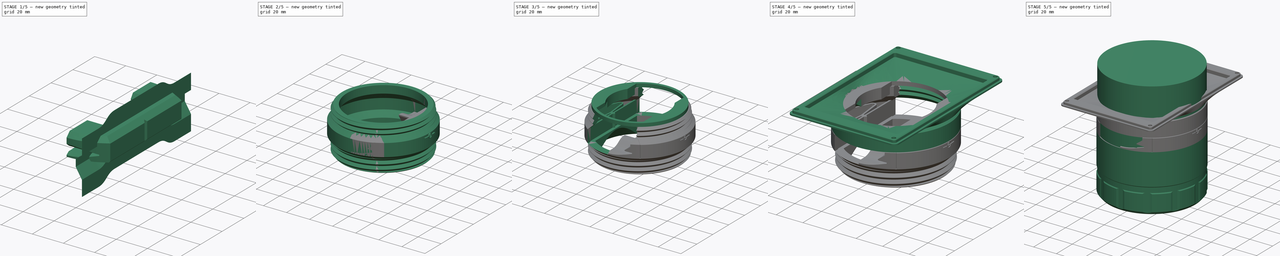
[diagram: build sequence overview — one tinted view per stage of 5, left to right]
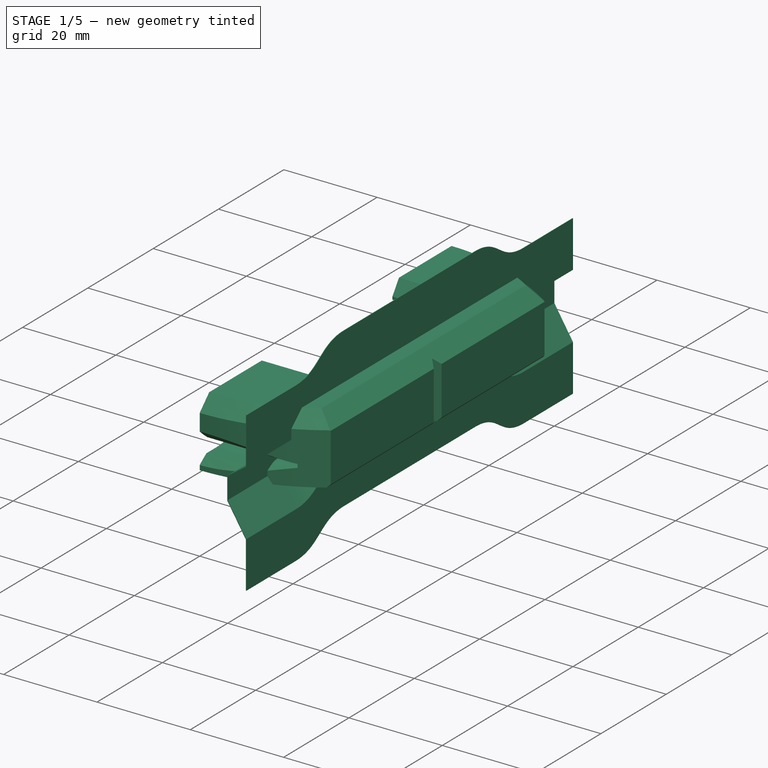
[diagram: stage 1 of 5 — iso view after this stage's code; geometry added in this stage tinted green]
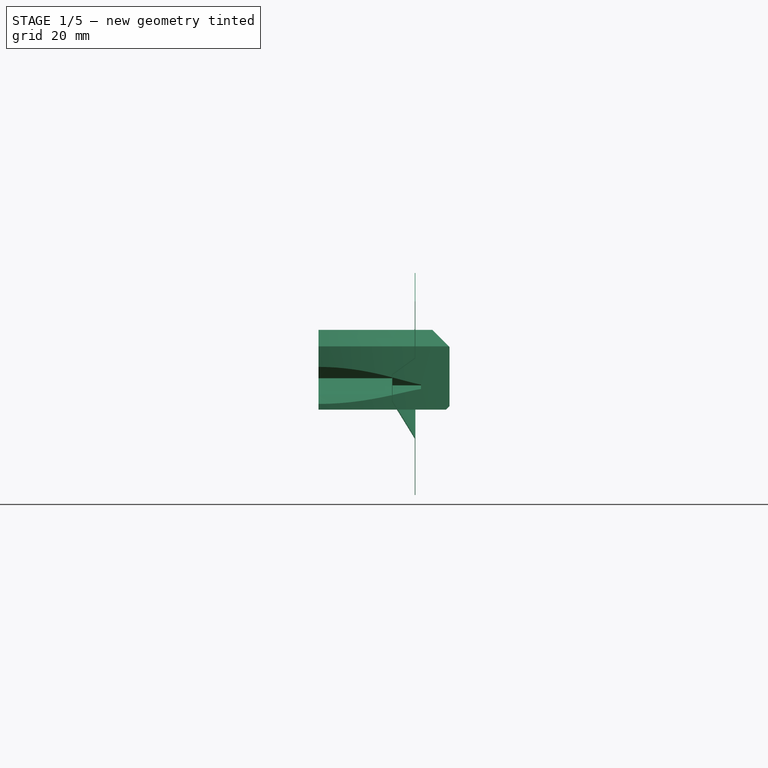
[diagram: stage 1 of 5 — front view after this stage's code; geometry added in this stage tinted green]
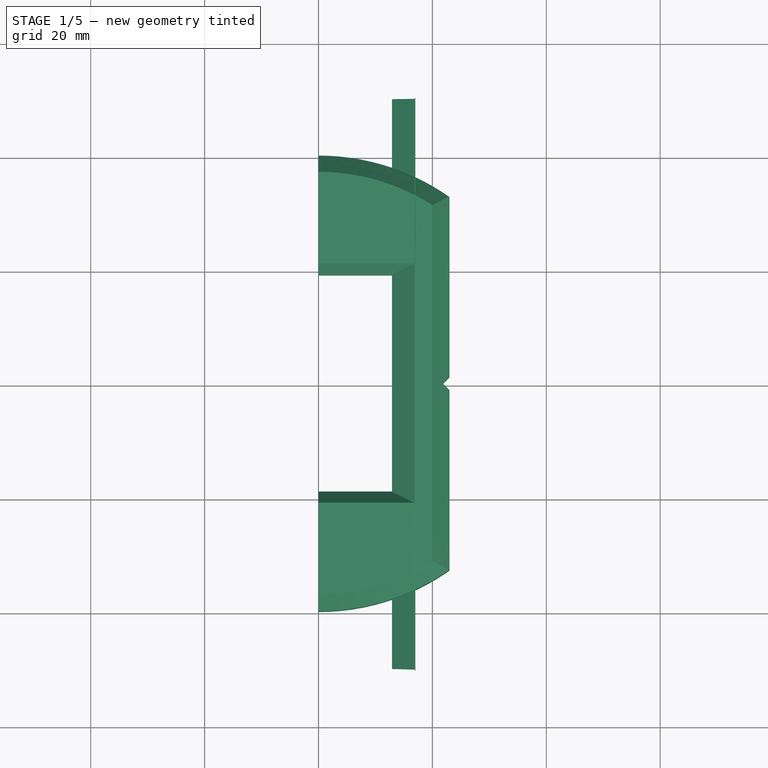
[diagram: stage 1 of 5 — top view after this stage's code; geometry added in this stage tinted green]
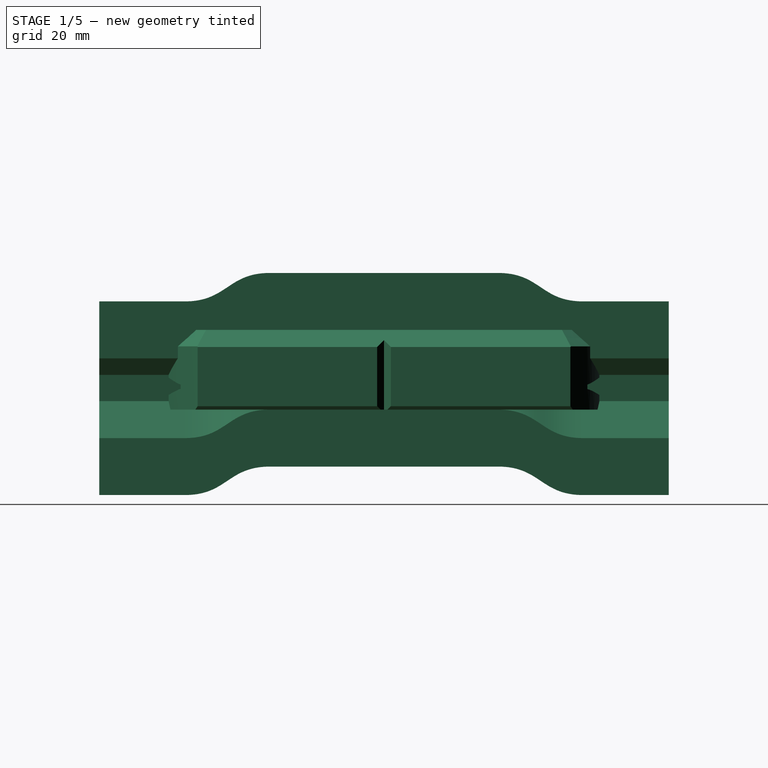
[diagram: stage 1 of 5 — right view after this stage's code; geometry added in this stage tinted green]
FCSTD DOCUMENT  (FreeCAD 1.0R39109 (Git))
Label: lens_stepup_mount
License: All rights reserved
LicenseURL: http://en.wikipedia.org/wiki/All_rights_reserved
objects: Sketcher::SketchObject×48, PartDesign::Pocket×11, PartDesign::Plane×10, PartDesign::Body×8, PartDesign::Revolution×7, PartDesign::Groove×7, Part::FeaturePython×7, PartDesign::AdditiveHelix×6, PartDesign::Mirrored×5, PartDesign::Pad×5, PartDesign::PolarPattern×4, PartDesign::Chamfer×4, App::DocumentObjectGroup×4, Spreadsheet::Sheet×3, Part::Offset2D×2, PartDesign::ShapeBinder×2, PartDesign::SubtractiveLoft×2, Part::Cylinder×1, PartDesign::MultiTransform×1, PartDesign::SubtractivePipe×1, +6 more types
note: 285 computed .brp shape members not serialized (recipe doc carries the construction recipe); baked Part::Feature solids carry a one-line shape summary decoded from their .brp

FEATURE [Sketcher::SketchObject] Sketch041
  ArcFitTolerance = 0
  AttachmentSupport = -> [DatumPlane005]
  FullyConstrained = true
  MakeInternals = false
  MapMode = 5
  Placement = pos=(0,0,48.4) rot=(0,0,1;0rad)
  expr: Constraints[1] = <<params>>.thread_major_r
  expr: Constraints[21] = <<params>>.film_holder_w / 2
  expr: Constraints[40] = <<params>>.film_holder_w / 2
  expr: Constraints[41] = <<params>>.film_holder_w / 2 + 1.2
  expr: Constraints[9] = <<params>>.film_holder_w / 2 + 1.2
  sketch-geometry (15):
    g0: Circle [constr] CenterX=0 CenterY=0 CenterZ=0 NormalX=0 NormalY=0 NormalZ=1 AngleXU=0 Radius=38
    g1: LineSegment StartX=23 StartY=30.249 StartZ=0 EndX=24.2 EndY=29.2978 EndZ=0
    g2: LineSegment StartX=24.2 StartY=29.2978 StartZ=0 EndX=24.2 EndY=-29.2978 EndZ=0
    g3: LineSegment StartX=24.2 StartY=-29.2978 StartZ=0 EndX=23 EndY=-30.249 EndZ=0
    g4: LineSegment StartX=23 StartY=30.249 StartZ=0 EndX=23 EndY=-1 EndZ=0
    g5: LineSegment StartX=23 StartY=-30.249 StartZ=0 EndX=23 EndY=1 EndZ=0
    g6: LineSegment StartX=23 StartY=-1 StartZ=0 EndX=24 EndY=0 EndZ=0
    g7: LineSegment StartX=24 StartY=0 StartZ=0 EndX=23 EndY=1 EndZ=0
    g8: LineSegment StartX=-23 StartY=30.249 StartZ=0 EndX=-24.2 EndY=29.2978 EndZ=0
    g9: LineSegment StartX=-24.2 StartY=29.2978 StartZ=0 EndX=-24.2 EndY=-29.2978 EndZ=0
    g10: LineSegment StartX=-24.2 StartY=-29.2978 StartZ=0 EndX=-23 EndY=-30.249 EndZ=0
    g11: LineSegment StartX=-23 StartY=30.249 StartZ=0 EndX=-23 EndY=-1 EndZ=0
    g12: LineSegment StartX=-23 StartY=1 StartZ=0 EndX=-23 EndY=-30.249 EndZ=0
    g13: LineSegment StartX=-23 StartY=-1 StartZ=0 EndX=-24 EndY=1e-16 EndZ=0
    g14: LineSegment StartX=-24 StartY=0 StartZ=0 EndX=-23 EndY=1 EndZ=0
  constraints (42):
    c: Coincident(g0,g-1)
    c: Radius(g0) = 38
    c: Coincident(g1,g2)
    c: Coincident(g2,g3)
    c: Vertical(g2)
    c: PointOnObject(g1,g0)
    c: PointOnObject(g2,g0)
    c: PointOnObject(g1,g0)
    c: PointOnObject(g3,g0)
    c: Distance(g0,g2) = 24.2
    c: Coincident(g4,g1)
    c: Vertical(g4)
    c: Coincident(g5,g3)
    c: Vertical(g5)
    c: Coincident(g6,g4)
    c: Coincident(g7,g6)
    c: Coincident(g7,g5)
    c: Angle(g7,g6) = 1.5708
    c: Symmetric(g4,g5,g-1)
    c: PointOnObject(g6,g-1)
    c: Distance(g6,g4) = 1
    c: Distance(g0,g4) = 23
    c: Coincident(g8,g9)
    c: Coincident(g9,g10)
    c: Vertical(g9)
    c: PointOnObject(g9,g0)
    c: PointOnObject(g8,g0)
    c: PointOnObject(g8,g0)
    c: PointOnObject(g10,g0)
    c: Coincident(g11,g8)
    c: Vertical(g11)
    c: Coincident(g12,g10)
    c: Vertical(g12)
    c: Symmetric(g12,g11,g-1)
    c: Coincident(g13,g11)
    c: PointOnObject(g13,g-1)
    c: Coincident(g14,g13)
    c: Coincident(g14,g12)
    c: Angle(g13,g14) = 1.5708
    c: Distance(g13,g11) = 1
    c: Distance(g0,g11) = 23
    c: Distance(g0,g9) = 24.2
FEATURE [Sketcher::SketchObject] Sketch042
  ArcFitTolerance = 0
  AttachmentSupport = -> [DatumPlane005]
  FullyConstrained = true
  MakeInternals = false
  MapMode = 5
  Placement = pos=(0,0,48.4) rot=(0,0,1;0rad)
  expr: Constraints[20] = <<params>>.thread_major_r
  expr: Constraints[21] = (<<params>>.film_holder_w + 0.4) / 2
  expr: Constraints[57] = (<<params>>.film_holder_w + 0.4) / 2 + 1.2
  expr: Constraints[58] = <<params>>.thread_major_r - 2
  expr: Constraints[59] = (<<params>>.film_holder_w + 0.4) / 2 - 1.4
  sketch-geometry (23):
    g0: LineSegment StartX=23.2 StartY=0 StartZ=0 EndX=26.2406 EndY=0 EndZ=0
    g1: LineSegment StartX=26.2406 StartY=0 StartZ=0 EndX=28.0037 EndY=-16.7741 EndZ=0
    g2: LineSegment StartX=26.8102 StartY=-16.8995 StartZ=0 EndX=25.1978 EndY=-1.55819 EndZ=0
    g3: LineSegment StartX=24.4 StartY=-1.6 StartZ=0 EndX=24.4 EndY=-29.1314 EndZ=0
    g4: LineSegment StartX=24.4 StartY=-29.1314 StartZ=0 EndX=23.2 EndY=-30.0958 EndZ=0
    g5: Circle [constr] CenterX=0 CenterY=0 CenterZ=0 NormalX=0 NormalY=0 NormalZ=1 AngleXU=0 Radius=38
    g6: ArcOfCircle CenterX=24.8 CenterY=-1.6 CenterZ=0 NormalX=0 NormalY=0 NormalZ=1 AngleXU=0 Radius=0.4 StartAngle=0.10472 EndAngle=3.14159
    g7: GeomPoint [constr] X=24.4 Y=6.03245 Z=0
    g8: LineSegment StartX=23.2 StartY=-30.0958 StartZ=0 EndX=23.2 EndY=-8.6 EndZ=0
    g9: LineSegment [constr] StartX=23.2 StartY=-8.6 StartZ=0 EndX=24.6 EndY=-10 EndZ=0
    g10: LineSegment [constr] StartX=24.6 StartY=-10 StartZ=0 EndX=23.2 EndY=-11.4 EndZ=0
    g11: LineSegment StartX=23.2 StartY=-11.4 StartZ=0 EndX=23.2 EndY=-1.4 EndZ=0
    g12: LineSegment StartX=30.2915 StartY=-17.1408 StartZ=0 EndX=38 EndY=0 EndZ=0
    g13: LineSegment StartX=31.3859 StartY=-17.633 StartZ=0 EndX=37.8623 EndY=-3.23194 EndZ=0
    g14: LineSegment StartX=38 StartY=0 StartZ=0 EndX=37.8623 EndY=-3.23194 EndZ=0
    g15: ArcOfCircle CenterX=29.1971 CenterY=-16.6486 CenterZ=0 NormalX=0 NormalY=0 NormalZ=1 AngleXU=0 Radius=1.2 StartAngle=3.24631 EndAngle=5.86057
    g16: GeomPoint [constr] X=28.4683 Y=-21.1949 Z=0
    g17: ArcOfCircle CenterX=29.1971 CenterY=-16.6486 CenterZ=0 NormalX=0 NormalY=0 NormalZ=1 AngleXU=0 Radius=2.4 StartAngle=3.24631 EndAngle=5.86057
    g18: GeomPoint [constr] X=27.7395 Y=-25.7412 Z=0
    g19: LineSegment StartX=23.2 StartY=-11.4 StartZ=0 EndX=23.2 EndY=-8.6 EndZ=0
    g20: LineSegment [constr] StartX=23.2 StartY=0 StartZ=0 EndX=23.2 EndY=-1.4 EndZ=0
    g21: LineSegment StartX=23.2 StartY=-1.4 StartZ=0 EndX=21.8 EndY=0 EndZ=0
    g22: LineSegment StartX=21.8 StartY=0 StartZ=0 EndX=23.2 EndY=0 EndZ=0
  constraints (60):
    c: Vertical(g3)
    c: Coincident(g4,g3)
    c: Coincident(g5,g-1)
    c: PointOnObject(g7,g2)
    c: PointOnObject(g7,g3)
    c: Tangent(g2,g6) = -1.5708
    c: Tangent(g3,g6) = -1.5708
    c: Radius(g6) = 0.4
    c: Parallel(g2,g1)
    c: PointOnObject(g4,g5)
    c: PointOnObject(g3,g5)
    c: Coincident(g8,g4)
    c: Vertical(g8)
    c: Coincident(g9,g8)
    c: Coincident(g10,g9)
    c: Coincident(g11,g10)
    c: Vertical(g11)
    c: Distance(g9,g11) = 1.4
    c: Angle(g9,g10) = 1.5708
    c: Equal(g10,g9)
    c: Radius(g5) = 38
    c: DistanceX(g-2,g0) = 23.2
    c: DistanceY(g-1,g9) = -10
    c: Coincident(g14,g12)
    c: Coincident(g14,g13)
    c: PointOnObject(g12,g5)
    c: PointOnObject(g13,g5)
    c: Parallel(g13,g12)
    c: PointOnObject(g16,g1)
    c: PointOnObject(g16,g12)
    c: Tangent(g1,g15) = -1.5708
    c: Tangent(g12,g15) = -1.5708
    c: PointOnObject(g18,g2)
    c: PointOnObject(g18,g13)
    c: Tangent(g2,g17) = 1.5708
    c: Tangent(g13,g17) = -1.5708
    c: Coincident(g17,g15)
    c: Radius(g15) = 1.2
    c: DistanceY(g-1,g12) = 0
    c: Coincident(g1,g0)
    c: Horizontal(g0)
    c: Angle(g3,g2) = 0.10472
    c: Distance(g2,g1) = 1.2
    c: DistanceY(g-1,g6) = -1.6
    c: Coincident(g19,g11)
    c: Coincident(g19,g8)
    c: Vertical(g19)
    c: Coincident(g20,g0)
    c: Coincident(g20,g11)
    c: Vertical(g20)
    c: PointOnObject(g0,g-1)
    c: Coincident(g21,g11)
    c: PointOnObject(g21,g-1)
    c: Coincident(g22,g21)
    c: Coincident(g22,g0)
    c: Angle(g21,g22) = 0.785398
    c: Distance(g15,g-1) = 16.6486
    c: Distance(g3,g-2) = 24.4
    c: Distance(g5,g13) = 36
    c: DistanceX(g-1,g21) = 21.8
FEATURE [PartDesign::Mirrored] Mirrored001
  MirrorPlane = -> Sketch042 [V_Axis]
  Placement = pos=(0,0,0) rot=(1,0,0;1.5708rad)
  Suppressed = false
  TransformMode = 0
FEATURE [PartDesign::Mirrored] Mirrored002
  MirrorPlane = -> Sketch042 [H_Axis]
  Placement = pos=(0,0,0) rot=(1,0,0;1.5708rad)
  Suppressed = false
  TransformMode = 0
FEATURE [Sketcher::SketchObject] Sketch043
  ArcFitTolerance = 0
  AttachmentSupport = -> [YZ_Plane]
  FullyConstrained = true
  MakeInternals = false
  MapMode = 5
  Placement = pos=(0,0,0) rot=(0.57735,0.57735,0.57735;2.0944rad)
  expr: Constraints[19] = <<params>>.film_holder_scurve_h
  expr: Constraints[46] = <<film_holder_configuration>>.window_w + 2
  expr: Constraints[48] = <<params>>.effective_wd
  expr: Constraints[49] = <<params>>.film_holder_l / 2 + 10
  sketch-geometry (21):
    g0: LineSegment StartX=-50 StartY=52 StartZ=0 EndX=-35 EndY=52 EndZ=0
    g1: LineSegment StartX=-20 StartY=57 StartZ=0 EndX=20 EndY=57 EndZ=0
    g2: LineSegment StartX=35 StartY=52 StartZ=0 EndX=50 EndY=52 EndZ=0
    g3-g6: Circle [constr] x4 (B-spline internal-alignment scaffolding for g7; pole/knot coordinates omitted)
    g7: BSplineCurve PolesCount=4 KnotsCount=2 Degree=3 IsPeriodic=0
    g8: GeomPoint [constr] X=-35 Y=52 Z=0
    g9: GeomPoint [constr] X=-20 Y=57 Z=0
    g10-g13: Circle [constr] x4 (B-spline internal-alignment scaffolding for g14; pole/knot coordinates omitted)
    g14: BSplineCurve PolesCount=4 KnotsCount=2 Degree=3 IsPeriodic=0
    g15: GeomPoint [constr] X=20 Y=57 Z=0
    g16: GeomPoint [constr] X=35 Y=52 Z=0
    g17: LineSegment [constr] StartX=-27.5 StartY=57 StartZ=0 EndX=-20 EndY=57 EndZ=0
    g18: LineSegment [constr] StartX=-35 StartY=52 StartZ=0 EndX=-27.5 EndY=52 EndZ=0
    g19: LineSegment [constr] StartX=20 StartY=57 StartZ=0 EndX=27.5 EndY=57 EndZ=0
    g20: LineSegment [constr] StartX=27.5 StartY=52 StartZ=0 EndX=35 EndY=52 EndZ=0
  constraints (44):
    c: Horizontal(g0)
    c: Horizontal(g2)
    c: Symmetric(g0,g2,g-2)
    c: Equal(g2,g0)
    c: Symmetric(g1,g1,g-2)
    c: Weight(g3) = 1
    c: Coincident(g7,g0)
    c: Equal(g3,g4)
    c: Equal(g3,g5)
    c: Equal(g3,g6)
    c: Coincident(g7,g1)
    c: InternalAlignment(g3-g6 -> g7) x4
    c: InternalAlignment(g8,g7)
    c: InternalAlignment(g9,g7)
    c: PointOnObject(g4,g0)
    c: Vertical(g5,g4)
    c: Distance(g1,g0) = 5
    c: PointOnObject(g5,g1)
    c: Weight(g10) = 1
    c: Coincident(g14,g1)
    c: Equal(g10,g11)
    c: Equal(g10,g12)
    c: Equal(g10,g13)
    c: Coincident(g14,g2)
    c: InternalAlignment(g10-g13 -> g14) x4
    c: InternalAlignment(g15,g14)
    c: InternalAlignment(g16,g14)
    c: PointOnObject(g12,g2)
    c: PointOnObject(g11,g1)
    c: Vertical(g11,g12)
    c: Coincident(g17,g5)
    c: Coincident(g17,g1)
    c: Coincident(g18,g0)
    c: Coincident(g18,g4)
    c: Coincident(g19,g1)
    c: Coincident(g19,g11)
    c: Coincident(g20,g12)
    c: Coincident(g20,g2)
    c: Equal(g19,g20)
    c: Equal(g17,g18)
    c: Distance(g1) = 40
    c: DistanceX(g0,g1) = 15
    c: Distance(g-1,g1) = 57
    c: DistanceX(g0,g-1) = 50
FEATURE [Part::Offset2D] Offset2D  label="Film Clearance Perforation"
  Fill = false
  Intersection = false
  Join = 0
  Mode = 1
  SelfIntersection = false
  Source = -> Sketch043
  Value = 0.25
  expr: Value = <<film_holder_configuration>>.film_clearance_perforation_t / 2
FEATURE [Part::Offset2D] Offset2D001  label="Film Clearance Inner"
  Fill = false
  Intersection = false
  Join = 0
  Mode = 1
  SelfIntersection = false
  Source = -> Sketch043
  Value = 1.5
  expr: Value = <<film_holder_configuration>>.film_clearance_inner_t / 2
FEATURE [PartDesign::Plane] DatumPlane006  label="base-plane"
  AttachmentOffset = pos=(0,0,48) rot=(0,0,1;0rad)
  AttachmentSupport = -> [XY_Plane008]
  Length = 60
  MapMode = 5
  Placement = pos=(0,0,48) rot=(0,0,1;0rad)
  ResizeMode = 0
  Width = 60
  expr: .AttachmentOffset.Base.z = <<params>>.tube_h + <<params>>.stepup_wd_offset
FEATURE [Sketcher::SketchObject] Sketch044
  ArcFitTolerance = 0
  AttachmentSupport = -> [DatumPlane006]
  FullyConstrained = true
  MakeInternals = false
  MapMode = 5
  Placement = pos=(0,0,48) rot=(0,0,1;0rad)
  expr: Constraints[14] = <<film_holder_configuration>>.window_w
  expr: Constraints[15] = <<film_holder_configuration>>.window_h / 2
  expr: Constraints[16] = <<params>>.film_holder_w / 2
  expr: Constraints[18] = <<params>>.film_holder_l
  sketch-geometry (15):
    g0: LineSegment StartX=0 StartY=19 StartZ=0 EndX=15 EndY=19 EndZ=0
    g1: LineSegment StartX=15 StartY=19 StartZ=0 EndX=15 EndY=-19 EndZ=0
    g2: LineSegment StartX=15 StartY=-19 StartZ=0 EndX=0 EndY=-19 EndZ=0
    g3: LineSegment StartX=0 StartY=40 StartZ=0 EndX=0 EndY=19 EndZ=0
    g4: LineSegment [constr] StartX=0 StartY=40 StartZ=0 EndX=23 EndY=40 EndZ=0
    g5: LineSegment [constr] StartX=23 StartY=-40 StartZ=0 EndX=0 EndY=-40 EndZ=0
    g6: LineSegment StartX=0 StartY=-40 StartZ=0 EndX=0 EndY=-19 EndZ=0
    g7: LineSegment StartX=21.8 StartY=0 StartZ=0 EndX=23 EndY=1.2 EndZ=0
    g8: LineSegment StartX=21.8 StartY=0 StartZ=0 EndX=23 EndY=-1.2 EndZ=0
    g9: LineSegment StartX=23 StartY=1.2 StartZ=0 EndX=23 EndY=32.7261 EndZ=0
    g10: LineSegment [constr] StartX=23 StartY=32.7261 StartZ=0 EndX=23 EndY=40 EndZ=0
    g11: ArcOfCircle CenterX=0 CenterY=0 CenterZ=0 NormalX=0 NormalY=0 NormalZ=1 AngleXU=0 Radius=40 StartAngle=0.958192 EndAngle=1.5708
    g12: LineSegment StartX=23 StartY=-1.2 StartZ=0 EndX=23 EndY=-32.7261 EndZ=0
    g13: LineSegment [constr] StartX=23 StartY=-32.7261 StartZ=0 EndX=23 EndY=-40 EndZ=0
    g14: ArcOfCircle CenterX=0 CenterY=0 CenterZ=0 NormalX=0 NormalY=0 NormalZ=1 AngleXU=0 Radius=40 StartAngle=4.71239 EndAngle=5.32499
  constraints (40):
    c: Coincident(g0,g1)
    c: Coincident(g1,g2)
    c: Coincident(g3,g0)
    c: Horizontal(g0)
    c: Horizontal(g2)
    c: Vertical(g1)
    c: Vertical(g3)
    c: Coincident(g5,g6)
    c: Horizontal(g4)
    c: Horizontal(g5)
    c: Vertical(g6)
    c: Coincident(g2,g6)
    c: Coincident(g4,g3)
    c: Symmetric(g0,g2,g-1)
    c: Distance(g1) = 38
    c: Distance(g0) = 15
    c: Distance(g4) = 23
    c: Symmetric(g5,g3,g-1)
    c: Distance(g4,g5) = 80
    c: PointOnObject(g7,g-1)
    c: Coincident(g8,g7)
    c: Coincident(g9,g7)
    c: Coincident(g10,g4)
    c: Coincident(g12,g8)
    c: Coincident(g13,g5)
    c: Symmetric(g7,g8,g-1)
    c: Angle(g8,g7) = 1.5708
    c: Coincident(g9,g10)
    c: Vertical(g9)
    c: Vertical(g10)
    c: Distance(g7,g9) = 1.2
    c: Coincident(g11,g-1)
    c: Coincident(g11,g3)
    c: Coincident(g11,g9)
    c: Coincident(g12,g13)
    c: Vertical(g12)
    c: Vertical(g13)
    c: Coincident(g14,g11)
    c: Coincident(g14,g5)
    c: Coincident(g14,g12)
FEATURE [PartDesign::Pad] Pad003
  Direction = (0,0,1)
  Length = 14
  Length2 = 10
  Placement = pos=(0,0,48) rot=(0,0,1;0rad)
  Profile = -> Sketch044
  ReferenceAxis = -> Sketch044 [N_Axis]
  Suppressed = false
  Type = 0
  expr: Length = Spreadsheet.film_holder_h
FEATURE [PartDesign::Plane] DatumPlane007  label="pin-plane"
  AttachmentOffset = pos=(0,0,10) rot=(0,0,1;0rad)
  AttachmentSupport = -> [DatumPlane006]
  Length = 60
  MapMode = 5
  Placement = pos=(0,0,58) rot=(0,0,1;0rad)
  ResizeMode = 0
  Width = 60
FEATURE [Sketcher::SketchObject] Sketch045
  ArcFitTolerance = 0
  AttachmentSupport = -> [DatumPlane007]
  FullyConstrained = true
  MakeInternals = false
  MapMode = 5
  Placement = pos=(0,0,58) rot=(0,0,1;0rad)
  expr: Constraints[13] = <<params>>.film_holder_pin_x
  sketch-geometry (5):
    g0: LineSegment StartX=0 StartY=35 StartZ=0 EndX=-3 EndY=35 EndZ=0
    g1: LineSegment StartX=-3 StartY=34 StartZ=0 EndX=0 EndY=32.5 EndZ=0
    g2: LineSegment StartX=0 StartY=35 StartZ=0 EndX=0 EndY=32.5 EndZ=0
    g3: LineSegment StartX=-3 StartY=35 StartZ=0 EndX=-3 EndY=34 EndZ=0
    g4: GeomPoint [constr] X=-5 Y=35 Z=0
  constraints (14):
    c: Horizontal(g0)
    c: Coincident(g2,g0)
    c: Coincident(g2,g1)
    c: Vertical(g2)
    c: PointOnObject(g0,g-2)
    c: Coincident(g3,g0)
    c: Coincident(g3,g1)
    c: Vertical(g3)
    c: Distance(g2) = 2.5
    c: PointOnObject(g4,g1)
    c: PointOnObject(g4,g0)
    c: Distance(g4,g3) = 2
    c: Distance(g4,g2) = 5
    c: DistanceY(g-1,g0) = 35
FEATURE [Sketcher::SketchObject] Sketch046
  ArcFitTolerance = 0
  AttachmentSupport = -> [DatumPlane007]
  FullyConstrained = true
  MakeInternals = false
  MapMode = 5
  Placement = pos=(0,0,58) rot=(0,0,1;0rad)
  expr: Constraints[8] = -<<params>>.film_holder_pin_x
  sketch-geometry (3):
    g0: LineSegment StartX=0 StartY=-35 StartZ=0 EndX=5.3 EndY=-35 EndZ=0
    g1: LineSegment StartX=0 StartY=-35 StartZ=0 EndX=0 EndY=-32.35 EndZ=0
    g2: LineSegment StartX=0 StartY=-32.35 StartZ=0 EndX=5.3 EndY=-35 EndZ=0
  constraints (9):
    c: Horizontal(g0)
    c: Coincident(g1,g0)
    c: Vertical(g1)
    c: Coincident(g2,g1)
    c: Coincident(g2,g0)
    c: Distance(g1) = 2.65
    c: PointOnObject(g0,g-2)
    c: Distance(g0) = 5.3
    c: DistanceY(g-1,g0) = -35
FEATURE [PartDesign::ShapeBinder] ShapeBinder  label="Film Clearance Inner Binder Left"
  Support = -> [Offset2D001]
  TraceSupport = false
FEATURE [PartDesign::ShapeBinder] ShapeBinder001  label="Film Clearance Perforation Binder Left"
  Support = -> [Offset2D]
  TraceSupport = false
FEATURE [PartDesign::Pocket] Pocket007
  BaseFeature = -> Pad003
  Direction = (-1,0,0)
  Length = 18
  Length2 = 5
  Placement = pos=(0,0,48) rot=(0,0,1;0rad)
  Profile = -> ShapeBinder001
  Reversed = true
  Suppressed = false
  Type = 0
  expr: Length = <<film_holder_configuration>>.film_clearance_perforation_l / 2
FEATURE [PartDesign::Pocket] Pocket008
  BaseFeature = -> Pocket007
  Direction = (-1,0,0)
  Length = 13
  Length2 = 5
  Placement = pos=(0,0,48) rot=(0,0,1;0rad)
  Profile = -> ShapeBinder
  Reversed = true
  Suppressed = false
  Type = 0
  expr: Length = <<film_holder_configuration>>.film_clearance_inner_l / 2
FEATURE [Sketcher::SketchObject] Sketch047
  ArcFitTolerance = 0
  AttachmentSupport = -> [XZ_Plane008]
  FullyConstrained = true
  MakeInternals = false
  MapMode = 5
  Placement = pos=(0,0,0) rot=(1,0,0;1.5708rad)
  expr: Constraints[11] = <<params>>.film_holder_h
  expr: Constraints[13] = <<params>>.tube_h + <<params>>.stepup_wd_offset
  expr: Constraints[14] = <<params>>.film_holder_w / 2 - <<params>>.film_holder_groove_d
  expr: Constraints[16] = <<params>>.film_holder_w / 2 - 0.6
  expr: Constraints[5] = <<params>>.film_holder_w / 2
  sketch-geometry (6):
    g0: LineSegment StartX=20 StartY=62 StartZ=0 EndX=23 EndY=59 EndZ=0
    g1: LineSegment StartX=20 StartY=62 StartZ=0 EndX=23 EndY=62 EndZ=0
    g2: LineSegment StartX=23 StartY=59 StartZ=0 EndX=23 EndY=62 EndZ=0
    g3: LineSegment StartX=22.4 StartY=48 StartZ=0 EndX=23 EndY=48 EndZ=0
    g4: LineSegment StartX=23 StartY=48 StartZ=0 EndX=23 EndY=48.6 EndZ=0
    g5: LineSegment StartX=23 StartY=48.6 StartZ=0 EndX=22.4 EndY=48 EndZ=0
  constraints (18):
    c: Coincident(g1,g0)
    c: Horizontal(g1)
    c: Coincident(g2,g0)
    c: Coincident(g2,g1)
    c: Vertical(g2)
    c: DistanceX(g-2,g1) = 23
    c: Horizontal(g3)
    c: Coincident(g4,g3)
    c: Vertical(g4)
    c: Coincident(g5,g4)
    c: Coincident(g5,g3)
    c: Distance(g3,g1) = 14
    c: Vertical(g4,g0)
    c: DistanceY(g-1,g3) = 48
    c: DistanceX(g-1,g0) = 20
    c: Angle(g5,g4) = 0.785398
    c: DistanceX(g-1,g3) = 22.4
    c: Angle(g0,g1) = 0.785398
FEATURE [PartDesign::Pocket] Pocket009
  BaseFeature = -> Pocket008
  Direction = (0,1,-2e-16)
  Length = 5
  Length2 = 5
  Midplane = true
  Placement = pos=(0,0,48) rot=(0,0,1;0rad)
  Profile = -> Sketch047
  ReferenceAxis = -> Sketch047 [N_Axis]
  Suppressed = false
  Type = 1
FEATURE [Sketcher::SketchObject] Sketch048
  ArcFitTolerance = 0
  AttachmentSupport = -> [YZ_Plane008]
  FullyConstrained = true
  MakeInternals = false
  MapMode = 5
  Placement = pos=(0,0,0) rot=(0.57735,0.57735,0.57735;2.0944rad)
  expr: Constraints[1] = <<params>>.effective_wd - <<params>>.film_holder_scurve_h
  expr: Constraints[4] = <<params>>.film_holder_l / 2
  expr: Constraints[7] = <<film_holder_configuration>>.film_clearance_perforation_t
  sketch-geometry (15):
    g0: LineSegment StartX=40 StartY=49 StartZ=0 EndX=40 EndY=55.5 EndZ=0
    g1: LineSegment [constr] StartX=35 StartY=52 StartZ=0 EndX=40 EndY=52 EndZ=0
    g2: LineSegment StartX=35 StartY=51.75 StartZ=0 EndX=35 EndY=52.25 EndZ=0
    g3: Circle [constr] CenterX=35 CenterY=52.25 CenterZ=0 NormalX=0 NormalY=0 NormalZ=1 AngleXU=0 Radius=1
    g4: Circle [constr] CenterX=36.5 CenterY=52.25 CenterZ=0 NormalX=0 NormalY=0 NormalZ=1 AngleXU=0 Radius=1
    g5: Circle [constr] CenterX=40 CenterY=55.5 CenterZ=0 NormalX=0 NormalY=0 NormalZ=1 AngleXU=0 Radius=1
    g6: BSplineCurve PolesCount=3 KnotsCount=2 Degree=2 IsPeriodic=0
    g7: GeomPoint [constr] X=35 Y=52.25 Z=0
    g8: GeomPoint [constr] X=40 Y=55.5 Z=0
    g9: Circle [constr] CenterX=35 CenterY=51.75 CenterZ=0 NormalX=0 NormalY=0 NormalZ=1 AngleXU=0 Radius=1
    g10: Circle [constr] CenterX=36.5 CenterY=51.75 CenterZ=0 NormalX=0 NormalY=0 NormalZ=1 AngleXU=0 Radius=1
    g11: Circle [constr] CenterX=40 CenterY=49 CenterZ=0 NormalX=0 NormalY=0 NormalZ=1 AngleXU=0 Radius=1
    g12: BSplineCurve PolesCount=3 KnotsCount=2 Degree=2 IsPeriodic=0
    g13: GeomPoint [constr] X=35 Y=51.75 Z=0
    g14: GeomPoint [constr] X=40 Y=49 Z=0
  constraints (35):
    c: Vertical(g0)
    c: DistanceY(g-1,g1) = 52
    c: PointOnObject(g1,g0)
    c: Horizontal(g1)
    c: DistanceX(g-2,g1) = 40
    c: Vertical(g2)
    c: Symmetric(g2,g2,g1)
    c: Distance(g2) = 0.5
    c: Distance(g0,g1) = 3
    c: Distance(g0,g1) = 3.5
    c: Weight(g3) = 1
    c: Coincident(g6,g2)
    c: Equal(g3,g4)
    c: Equal(g3,g5)
    c: Coincident(g6,g0)
    c: InternalAlignment(g3,g6)
    c: InternalAlignment(g4,g6)
    c: InternalAlignment(g5,g6)
    c: InternalAlignment(g7,g6)
    c: InternalAlignment(g8,g6)
    c: Weight(g9) = 1
    c: Coincident(g12,g2)
    c: Equal(g9,g10)
    c: Equal(g9,g11)
    c: Coincident(g12,g0)
    c: InternalAlignment(g9,g12)
    c: InternalAlignment(g10,g12)
    c: InternalAlignment(g11,g12)
    c: InternalAlignment(g13,g12)
    c: InternalAlignment(g14,g12)
    c: Horizontal(g4,g2)
    c: Horizontal(g2,g10)
    c: Distance(g1) = 5
    c: Vertical(g10,g4)
    c: Distance(g4,g0) = 3.5
FEATURE [PartDesign::Pocket] Pocket010
  BaseFeature = -> Pocket009
  Direction = (-1,0,0)
  Length = 18
  Length2 = 5
  Placement = pos=(0,0,48) rot=(0,0,1;0rad)
  Profile = -> Sketch048
  ReferenceAxis = -> Sketch048 [N_Axis]
  Reversed = true
  Suppressed = false
  Type = 0
  expr: Length = <<film_holder_configuration>>.film_clearance_perforation_l / 2
FEATURE [Sketcher::SketchObject] Sketch049
  ArcFitTolerance = 0
  AttachmentSupport = -> [YZ_Plane008]
  FullyConstrained = true
  MakeInternals = false
  MapMode = 5
  Placement = pos=(0,0,0) rot=(0.57735,0.57735,0.57735;2.0944rad)
  expr: Constraints[10] = <<params>>.tube_h + <<params>>.stepup_wd_offset + <<params>>.film_holder_h
  expr: Constraints[11] = <<params>>.thread_major_r + <<params>>.tube_t + 0.1
  expr: Constraints[19] = <<params>>.film_holder_l / 2
  expr: Constraints[9] = <<params>>.film_holder_groove_d
  sketch-geometry (9):
    g0: LineSegment StartX=37.1 StartY=62 StartZ=0 EndX=40.629 EndY=62 EndZ=0
    g1: LineSegment StartX=37.1 StartY=62 StartZ=0 EndX=40.1 EndY=59 EndZ=0
    g2: LineSegment StartX=40.629 StartY=62 StartZ=0 EndX=40.1 EndY=59 EndZ=0
    g3: LineSegment [constr] StartX=40.1 StartY=59 StartZ=0 EndX=40.1 EndY=62 EndZ=0
    g4: LineSegment [constr] StartX=37 StartY=62 StartZ=0 EndX=40 EndY=62 EndZ=0
    g5: LineSegment [constr] StartX=37 StartY=62 StartZ=0 EndX=40 EndY=59 EndZ=0
    g6: LineSegment [constr] StartX=40 StartY=62 StartZ=0 EndX=40 EndY=59 EndZ=0
    g7: LineSegment [constr] StartX=40 StartY=62 StartZ=0 EndX=40.529 EndY=62 EndZ=0
    g8: LineSegment [constr] StartX=40.529 StartY=62 StartZ=0 EndX=40 EndY=59 EndZ=0
  constraints (26):
    c: Horizontal(g0)
    c: Coincident(g1,g0)
    c: Coincident(g2,g0)
    c: Coincident(g2,g1)
    c: Coincident(g3,g1)
    c: PointOnObject(g3,g0)
    c: Vertical(g3)
    c: Angle(g0,g2) = 1.39626
    c: Angle(g1,g0) = 0.785398
    c: Distance(g1,g0) = 3
    c: DistanceY(g-1,g0) = 62
    c: DistanceX(g-2,g1) = 40.1
    c: Horizontal(g4)
    c: Coincident(g5,g4)
    c: Coincident(g6,g4)
    c: Coincident(g6,g5)
    c: Vertical(g6)
    c: Angle(g5,g4) = 0.785398
    c: Horizontal(g0,g4)
    c: DistanceX(g-2,g4) = 40
    c: Horizontal(g1,g5)
    c: Coincident(g4,g7)
    c: Horizontal(g7)
    c: Coincident(g7,g8)
    c: Coincident(g8,g5)
    c: Angle(g7,g8) = 1.39626
FEATURE [PartDesign::Groove] Groove011
  Angle = 360
  Angle2 = 60
  Axis = (1e-16,1e-16,1)
  Base = (0,0,0)
  BaseFeature = -> Pocket010
  Placement = pos=(0,0,48) rot=(0,0,1;0rad)
  Profile = -> Sketch049
  ReferenceAxis = -> Z_Axis008
  Suppressed = false
  Type = 0
FEATURE [Sketcher::SketchObject] Sketch050
  ArcFitTolerance = 0
  AttachmentSupport = -> [YZ_Plane008]
  FullyConstrained = true
  MakeInternals = false
  MapMode = 5
  Placement = pos=(0,0,0) rot=(0.57735,0.57735,0.57735;2.0944rad)
  expr: Constraints[32] = <<film_holder_configuration>>.window_w / 2 + 0.5
  expr: Constraints[33] = <<film_holder_configuration>>.window_w / 2 + 0.5
  expr: Constraints[3] = <<params>>.effective_wd
  expr: Constraints[4] = <<film_holder_configuration>>.window_w / 2
  expr: Constraints[7] = <<film_holder_configuration>>.film_clearance_perforation_t
  sketch-geometry (15):
    g0: LineSegment StartX=19 StartY=58 StartZ=0 EndX=19 EndY=56 EndZ=0
    g1: LineSegment [constr] StartX=20.5 StartY=57 StartZ=0 EndX=19 EndY=57 EndZ=0
    g2: LineSegment StartX=20.5 StartY=57.25 StartZ=0 EndX=20.5 EndY=56.75 EndZ=0
    g3: Circle [constr] CenterX=20.5 CenterY=56.75 CenterZ=0 NormalX=0 NormalY=0 NormalZ=1 AngleXU=0 Radius=1
    g4: Circle [constr] CenterX=19.5 CenterY=56.75 CenterZ=0 NormalX=0 NormalY=0 NormalZ=1 AngleXU=0 Radius=1
    g5: Circle [constr] CenterX=19 CenterY=56 CenterZ=0 NormalX=0 NormalY=0 NormalZ=1 AngleXU=0 Radius=1
    g6: BSplineCurve PolesCount=3 KnotsCount=2 Degree=2 IsPeriodic=0
    g7: GeomPoint [constr] X=20.5 Y=56.75 Z=0
    g8: GeomPoint [constr] X=19 Y=56 Z=0
    g9: Circle [constr] CenterX=20.5 CenterY=57.25 CenterZ=0 NormalX=0 NormalY=0 NormalZ=1 AngleXU=0 Radius=1
    g10: Circle [constr] CenterX=19.5 CenterY=57.25 CenterZ=0 NormalX=0 NormalY=0 NormalZ=1 AngleXU=0 Radius=1
    g11: Circle [constr] CenterX=19 CenterY=58 CenterZ=0 NormalX=0 NormalY=0 NormalZ=1 AngleXU=0 Radius=1
    g12: BSplineCurve PolesCount=3 KnotsCount=2 Degree=2 IsPeriodic=0
    g13: GeomPoint [constr] X=20.5 Y=57.25 Z=0
    g14: GeomPoint [constr] X=19 Y=58 Z=0
  constraints (34):
    c: Vertical(g0)
    c: Horizontal(g1)
    c: Symmetric(g0,g0,g1)
    c: DistanceY(g-1,g1) = 57
    c: DistanceX(g-2,g0) = 19
    c: Symmetric(g2,g2,g1)
    c: Vertical(g2)
    c: Distance(g2) = 0.5
    c: Weight(g3) = 1
    c: Coincident(g6,g2)
    c: Equal(g3,g4)
    c: Equal(g3,g5)
    c: Coincident(g6,g0)
    c: InternalAlignment(g3,g6)
    c: InternalAlignment(g4,g6)
    c: InternalAlignment(g5,g6)
    c: InternalAlignment(g7,g6)
    c: InternalAlignment(g8,g6)
    c: Horizontal(g4,g2)
    c: Distance(g0) = 2
    c: Weight(g9) = 1
    c: Coincident(g12,g2)
    c: Equal(g9,g10)
    c: Equal(g9,g11)
    c: Coincident(g12,g0)
    c: InternalAlignment(g9,g12)
    c: InternalAlignment(g10,g12)
    c: InternalAlignment(g11,g12)
    c: InternalAlignment(g13,g12)
    c: InternalAlignment(g14,g12)
    c: Horizontal(g10,g2)
    c: Vertical(g10,g4)
    c: DistanceX(g-2,g4) = 19.5
    c: Distance(g9,g-2) = 19.5
FEATURE [PartDesign::Pocket] Pocket011
  BaseFeature = -> Groove011
  Direction = (-1,0,0)
  Length = 15
  Length2 = 5
  Placement = pos=(0,0,48) rot=(0,0,1;0rad)
  Profile = -> Sketch050
  ReferenceAxis = -> Sketch050 [N_Axis]
  Reversed = true
  Suppressed = false
  Type = 0
  expr: Length = <<film_holder_configuration>>.window_h / 2
FEATURE [PartDesign::Mirrored] Mirrored003
  BaseFeature = -> Pocket011
  MirrorPlane = -> Sketch050 [V_Axis]
  Originals = -> [Pocket011]
  Placement = pos=(0,0,48) rot=(0,0,1;0rad)
  Suppressed = false
  TransformMode = 0
FEATURE [PartDesign::Mirrored] Mirrored004
  BaseFeature = -> Mirrored003
  MirrorPlane = -> Sketch048 [V_Axis]
  Originals = -> [Pocket010]
  Placement = pos=(0,0,48) rot=(0,0,1;0rad)
  Suppressed = false
  TransformMode = 0
FEATURE [Spreadsheet::Sheet] Spreadsheet001  label="film_holder_configuration"
  cells = A1='Type; B1='Window Width; C1='Window Height; D1='Film Clearance Perforation Thickness; E1='Film Clearance Inner Thickness; F1='Film Clearance Perforation Length; G1='Film Clearance Inner Length; A2==hiddenref(Body008.Configuration.String); B2(window_w)==.B3; C2(window_h)==.C3; D2(film_clearance_perforation_t)==.D3; E2(film_clearance_inner_t)==.E3; F2(film_clearance_perforation_l)==.F3; G2(film_clearance_inner_l)==.G3; A3='35mm with bracket; B3=38; C3=30; D3=0.5; E3=3; F3=36; G3=26; A4='35mm Half Frame; B4=19; C4=30; D4=0.5; E4=3; F4=36; G4=26; A5='35mm; B5=38; C5=26; D5=0.5; E5=3; F5=36; G5=26
  expr: .cells.Bind.B2.G2 = tuple(.cells; <<B>> + str(hiddenref(Body008.Configuration) + 3); <<G>> + str(hiddenref(Body008.Configuration) + 3))
FEATURE [PartDesign::Plane] DatumPlane008  label="film-plane"
  AttachmentOffset = pos=(0,0,57) rot=(0,0,1;0rad)
  AttachmentSupport = -> [XY_Plane008]
  Length = 60
  MapMode = 5
  Placement = pos=(0,0,57) rot=(0,0,1;0rad)
  ResizeMode = 0
  Width = 60
  expr: .AttachmentOffset.Base.z = <<params>>.effective_wd
FEATURE [Sketcher::SketchObject] Sketch051
  ArcFitTolerance = 0
  AttachmentOffset = pos=(0,0,2.1) rot=(0,0,1;0rad)
  AttachmentSupport = -> [DatumPlane008]
  FullyConstrained = true
  MakeInternals = false
  MapMode = 5
  Placement = pos=(0,0,59.1) rot=(0,0,1;0rad)
  expr: .AttachmentOffset.Base.z = <<film_holder_configuration>>.film_clearance_inner_t / 2 + 0.6
  expr: Constraints[8] = <<film_holder_configuration>>.window_w
  expr: Constraints[9] = <<film_holder_configuration>>.window_h / 2
  sketch-geometry (4):
    g0: LineSegment StartX=0 StartY=19 StartZ=0 EndX=15 EndY=19 EndZ=0
    g1: LineSegment StartX=15 StartY=19 StartZ=0 EndX=15 EndY=-19 EndZ=0
    g2: LineSegment StartX=15 StartY=-19 StartZ=0 EndX=0 EndY=-19 EndZ=0
    g3: LineSegment StartX=0 StartY=-19 StartZ=0 EndX=0 EndY=19 EndZ=0
  constraints (11):
    c: Coincident(g0,g1)
    c: Coincident(g1,g2)
    c: Coincident(g2,g3)
    c: Coincident(g3,g0)
    c: Horizontal(g0)
    c: Horizontal(g2)
    c: Vertical(g1)
    c: Vertical(g3)
    c: Distance(g1) = 38
    c: Distance(g0) = 15
    c: Symmetric(g0,g2,g-1)
FEATURE [PartDesign::Plane] DatumPlane009  label="top-plane"
  AttachmentOffset = pos=(0,0,62) rot=(0,0,1;0rad)
  AttachmentSupport = -> [XY_Plane008]
  Length = 60
  MapMode = 5
  Placement = pos=(0,0,62) rot=(0,0,1;0rad)
  ResizeMode = 0
  Width = 60
  expr: .AttachmentOffset.Base.z = <<params>>.tube_h + <<params>>.stepup_wd_offset + <<params>>.film_holder_h
FEATURE [Sketcher::SketchObject] Sketch052
  ArcFitTolerance = 0
  AttachmentSupport = -> [DatumPlane009]
  FullyConstrained = true
  MakeInternals = false
  MapMode = 5
  Placement = pos=(0,0,62) rot=(0,0,1;0rad)
  expr: Constraints[8] = <<film_holder_configuration>>.window_w + 4
  expr: Constraints[9] = <<film_holder_configuration>>.window_h / 2 + 2
  sketch-geometry (4):
    g0: LineSegment StartX=0 StartY=21 StartZ=0 EndX=17 EndY=21 EndZ=0
    g1: LineSegment StartX=17 StartY=21 StartZ=0 EndX=17 EndY=-21 EndZ=0
    g2: LineSegment StartX=17 StartY=-21 StartZ=0 EndX=0 EndY=-21 EndZ=0
    g3: LineSegment StartX=0 StartY=-21 StartZ=0 EndX=0 EndY=21 EndZ=0
  constraints (11):
    c: Coincident(g0,g1)
    c: Coincident(g1,g2)
    c: Coincident(g2,g3)
    c: Coincident(g3,g0)
    c: Horizontal(g0)
    c: Horizontal(g2)
    c: Vertical(g1)
    c: Vertical(g3)
    c: Distance(g1) = 42
    c: Distance(g0) = 17
    c: Symmetric(g0,g2,g-1)
FEATURE [PartDesign::SubtractiveLoft] SubtractiveLoft
  BaseFeature = -> Mirrored004
  Closed = false
  Placement = pos=(0,0,48) rot=(0,0,1;0rad)
  Profile = -> Sketch052
  Ruled = false
  Sections = -> [Sketch051]
  Suppressed = false
FEATURE [Sketcher::SketchObject] Sketch053
  ArcFitTolerance = 0
  AttachmentOffset = pos=(0,0,-2.5) rot=(0,0,1;0rad)
  AttachmentSupport = -> [DatumPlane008]
  FullyConstrained = true
  MakeInternals = false
  MapMode = 5
  Placement = pos=(0,0,54.5) rot=(0,0,1;0rad)
  expr: .AttachmentOffset.Base.z = -<<film_holder_configuration>>.film_clearance_inner_t / 2 - 1
  expr: Constraints[8] = <<film_holder_configuration>>.window_h / 2
  expr: Constraints[9] = <<film_holder_configuration>>.window_w
  sketch-geometry (4):
    g0: LineSegment StartX=0 StartY=19 StartZ=0 EndX=15 EndY=19 EndZ=0
    g1: LineSegment StartX=15 StartY=19 StartZ=0 EndX=15 EndY=-19 EndZ=0
    g2: LineSegment StartX=15 StartY=-19 StartZ=0 EndX=0 EndY=-19 EndZ=0
    g3: LineSegment StartX=0 StartY=-19 StartZ=0 EndX=0 EndY=19 EndZ=0
  constraints (11):
    c: Coincident(g0,g1)
    c: Coincident(g1,g2)
    c: Coincident(g2,g3)
    c: Coincident(g3,g0)
    c: Horizontal(g0)
    c: Horizontal(g2)
    c: Vertical(g1)
    c: Vertical(g3)
    c: Distance(g2) = 15
    c: Distance(g1) = 38
    c: Symmetric(g0,g2,g-1)
FEATURE [Sketcher::SketchObject] Sketch054
  ArcFitTolerance = 0
  AttachmentSupport = -> [DatumPlane006]
  FullyConstrained = true
  MakeInternals = false
  MapMode = 5
  Placement = pos=(0,0,48) rot=(0,0,1;0rad)
  expr: Constraints[8] = <<film_holder_configuration>>.window_h / 2 + 2
  expr: Constraints[9] = <<film_holder_configuration>>.window_w + 8
  sketch-geometry (4):
    g0: LineSegment StartX=17 StartY=23 StartZ=0 EndX=0 EndY=23 EndZ=0
    g1: LineSegment StartX=0 StartY=23 StartZ=0 EndX=0 EndY=-23 EndZ=0
    g2: LineSegment StartX=0 StartY=-23 StartZ=0 EndX=17 EndY=-23 EndZ=0
    g3: LineSegment StartX=17 StartY=-23 StartZ=0 EndX=17 EndY=23 EndZ=0
  constraints (11):
    c: Coincident(g0,g1)
    c: Coincident(g1,g2)
    c: Coincident(g2,g3)
    c: Coincident(g3,g0)
    c: Horizontal(g0)
    c: Horizontal(g2)
    c: Vertical(g1)
    c: Vertical(g3)
    c: Distance(g2) = 17
    c: Distance(g3) = 46
    c: Symmetric(g0,g1,g-1)
FEATURE [PartDesign::SubtractiveLoft] SubtractiveLoft001
  BaseFeature = -> SubtractiveLoft
  Closed = false
  Placement = pos=(0,0,48) rot=(0,0,1;0rad)
  Profile = -> Sketch053
  Ruled = false
  Sections = -> [Sketch054]
  Suppressed = false
FEATURE [App::DocumentObjectGroup] Group  label="Film Holder Mount Engraved"
  Group = -> [Cylinder,Sketch072,Face,Projection,Cut]
FEATURE [Spreadsheet::Sheet] Spreadsheet002  label="config"
  Type = 0
  cells = A1='Type; B1='Tube Control Radius; C1='Film Holder Width; A2==hiddenref(.Type.String); B2(thread_pitch_r)==.B3; C2(film_holder_w)==.C3; A3='S; B3=36.8; C3=46; A4='M; B4=50; C4=70
  expr: .Type.Enum = cells[<<A3:|>>]
  expr: .cells.Bind.B2.C2 = tuple(.cells; <<B>> + str(hiddenref(Type) + 3); <<C>> + str(hiddenref(Type) + 3))
FEATURE [PartDesign::Mirrored] Mirrored
  BaseFeature = -> SubtractiveLoft001
  MirrorPlane = -> Sketch053 [V_Axis]
  Originals = -> [SubtractiveLoft001]
  Placement = pos=(0,0,48) rot=(0,0,1;0rad)
  Refine = true
  Suppressed = false
  TransformMode = 1
FEATURE [PartDesign::Body] Body008  label="Film Holder Full"
  AllowCompound = false
  Configuration = 0
  Group = -> [DatumPlane006,Sketch044,Pad003,DatumPlane007,Sketch045,Sketch046,ShapeBinder,ShapeBinder001,Pocket007,Pocket008,Sketch047,Pocket009,Sketch048,Pocket010,Sketch049,Groove011,Sketch050,Pocket011,Mirrored003,Mirrored004,DatumPlane008,Sketch051,DatumPlane009,Sketch052,SubtractiveLoft,Sketch053,Sketch054,SubtractiveLoft001,Mirrored]
  Origin = -> Origin008
  Tip = -> Mirrored
  expr: .Configuration.Enum = Spreadsheet001.cells[<<A3:|>>]
FEATURE [Sketcher::SketchObject] Sketch073
  ArcFitTolerance = 1e-06
  AttachmentSupport = -> [XZ_Plane]
  FullyConstrained = true
  MakeInternals = false
  MapMode = 5
  Placement = pos=(0,0,0) rot=(1,0,0;1.5708rad)
  expr: Constraints[10] = <<film_holder_configuration>>.film_clearance_inner_l / 2
  expr: Constraints[28] = <<film_holder_configuration>>.window_h / 2 + 2
  expr: Constraints[29] = <<params>>.tube_h + <<params>>.stepup_wd_offset + <<params>>.film_holder_h
  expr: Constraints[30] = <<params>>.tube_h + <<params>>.stepup_wd_offset
  expr: Constraints[35] = <<params>>.effective_wd
  sketch-geometry (13):
    g0: LineSegment StartX=13 StartY=59.1 StartZ=0 EndX=13 EndY=54.5 EndZ=0
    g1: LineSegment StartX=13 StartY=59.1 StartZ=0 EndX=17 EndY=62 EndZ=0
    g2: LineSegment StartX=13 StartY=54.5 StartZ=0 EndX=17 EndY=48 EndZ=0
    g3: LineSegment StartX=17 StartY=48 StartZ=0 EndX=17 EndY=38 EndZ=0
    g4: LineSegment StartX=17 StartY=62 StartZ=0 EndX=17 EndY=72 EndZ=0
    g5: LineSegment StartX=17 StartY=72 StartZ=0 EndX=16.9 EndY=72 EndZ=0
    g6: LineSegment StartX=16.9 StartY=72 StartZ=0 EndX=16.9 EndY=62.1 EndZ=0
    g7: LineSegment StartX=16.9 StartY=62.1 StartZ=0 EndX=12.9 EndY=59.2 EndZ=0
    g8: LineSegment StartX=12.9 StartY=59.2 StartZ=0 EndX=12.9 EndY=54.4 EndZ=0
    g9: LineSegment StartX=12.9 StartY=54.4 StartZ=0 EndX=16.9 EndY=47.9 EndZ=0
    g10: LineSegment StartX=16.9 StartY=47.9 StartZ=0 EndX=16.9 EndY=38 EndZ=0
    g11: LineSegment StartX=16.9 StartY=38 StartZ=0 EndX=17 EndY=38 EndZ=0
    g12: GeomPoint [constr] X=13 Y=57 Z=0
  constraints (38):
    c: Vertical(g0)
    c: Vertical(g3)
    c: Vertical(g4)
    c: Coincident(g4,g1)
    c: Coincident(g1,g0)
    c: Coincident(g2,g0)
    c: Coincident(g2,g3)
    c: Vertical(g1,g2)
    c: DistanceY(g3,g3) = 10
    c: DistanceY(g4,g4) = 10
    c: DistanceX(g-1,g0) = 13
    c: Coincident(g4,g5)
    c: Horizontal(g5)
    c: Coincident(g5,g6)
    c: Vertical(g6) = 0.2
    c: Coincident(g6,g7)
    c: Vertical(g8)
    c: Coincident(g8,g9)
    c: Coincident(g9,g10)
    c: Vertical(g10)
    c: Coincident(g10,g11)
    c: Coincident(g11,g3)
    c: Horizontal(g11)
    c: Distance(g11,g11) = 0.1
    c: Vertical(g6,g9)
    c: Distance(g8,g0) = 0.1
    c: Parallel(g9,g2)
    c: Parallel(g7,g1)
    c: DistanceX(g-1,g1) = 17
    c: DistanceY(g-1,g1) = 62
    c: DistanceY(g-1,g2) = 48
    c: DistanceY(g0,g7) = 0.1
    c: Coincident(g7,g8)
    c: DistanceY(g8,g0) = 0.1
    c: PointOnObject(g12,g0)
    c: DistanceY(g-1,g12) = 57
    c: DistanceY(g12,g0) = 2.1
    c: DistanceY(g0,g12) = 2.5
FEATURE [PartDesign::AdditivePipe] AdditivePipe
  AuxilleryCurvelinear = true
  AuxillerySpineTangent = false
  Binormal = (0,0,0)
  Mode = 1
  Placement = pos=(0,0,0) rot=(1,0,0;1.5708rad)
  Profile = -> Sketch073
  Refine = true
  Spine = -> Sketch043
  SpineTangent = false
  Suppressed = false
  Transformation = 0
  Transition = 0
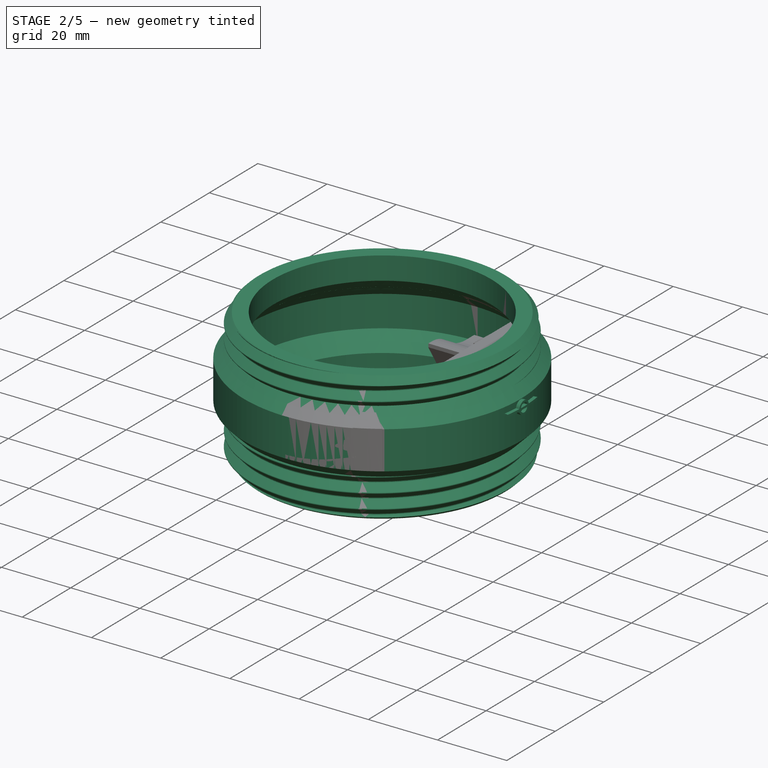
[diagram: stage 2 of 5 — iso view after this stage's code; geometry added in this stage tinted green]
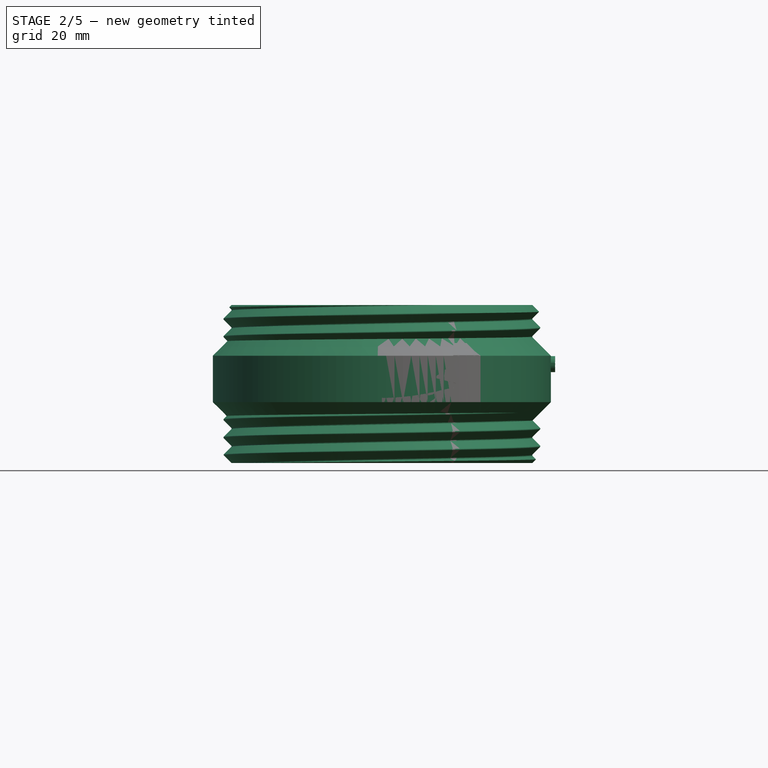
[diagram: stage 2 of 5 — front view after this stage's code; geometry added in this stage tinted green]
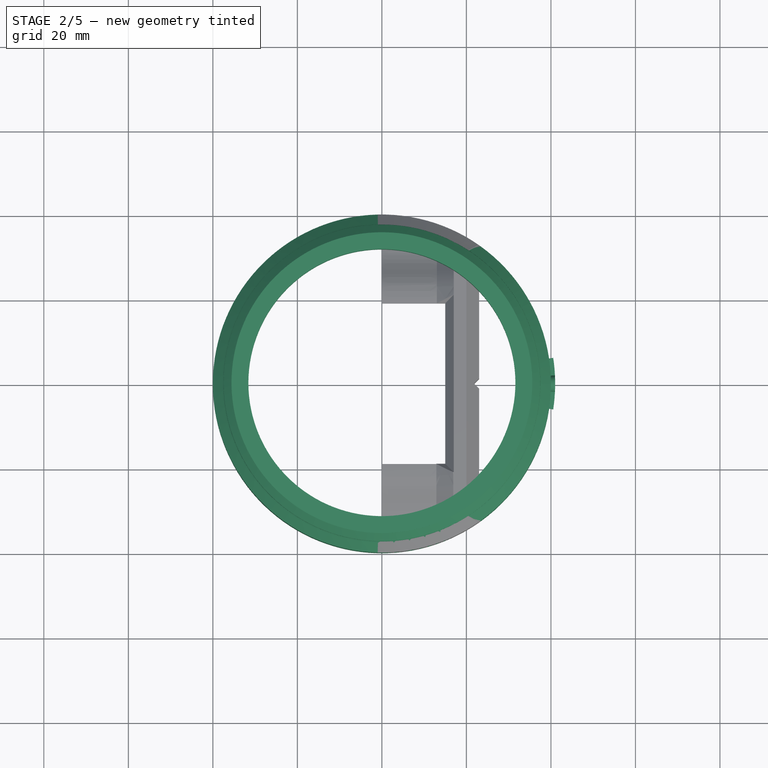
[diagram: stage 2 of 5 — top view after this stage's code; geometry added in this stage tinted green]
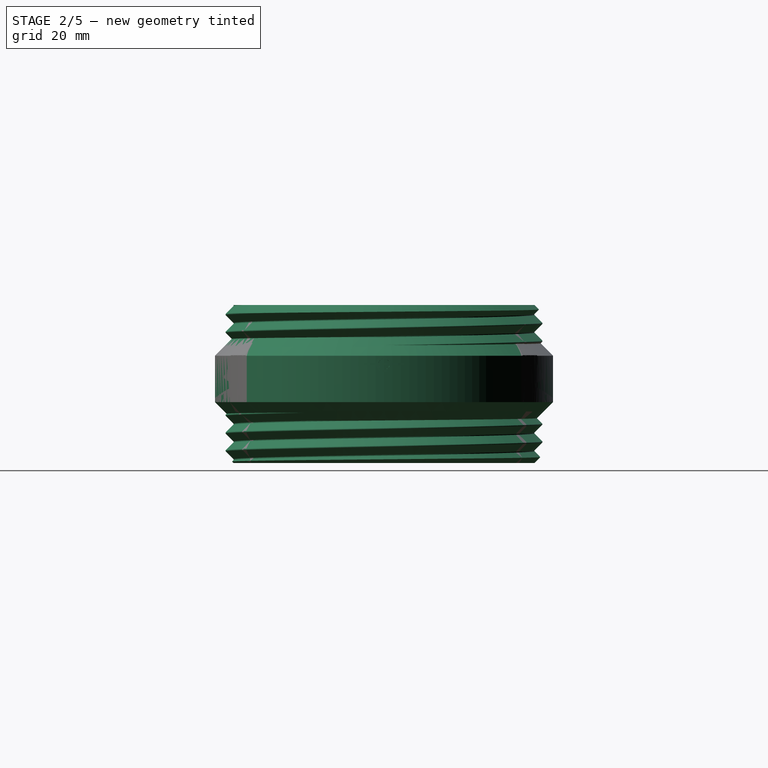
[diagram: stage 2 of 5 — right view after this stage's code; geometry added in this stage tinted green]
FEATURE [PartDesign::Body] Body002  label="Extension Tube"
  AllowCompound = false
  Group = -> [Sketch005,Revolution002,Sketch006,AdditiveHelix001,Sketch007,Groove001,Sketch008,AdditiveHelix007,Sketch032,Groove007]
  Origin = -> Origin003
  Tip = -> Groove007
FEATURE [Sketcher::SketchObject] Sketch026
  ArcFitTolerance = 0
  AttachmentSupport = -> [XZ_Plane006]
  FullyConstrained = true
  MakeInternals = false
  MapMode = 5
  Placement = pos=(0,0,0) rot=(1,0,0;1.5708rad)
  expr: Constraints[15] = Spreadsheet.film_holder_slot_h
  expr: Constraints[27] = <<params>>.thread_major_r + <<params>>.tube_t
  expr: Constraints[28] = <<params>>.tube_h + <<params>>.stepup_wd_offset
  expr: Constraints[29] = <<params>>.film_holder_upper_thread_h
  expr: Constraints[31] = <<params>>.bayonet_minor_r
  expr: Constraints[32] = <<params>>.thread_minor_r - <<params>>.tube_t
  expr: Constraints[33] = <<params>>.thread_major_r
  expr: Constraints[7] = <<params>>.thread_minor_r
  sketch-geometry (14):
    g0: LineSegment StartX=33.6 StartY=33.6 StartZ=0 EndX=35.6 EndY=33.6 EndZ=0
    g1: LineSegment StartX=35.6 StartY=33.6 StartZ=0 EndX=35.6 EndY=43.6 EndZ=0
    g2: LineSegment StartX=33.6 StartY=44.6 StartZ=0 EndX=33.6 EndY=33.6 EndZ=0
    g3: LineSegment StartX=40 StartY=48 StartZ=0 EndX=35.6 EndY=43.6 EndZ=0
    g4: LineSegment StartX=33.6 StartY=44.6 StartZ=0 EndX=38 EndY=49 EndZ=0
    g5: LineSegment StartX=40 StartY=48 StartZ=0 EndX=40 EndY=59 EndZ=0
    g6: LineSegment StartX=38 StartY=58 StartZ=0 EndX=38 EndY=49 EndZ=0
    g7: LineSegment StartX=38 StartY=58 StartZ=0 EndX=31.6 EndY=64.4 EndZ=0
    g8: LineSegment StartX=40 StartY=59 StartZ=0 EndX=35.6 EndY=63.4 EndZ=0
    g9: LineSegment StartX=35.6 StartY=63.4 StartZ=0 EndX=35.6 EndY=71 EndZ=0
    g10: LineSegment StartX=35.6 StartY=71 StartZ=0 EndX=31.6 EndY=71 EndZ=0
    g11: LineSegment StartX=31.6 StartY=71 StartZ=0 EndX=31.6 EndY=64.4 EndZ=0
    g12: GeomPoint X=38 Y=53.5 Z=0
    g13: GeomPoint X=40 Y=53.5 Z=0
  constraints (38):
    c: Coincident(g0,g1)
    c: Coincident(g2,g0)
    c: Horizontal(g0)
    c: Vertical(g1)
    c: Vertical(g2)
    c: Coincident(g3,g1)
    c: Distance(g1) = 10
    c: Distance(g-1,g1) = 35.6
    c: Coincident(g4,g2)
    c: Parallel(g3,g4)
    c: Angle(g1,g3) = 2.35619
    c: Vertical(g5)
    c: Vertical(g6)
    c: Coincident(g4,g6)
    c: Coincident(g5,g3)
    c: Distance(g5) = 11
    c: Coincident(g7,g6)
    c: Coincident(g8,g5)
    c: Parallel(g7,g8)
    c: Angle(g7,g6) = 2.35619
    c: Coincident(g9,g10)
    c: Coincident(g10,g11)
    c: Horizontal(g10)
    c: Vertical(g9)
    c: Vertical(g11)
    c: Coincident(g11,g7)
    c: Coincident(g9,g8)
    c: DistanceX(g-2,g3) = 40
    c: DistanceY(g-1,g3) = 48
    c: DistanceY(g5,g9) = 12
    c: Vertical(g8,g1)
    c: DistanceX(g-1,g7) = 31.6
    c: DistanceX(g-1,g0) = 33.6
    c: DistanceX(g-1,g4) = 38
    c: Symmetric(g6,g6,g12)
    c: Symmetric(g5,g5,g13)
    c: Horizontal(g13,g12)
    c: DistanceY(g6,g6) = 9
FEATURE [PartDesign::Revolution] Revolution005
  Angle = 360
  Angle2 = 60
  Axis = (0,2e-16,1)
  Base = (0,0,0)
  Placement = pos=(0,0,0) rot=(1,0,0;1.5708rad)
  Profile = -> Sketch026
  ReferenceAxis = -> Sketch026 [V_Axis]
  Reversed = true
  Suppressed = false
  Type = 0
FEATURE [Sketcher::SketchObject] Sketch027
  ArcFitTolerance = 0
  AttachmentSupport = -> [YZ_Plane006]
  ExternalGeometry = -> [Sketch026]
  FullyConstrained = true
  MakeInternals = false
  MapMode = 5
  Placement = pos=(0,0,0) rot=(0.57735,0.57735,0.57735;2.0944rad)
  expr: Constraints[14] = <<params>>.thread_crest_r
  expr: Constraints[16] = Spreadsheet.thread_crest_angle
  expr: Constraints[17] = <<params>>.thread_minor_r
  expr: Constraints[19] = <<params>>.thread_d + <<params>>.thread_minor_r
  expr: Constraints[21] = <<params>>.thread_d + 1
  sketch-geometry (8):
    g0: LineSegment StartX=34.6 StartY=49 StartZ=0 EndX=35.6 EndY=49 EndZ=0
    g1: LineSegment [constr] StartX=35.6 StartY=49 StartZ=0 EndX=35.6 EndY=45 EndZ=0
    g2: LineSegment StartX=35.6 StartY=45 StartZ=0 EndX=34.6 EndY=45 EndZ=0
    g3: LineSegment StartX=34.6 StartY=45 StartZ=0 EndX=34.6 EndY=49 EndZ=0
    g4: LineSegment StartX=35.6 StartY=49 StartZ=0 EndX=37.4232 EndY=47.1768 EndZ=0
    g5: LineSegment StartX=35.6 StartY=45 StartZ=0 EndX=37.4232 EndY=46.8232 EndZ=0
    g6: ArcOfCircle CenterX=37.2464 CenterY=47 CenterZ=0 NormalX=0 NormalY=0 NormalZ=1 AngleXU=0 Radius=0.25 StartAngle=5.49779 EndAngle=7.06858
    g7: GeomPoint [constr] X=37.6 Y=47 Z=0
  constraints (22):
    c: Coincident(g0,g1)
    c: Coincident(g1,g2)
    c: Coincident(g2,g3)
    c: Coincident(g3,g0)
    c: Horizontal(g0)
    c: Horizontal(g2)
    c: Vertical(g1)
    c: Vertical(g3)
    c: Coincident(g4,g0)
    c: Coincident(g5,g1)
    c: PointOnObject(g7,g4)
    c: PointOnObject(g7,g5)
    c: Tangent(g4,g6) = 1.5708
    c: Tangent(g5,g6) = -1.5708
    c: Radius(g6) = 0.25
    c: Equal(g5,g4)
    c: Angle(g4,g5) = 1.5708
    c: Distance(g-1,g1) = 35.6
    c: DistanceY(g-1,g2) = 45
    c: DistanceX(g-1,g7) = 37.6
    c: Distance(g7,g1) = 2
    c: Distance(g7,g3) = 3
FEATURE [Sketcher::SketchObject] Sketch028
  ArcFitTolerance = 0
  AttachmentOffset = pos=(0,0,0) rot=(0,1,0;0.017453rad)
  AttachmentSupport = -> [XZ_Plane006]
  ExternalGeometry = -> [Sketch026]
  FullyConstrained = true
  MakeInternals = false
  MapMode = 5
  Placement = pos=(0,0,0) rot=(0.999924,0.008726,0.008726;1.57087rad)
  sketch-geometry (14):
    g0: LineSegment StartX=30.5946 StartY=33.6 StartZ=0 EndX=35.5946 EndY=33.6 EndZ=0
    g1: LineSegment StartX=40.5946 StartY=38.6 StartZ=0 EndX=40.5946 EndY=23.6 EndZ=0
    g2: LineSegment StartX=40.5946 StartY=23.6 StartZ=0 EndX=30.5946 EndY=23.6 EndZ=0
    g3: LineSegment StartX=30.5946 StartY=23.6 StartZ=0 EndX=30.5946 EndY=33.6 EndZ=0
    g4: LineSegment StartX=35.5946 StartY=33.6 StartZ=0 EndX=40.5946 EndY=38.6 EndZ=0
    g5: LineSegment StartX=30.5946 StartY=81 StartZ=0 EndX=41.5946 EndY=81 EndZ=0
    g6: LineSegment StartX=41.5946 StartY=81 StartZ=0 EndX=41.5946 EndY=65 EndZ=0
    g7: LineSegment StartX=35.5946 StartY=71 StartZ=0 EndX=30.5946 EndY=71 EndZ=0
    g8: LineSegment StartX=30.5946 StartY=71 StartZ=0 EndX=30.5946 EndY=81 EndZ=0
    g9: LineSegment StartX=35.5946 StartY=71 StartZ=0 EndX=41.5946 EndY=65 EndZ=0
    g10: LineSegment StartX=27.9942 StartY=68 StartZ=0 EndX=37.9942 EndY=58 EndZ=0
    g11: LineSegment StartX=37.9942 StartY=49 StartZ=0 EndX=27.9942 EndY=39 EndZ=0
    g12: LineSegment StartX=27.9942 StartY=39 StartZ=0 EndX=27.9942 EndY=68 EndZ=0
    g13: LineSegment StartX=37.9942 StartY=58 StartZ=0 EndX=37.9942 EndY=49 EndZ=0
  constraints (38):
    c: Coincident(g1,g2)
    c: Coincident(g2,g3)
    c: Coincident(g3,g0)
    c: Horizontal(g0)
    c: Horizontal(g2)
    c: Vertical(g1)
    c: Vertical(g3)
    c: Coincident(g4,g1)
    c: Angle(g4,g1) = 0.785398
    c: Distance(g0,g1) = 5
    c: Distance(g0) = 5
    c: Distance(g3) = 10
    c: Coincident(g0,g4)
    c: Coincident(g-3,g0)
    c: Coincident(g5,g6)
    c: Coincident(g7,g8)
    c: Coincident(g8,g5)
    c: Horizontal(g5)
    c: Horizontal(g7)
    c: Vertical(g6)
    c: Vertical(g8)
    c: Coincident(g9,g6)
    c: Angle(g6,g9) = 0.785398
    c: Distance(g7,g6) = 6
    c: Distance(g8) = 10
    c: Coincident(g11,g12)
    c: Coincident(g12,g10)
    c: Vertical(g12)
    c: Angle(g11,g12) = 0.785398
    c: Angle(g12,g10) = 0.785398
    c: Distance(g10,g12) = 10
    c: Coincident(g7,g9)
    c: Coincident(g-4,g7)
    c: Distance(g7) = 5
    c: Coincident(g11,g-6)
    c: Coincident(g10,g-5)
    c: Coincident(g13,g10)
    c: Coincident(g13,g11)
FEATURE [Sketcher::SketchObject] Sketch031
  ArcFitTolerance = 0
  AttachmentSupport = -> [XZ_Plane006]
  FullyConstrained = true
  MakeInternals = false
  MapMode = 5
  Placement = pos=(0,0,0) rot=(1,0,0;1.5708rad)
  expr: Constraints[10] = <<params>>.tube_h + <<params>>.stepup_wd_offset
  expr: Constraints[8] = <<params>>.film_holder_w + 0.4
  expr: Constraints[9] = <<params>>.film_holder_slot_h
  sketch-geometry (10):
    g0: LineSegment [constr] StartX=-23.2 StartY=59 StartZ=0 EndX=23.2 EndY=59 EndZ=0
    g1: LineSegment StartX=23.2 StartY=59 StartZ=0 EndX=23.2 EndY=48 EndZ=0
    g2: LineSegment StartX=23.2 StartY=48 StartZ=0 EndX=-23.2 EndY=48 EndZ=0
    g3: LineSegment StartX=-23.2 StartY=48 StartZ=0 EndX=-23.2 EndY=59 EndZ=0
    g4: LineSegment [constr] StartX=-19.2 StartY=63 StartZ=0 EndX=19.2 EndY=63 EndZ=0
    g5: LineSegment StartX=19.2 StartY=63 StartZ=0 EndX=23.2 EndY=59 EndZ=0
    g6: LineSegment StartX=-23.2 StartY=59 StartZ=0 EndX=-19.2 EndY=63 EndZ=0
    g7: LineSegment StartX=-19.2 StartY=84 StartZ=0 EndX=19.2 EndY=84 EndZ=0
    g8: LineSegment StartX=19.2 StartY=84 StartZ=0 EndX=19.2 EndY=63 EndZ=0
    g9: LineSegment StartX=-19.2 StartY=63 StartZ=0 EndX=-19.2 EndY=84 EndZ=0
  constraints (26):
    c: Coincident(g0,g1)
    c: Coincident(g1,g2)
    c: Coincident(g2,g3)
    c: Coincident(g3,g0)
    c: Horizontal(g0)
    c: Vertical(g1)
    c: Vertical(g3)
    c: Symmetric(g2,g1,g-2)
    c: Distance(g2) = 46.4
    c: Distance(g1) = 11
    c: Distance(g-1,g2) = 48
    c: Coincident(g4,g5)
    c: Coincident(g6,g4)
    c: Coincident(g6,g3)
    c: Coincident(g5,g1)
    c: Symmetric(g4,g4,g-2)
    c: Distance(g1,g4) = 4
    c: Angle(g5,g0) = 0.785398
    c: Coincident(g7,g8)
    c: Coincident(g9,g7)
    c: Horizontal(g7)
    c: Vertical(g8)
    c: Vertical(g9)
    c: Coincident(g9,g6)
    c: Coincident(g8,g5)
    c: Distance(g8) = 21
FEATURE [PartDesign::AdditiveHelix] AdditiveHelix008
  Angle = 0
  Axis = (0,0,1)
  Base = (0,0,0)
  BaseFeature = -> Revolution005
  Growth = 0
  HasBeenEdited = true
  Height = 16
  LeftHanded = false
  Mode = 0
  Outside = false
  Pitch = 4.2
  Placement = pos=(0,0,0) rot=(1,0,0;1.5708rad)
  Profile = -> Sketch027
  ReferenceAxis = -> Sketch027 [V_Axis]
  Reversed = true
  Suppressed = false
  Tolerance = 0.1
  Turns = 3.80952
  expr: Pitch = <<params>>.thread_pitch
FEATURE [Sketcher::SketchObject] Sketch033
  ArcFitTolerance = 0
  AttachmentSupport = -> [XZ_Plane006]
  ExternalGeometry = -> [Sketch026]
  FullyConstrained = true
  MakeInternals = false
  MapMode = 5
  Placement = pos=(0,0,0) rot=(1,0,0;1.5708rad)
  expr: Constraints[14] = <<params>>.thread_crest_r
  expr: Constraints[15] = <<params>>.thread_crest_angle
  expr: Constraints[18] = <<params>>.thread_minor_r + <<params>>.thread_d
  expr: Constraints[20] = <<params>>.thread_d + 1
  sketch-geometry (8):
    g0: LineSegment StartX=34.6 StartY=63.4 StartZ=0 EndX=35.6 EndY=63.4 EndZ=0
    g1: LineSegment [constr] StartX=35.6 StartY=63.4 StartZ=0 EndX=35.6 EndY=59.4 EndZ=0
    g2: LineSegment StartX=35.6 StartY=59.4 StartZ=0 EndX=34.6 EndY=59.4 EndZ=0
    g3: LineSegment StartX=34.6 StartY=59.4 StartZ=0 EndX=34.6 EndY=63.4 EndZ=0
    g4: LineSegment StartX=35.6 StartY=63.4 StartZ=0 EndX=37.4232 EndY=61.5768 EndZ=0
    g5: LineSegment StartX=35.6 StartY=59.4 StartZ=0 EndX=37.4232 EndY=61.2232 EndZ=0
    g6: ArcOfCircle CenterX=37.2464 CenterY=61.4 CenterZ=0 NormalX=0 NormalY=0 NormalZ=1 AngleXU=0 Radius=0.25 StartAngle=5.49779 EndAngle=7.06858
    g7: GeomPoint [constr] X=37.6 Y=61.4 Z=0
  constraints (21):
    c: Coincident(g0,g1)
    c: Coincident(g1,g2)
    c: Coincident(g2,g3)
    c: Coincident(g3,g0)
    c: Horizontal(g0)
    c: Horizontal(g2)
    c: Vertical(g1)
    c: Vertical(g3)
    c: Coincident(g4,g0)
    c: Coincident(g5,g1)
    c: PointOnObject(g7,g4)
    c: PointOnObject(g7,g5)
    c: Tangent(g4,g6) = 1.5708
    c: Tangent(g5,g6) = -1.5708
    c: Radius(g6) = 0.25
    c: Angle(g4,g5) = 1.5708
    c: Equal(g5,g4)
    c: Coincident(g0,g-3)
    c: DistanceX(g-1,g7) = 37.6
    c: Distance(g7,g1) = 2
    c: Distance(g7,g3) = 3
FEATURE [PartDesign::AdditiveHelix] AdditiveHelix009
  Angle = 0
  Axis = (0,2e-16,1)
  Base = (0,0,0)
  BaseFeature = -> AdditiveHelix008
  Growth = 0
  HasBeenEdited = true
  Height = 12.8
  LeftHanded = false
  Mode = 0
  Outside = false
  Pitch = 4.2
  Placement = pos=(0,0,0) rot=(1,0,0;1.5708rad)
  Profile = -> Sketch033
  ReferenceAxis = -> Sketch033 [V_Axis]
  Suppressed = false
  Tolerance = 0.1
  Turns = 3.04762
  expr: Pitch = <<params>>.thread_pitch
FEATURE [PartDesign::Groove] Groove008
  Angle = 360
  Angle2 = 60
  Axis = (0,2e-16,1)
  Base = (0,0,0)
  BaseFeature = -> AdditiveHelix009
  Placement = pos=(0,0,0) rot=(1,0,0;1.5708rad)
  Profile = -> Sketch028
  ReferenceAxis = -> Sketch028 [V_Axis]
  Suppressed = false
  Type = 0
FEATURE [PartDesign::Body] Body010  label="Light Support"
  AllowCompound = false
  Group = -> [Pad007,Pad008,DatumPlane012,Sketch059,Sketch060,DatumPlane013,Sketch061,Revolution012,PolarPattern003,Chamfer001,PolarPattern002,DatumPlane014,Sketch063,AdditiveLoft001,Sketch067,Sketch068,Sketch069,Pad009,Pocket012,Sketch070,Pocket013,Sketch071,Pocket014,Chamfer002,Chamfer003]
  Origin = -> Origin010
  Tip = -> Chamfer003
FEATURE [App::DocumentObjectGroup] Group002  label="Light Mount"
  Group = -> [Body006,Body010]
FEATURE [Sketcher::SketchObject] Sketch072  label="Film Icon Sketch"
  ArcFitTolerance = 1e-06
  FullyConstrained = true
  MakeInternals = false
  Placement = pos=(42,0,0) rot=(0.57735,0.57735,0.57735;2.0944rad)
  expr: .Placement.Base.x = <<params>>.thread_major_r + <<params>>.tube_t + 2
  expr: Constraints[34] = <<params>>.effective_wd
  sketch-geometry (12):
    g0: LineSegment StartX=1.26491 StartY=56.7 StartZ=0 EndX=-1.26491 EndY=56.7 EndZ=0
    g1: LineSegment StartX=1.86491 StartY=57.3 StartZ=0 EndX=5.86491 EndY=57.3 EndZ=0
    g2: LineSegment StartX=5.86491 StartY=57.3 StartZ=0 EndX=5.86491 EndY=56.7 EndZ=0
    g3: LineSegment StartX=5.86491 StartY=56.7 StartZ=0 EndX=1.86491 EndY=56.7 EndZ=0
    g4: LineSegment StartX=-1.86491 StartY=57.3 StartZ=0 EndX=-5.86491 EndY=57.3 EndZ=0
    g5: LineSegment StartX=-5.86491 StartY=57.3 StartZ=0 EndX=-5.86491 EndY=56.7 EndZ=0
    g6: LineSegment StartX=-5.86491 StartY=56.7 StartZ=0 EndX=-1.86491 EndY=56.7 EndZ=0
    g7: ArcOfCircle CenterX=0 CenterY=57 CenterZ=0 NormalX=0 NormalY=0 NormalZ=1 AngleXU=0 Radius=1.3 StartAngle=3.37446 EndAngle=6.05032
    g8: ArcOfCircle CenterX=0 CenterY=57 CenterZ=0 NormalX=0 NormalY=0 NormalZ=1 AngleXU=0 Radius=1.88889 StartAngle=0.159499 EndAngle=2.98209
    g9: ArcOfCircle CenterX=0 CenterY=57 CenterZ=0 NormalX=0 NormalY=0 NormalZ=1 AngleXU=0 Radius=1.88889 StartAngle=3.30109 EndAngle=6.12369
    g10: ArcOfCircle CenterX=0 CenterY=57 CenterZ=0 NormalX=0 NormalY=0 NormalZ=1 AngleXU=0 Radius=1.3 StartAngle=0.232868 EndAngle=2.90872
    g11: LineSegment StartX=-1.26491 StartY=57.3 StartZ=0 EndX=1.26491 EndY=57.3 EndZ=0
  constraints (36):
    c: Horizontal(g0)
    c: Coincident(g1,g2)
    c: Coincident(g2,g3)
    c: Horizontal(g1)
    c: Horizontal(g3)
    c: Coincident(g4,g5)
    c: Coincident(g5,g6)
    c: Horizontal(g4)
    c: Horizontal(g6)
    c: Coincident(g7,g0)
    c: Coincident(g8,g4)
    c: Coincident(g8,g1)
    c: Coincident(g9,g6)
    c: Coincident(g9,g3)
    c: Horizontal(g4,g10)
    c: Horizontal(g6,g0)
    c: Distance(g2) = 0.6
    c: Horizontal(g3,g0)
    c: Equal(g3,g6)
    c: Vertical(g5)
    c: Vertical(g2)
    c: Distance(g1) = 4
    c: Distance(g0,g3) = 0.6
    c: Coincident(g0,g7)
    c: Coincident(g8,g9)
    c: Coincident(g7,g8)
    c: Coincident(g10,g7)
    c: Coincident(g11,g10)
    c: Coincident(g11,g10)
    c: Horizontal(g11)
    c: Horizontal(g10,g1)
    c: Diameter(g10) = 2.6
    c: Symmetric(g10,g0,g7)
    c: Vertical(g1,g3)
    c: DistanceY(g-1,g7) = 57
    c: PointOnObject(g7,g-2)
FEATURE [Part::Face] Face
  FaceMakerClass = Part::FaceMakerBullseye
  Sources = -> [Sketch072]
FEATURE [Part::ProjectOnSurface] Projection
  Direction = (-1,0,0)
  Height = 0
  Mode = 0
  Projection = -> [Face]
  SupportFace = -> Cylinder [Face1]
FEATURE [Part::Offset] Offset
  Fill = true
  Intersection = false
  Join = 0
  Mode = 0
  SelfIntersection = false
  Source = -> Projection
  Value = -1.6
  expr: Value = -<<params>>.engraving_d - 1
FEATURE [PartDesign::Body] Body007  label="Guide Lines"
  AllowCompound = false
  Group = -> [Sketch043,Sketch073,AdditivePipe]
  Origin = -> Origin
  Tip = -> AdditivePipe
FEATURE [Part::FeaturePython] Slice  # WARN: FeaturePython — macro-defined, semantics opaque (R4)
  Base = -> Body008
  Mode = 1
  Tolerance = 0
  Tools = -> [AdditivePipe]
FEATURE [Part::FeaturePython] Slice_child0  label="Slice.0"  # WARN: FeaturePython — macro-defined, semantics opaque (R4)
  Base = -> Slice
  FilterType = 1
  Invert = false
  OverrideMaxVal = 0
  WindowFrom = 80
  WindowTo = 100
  items = 0
FEATURE [Part::FeaturePython] Slice_child1  label="Slice.1"  # WARN: FeaturePython — macro-defined, semantics opaque (R4)
  Base = -> Slice
  FilterType = 1
  Invert = false
  OverrideMaxVal = 0
  WindowFrom = 80
  WindowTo = 100
  items = 1
FEATURE [Part::FeaturePython] Slice_child2  label="Slice.2"  # WARN: FeaturePython — macro-defined, semantics opaque (R4)
  Base = -> Slice
  FilterType = 1
  Invert = false
  OverrideMaxVal = 0
  WindowFrom = 80
  WindowTo = 100
  items = 2
FEATURE [Part::FeaturePython] Slice_child3  label="Slice.3"  # WARN: FeaturePython — macro-defined, semantics opaque (R4)
  Base = -> Slice
  FilterType = 1
  Invert = false
  OverrideMaxVal = 0
  WindowFrom = 80
  WindowTo = 100
  items = 3
FEATURE [Part::FeaturePython] Slice_child4  label="Slice.4"  # WARN: FeaturePython — macro-defined, semantics opaque (R4)
  Base = -> Slice
  FilterType = 1
  Invert = false
  OverrideMaxVal = 0
  WindowFrom = 80
  WindowTo = 100
  items = 4
FEATURE [Part::FeaturePython] Slice_child5  label="Slice.5"  # WARN: FeaturePython — macro-defined, semantics opaque (R4)
  Base = -> Slice
  FilterType = 1
  Invert = false
  OverrideMaxVal = 0
  WindowFrom = 80
  WindowTo = 100
  items = 5
FEATURE [App::DocumentObjectGroup] GrExplode_Slice  label="Film Holder Split"
  Group = -> [Slice_child0,Slice_child1,Slice_child2,Slice_child3,Slice_child4,Slice_child5]
FEATURE [App::DocumentObjectGroup] Group001  label="Film Holder"
  Group = -> [Body007,Offset2D,Offset2D001,Body008,Spreadsheet001,GrExplode_Slice]
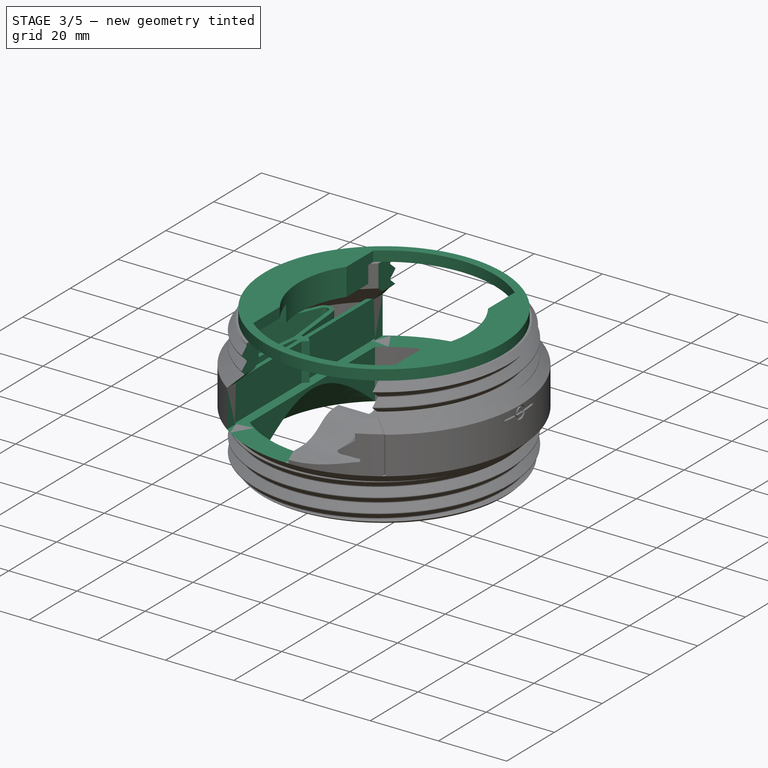
[diagram: stage 3 of 5 — iso view after this stage's code; geometry added in this stage tinted green]
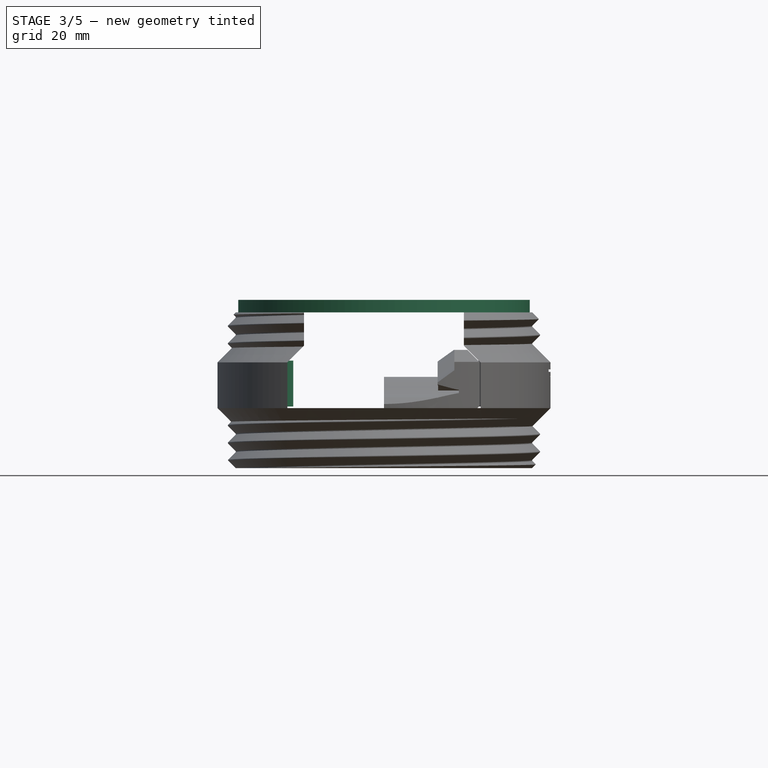
[diagram: stage 3 of 5 — front view after this stage's code; geometry added in this stage tinted green]
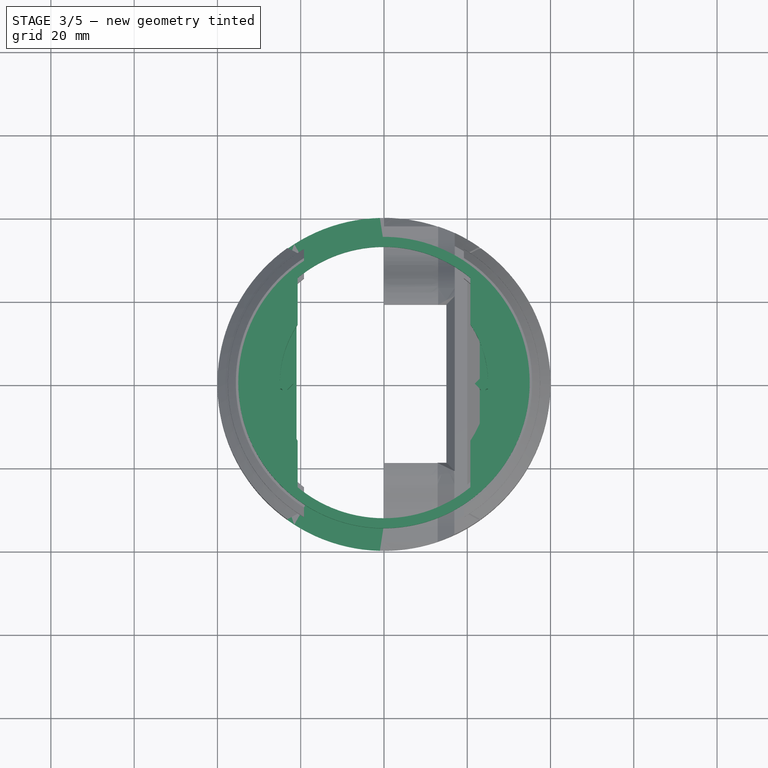
[diagram: stage 3 of 5 — top view after this stage's code; geometry added in this stage tinted green]
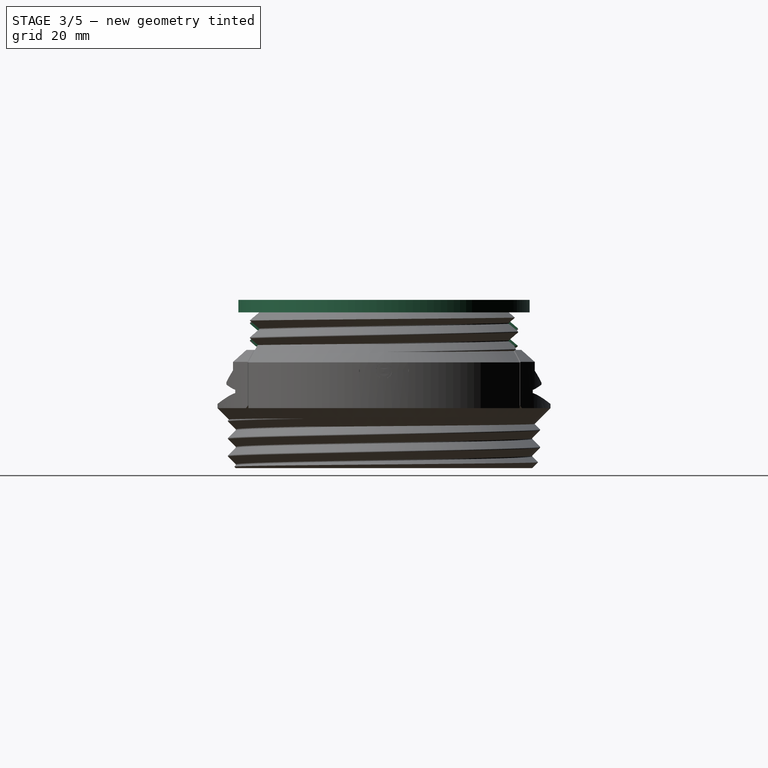
[diagram: stage 3 of 5 — right view after this stage's code; geometry added in this stage tinted green]
FEATURE [PartDesign::Pocket] Pocket005
  BaseFeature = -> Groove008
  Direction = (0,1,-2e-16)
  Length = 5
  Length2 = 5
  Midplane = true
  Placement = pos=(0,0,0) rot=(1,0,0;1.5708rad)
  Profile = -> Sketch031
  ReferenceAxis = -> Sketch031 [N_Axis]
  Suppressed = false
  Type = 1
FEATURE [PartDesign::Revolution] Revolution007
  Angle = 360
  Angle2 = 60
  Axis = (0,2e-16,1)
  Base = (0,0,0)
  BaseFeature = -> Pocket005
  Placement = pos=(0,0,0) rot=(1,0,0;1.5708rad)
  Profile = -> Sketch038
  ReferenceAxis = -> Sketch038 [V_Axis]
  Reversed = true
  Suppressed = false
  Type = 0
FEATURE [PartDesign::Pocket] Pocket006
  BaseFeature = -> Revolution007
  Direction = (0,0,-1)
  Length = 15
  Length2 = 5
  Placement = pos=(0,0,0) rot=(1,0,0;1.5708rad)
  Profile = -> Sketch040
  ReferenceAxis = -> Sketch040 [N_Axis]
  Suppressed = false
  Type = 0
FEATURE [PartDesign::Pad] Pad002
  BaseFeature = -> Pocket006
  Direction = (0,0,1)
  Length = 11
  Length2 = 10
  Placement = pos=(0,0,0) rot=(1,0,0;1.5708rad)
  Profile = -> Sketch042
  ReferenceAxis = -> Sketch042 [N_Axis]
  Suppressed = false
  Type = 0
  expr: Length = Spreadsheet.film_holder_slot_h
FEATURE [PartDesign::MultiTransform] MultiTransform
  BaseFeature = -> Pad002
  Originals = -> [Pad002]
  Placement = pos=(0,0,0) rot=(1,0,0;1.5708rad)
  Suppressed = false
  TransformMode = 0
  Transformations = -> [Mirrored001,Mirrored002]
FEATURE [PartDesign::Body] Body001  label="Retaining Ring"
  AllowCompound = false
  Group = -> [Sketch001,Revolution001,Sketch002,Pocket,PolarPattern,Sketch003,AdditiveHelix,Sketch004,Groove]
  Origin = -> Origin002
  Tip = -> Groove
FEATURE [PartDesign::Plane] DatumPlane010
  AttachmentOffset = pos=(0,0,0) rot=(0,1,0;0.401426rad)
  AttachmentSupport = -> [XZ_Plane006]
  Length = 124.888
  MapMode = 5
  Placement = pos=(0,0,0) rot=(0.961012,0.19552,0.19552;1.61055rad)
  ResizeMode = 0
  Width = 116.063
  expr: .AttachmentOffset.Rotation.Pitch = -(<<params>>.bayonet_pin_slot_a - <<params>>.bayonet_range_a / 2)
FEATURE [Sketcher::SketchObject] Sketch056
  ArcFitTolerance = 1e-06
  AttachmentSupport = -> [DatumPlane010]
  FullyConstrained = true
  MakeInternals = false
  MapMode = 5
  Placement = pos=(0,0,0) rot=(0.961012,0.19552,0.19552;1.61055rad)
  expr: Constraints[11] = <<params>>.bayonet_minor_r - 1
  expr: Constraints[9] = <<params>>.bayonet_base_h
  sketch-geometry (4):
    g0: LineSegment StartX=30.6 StartY=76 StartZ=0 EndX=30.6 EndY=66 EndZ=0
    g1: LineSegment StartX=30.6 StartY=66 StartZ=0 EndX=35 EndY=66 EndZ=0
    g2: LineSegment StartX=35 StartY=66 StartZ=0 EndX=35 EndY=76 EndZ=0
    g3: LineSegment StartX=35 StartY=76 StartZ=0 EndX=30.6 EndY=76 EndZ=0
  constraints (12):
    c: Coincident(g0,g1)
    c: Coincident(g1,g2)
    c: Coincident(g2,g3)
    c: Coincident(g3,g0)
    c: Vertical(g0)
    c: Vertical(g2)
    c: Horizontal(g1)
    c: Horizontal(g3)
    c: DistanceX(g3,g3) = 4.4
    c: DistanceY(g-1,g1) = 66
    c: DistanceY(g2,g2) = 10
    c: DistanceX(g-1,g0) = 30.6
FEATURE [PartDesign::Groove] Groove012
  Angle = 25
  Angle2 = 60
  Axis = (0,2e-16,1)
  Base = (0,0,0)
  BaseFeature = -> MultiTransform
  Placement = pos=(0,0,0) rot=(1,0,0;1.5708rad)
  Profile = -> Sketch056
  ReferenceAxis = -> Sketch056 [V_Axis]
  Refine = true
  Suppressed = false
  Type = 0
  expr: Angle = <<params>>.bayonet_pin_slot_a
FEATURE [PartDesign::Plane] DatumPlane011
  AttachmentOffset = pos=(0,0,66) rot=(0,0,1;0rad)
  AttachmentSupport = -> [XY_Plane006]
  Length = 95.9114
  MapMode = 5
  Placement = pos=(0,0,66) rot=(0,0,1;0rad)
  ResizeMode = 0
  Width = 95.992
  expr: .AttachmentOffset.Base.z = <<params>>.bayonet_base_h
FEATURE [Sketcher::SketchObject] Sketch057
  ArcFitTolerance = 1e-06
  AttachmentSupport = -> [DatumPlane011]
  FullyConstrained = true
  MakeInternals = false
  MapMode = 5
  Placement = pos=(0,0,66) rot=(0,0,1;0rad)
  expr: Constraints[11] = <<params>>.bayonet_minor_r - 0.8
  expr: Constraints[16] = <<params>>.bayonet_minor_r
  expr: Constraints[17] = <<params>>.bayonet_range_a - <<params>>.bayonet_pin_slot_a
  expr: Constraints[19] = <<params>>.bayonet_pin_a
  expr: Constraints[20] = <<params>>.bayonet_range_a / 2 - <<params>>.bayonet_pin_slot_a
  sketch-geometry (8):
    g0: LineSegment [constr] StartX=0 StartY=0 StartZ=0 EndX=29.088 EndY=12.3471 EndZ=0
    g1: LineSegment [constr] StartX=0 StartY=0 StartZ=0 EndX=28.5317 EndY=-9.27051 EndZ=0
    g2: LineSegment [constr] StartX=0 StartY=0 StartZ=0 EndX=27.6829 EndY=-13.5018 EndZ=0
    g3: LineSegment [constr] StartX=0 StartY=0 StartZ=0 EndX=20.6092 EndY=-22.8889 EndZ=0
    g4: ArcOfCircle CenterX=0 CenterY=0 CenterZ=0 NormalX=0 NormalY=0 NormalZ=1 AngleXU=0 Radius=30.8 StartAngle=5.44543 EndAngle=5.8294
    g5: ArcOfCircle CenterX=5.0635 CenterY=2.14933 CenterZ=0 NormalX=0 NormalY=0 NormalZ=1 AngleXU=0 Radius=26.0992 StartAngle=5.83031 EndAngle=6.68461
    g6: LineSegment StartX=28.5317 StartY=-9.27051 StartZ=0 EndX=27.6829 EndY=-13.5018 EndZ=0
    g7: ArcOfCircle [constr] CenterX=0 CenterY=0 CenterZ=0 NormalX=0 NormalY=0 NormalZ=1 AngleXU=0 Radius=30.8 StartAngle=5.8294 EndAngle=5.96903
  constraints (22):
    c: Coincident(g1,g0)
    c: Coincident(g2,g0)
    c: Coincident(g3,g0)
    c: Coincident(g4,g0)
    c: Coincident(g4,g3)
    c: Coincident(g4,g2)
    c: PointOnObject(g5,g0)
    c: Coincident(g5,g0)
    c: Coincident(g5,g1)
    c: Coincident(g6,g1)
    c: Coincident(g6,g2)
    c: Distance(g3,g3) = 30.8
    c: Coincident(g7,g0)
    c: Coincident(g7,g2)
    c: PointOnObject(g7,g1)
    c: Distance(g1,g7) = 0.8
    c: Distance(g0,g0) = 31.6
    c: Angle(g3,g0) = 1.23918
    c: Angle(g2,g1) = 0.139626
    c: Angle(g3,g2) = 0.383972
    c: Angle(g-1,g0) = 0.401426
    c: Coincident(g0,g-1)
FEATURE [Sketcher::SketchObject] Sketch058
  ArcFitTolerance = 1e-06
  AttachmentSupport = -> [DatumPlane010]
  FullyConstrained = true
  MakeInternals = false
  MapMode = 5
  Placement = pos=(0,0,0) rot=(0.961012,0.19552,0.19552;1.61055rad)
  expr: Constraints[10] = <<params>>.bayonet_minor_r
  expr: Constraints[11] = <<params>>.bayonet_base_h
  sketch-geometry (7):
    g0: LineSegment StartX=30.4 StartY=70.4 StartZ=0 EndX=30.4 EndY=66 EndZ=0
    g1: LineSegment StartX=30.4 StartY=66 StartZ=0 EndX=31.6 EndY=66 EndZ=0
    g2: LineSegment StartX=31.6 StartY=66 StartZ=0 EndX=35 EndY=66 EndZ=0
    g3: LineSegment StartX=31.6 StartY=70.4 StartZ=0 EndX=30.4 EndY=70.4 EndZ=0
    g4: LineSegment [constr] StartX=31.6 StartY=70.4 StartZ=0 EndX=31.6 EndY=66 EndZ=0
    g5: LineSegment StartX=35 StartY=66 StartZ=0 EndX=35 EndY=67 EndZ=0
    g6: LineSegment StartX=31.6 StartY=70.4 StartZ=0 EndX=35 EndY=67 EndZ=0
  constraints (20):
    c: Vertical(g0)
    c: Coincident(g0,g1)
    c: Horizontal(g1)
    c: Coincident(g1,g2)
    c: Horizontal(g2)
    c: Coincident(g3,g0)
    c: Horizontal(g3)
    c: Coincident(g4,g1)
    c: Vertical(g4)
    c: DistanceX(g2,g2) = 3.4
    c: DistanceX(g-1,g1) = 31.6
    c: DistanceY(g-1,g1) = 66
    c: Coincident(g4,g3)
    c: Coincident(g5,g2)
    c: Vertical(g5)
    c: Coincident(g6,g3)
    c: Coincident(g6,g5)
    c: Angle(g6,g4) = 2.35619
    c: DistanceY(g5,g5) = 1
    c: Distance(g2,g0) = 4.6
FEATURE [PartDesign::SubtractivePipe] SubtractivePipe
  AuxilleryCurvelinear = true
  AuxillerySpineTangent = false
  BaseFeature = -> Groove012
  Binormal = (0,0,0)
  Mode = 0
  Placement = pos=(0,0,0) rot=(1,0,0;1.5708rad)
  Profile = -> Sketch058
  Refine = true
  Spine = -> Sketch057
  SpineTangent = false
  Suppressed = false
  Transformation = 0
  Transition = 0
FEATURE [PartDesign::Plane] DatumPlane012
  AttachmentOffset = pos=(0,0,0) rot=(0,-1,0;0.837758rad)
  AttachmentSupport = -> [XZ_Plane010]
  Length = 165.646
  MapMode = 5
  Placement = pos=(0,0,0) rot=(0.846226,-0.376764,-0.376764;1.737rad)
  ResizeMode = 0
  Width = 130.798
  expr: .AttachmentOffset.Rotation.Pitch = -<<params>>.bayonet_range_a / 2
FEATURE [Sketcher::SketchObject] Sketch059
  ArcFitTolerance = 1e-06
  AttachmentSupport = -> [XZ_Plane010]
  FullyConstrained = true
  MakeInternals = false
  MapMode = 5
  Placement = pos=(0,0,0) rot=(1,0,0;1.5708rad)
  expr: Constraints[10] = <<params>>.bayonet_base_h + 5
  expr: Constraints[9] = <<params>>.bayonet_minor_r - 0.6
  sketch-geometry (5):
    g0: LineSegment StartX=29 StartY=71 StartZ=0 EndX=29 EndY=74 EndZ=0
    g1: LineSegment StartX=29 StartY=74 StartZ=0 EndX=35 EndY=74 EndZ=0
    g2: LineSegment StartX=35 StartY=71 StartZ=0 EndX=31 EndY=71 EndZ=0
    g3: LineSegment StartX=35 StartY=74 StartZ=0 EndX=35 EndY=71 EndZ=0
    g4: LineSegment StartX=29 StartY=71 StartZ=0 EndX=31 EndY=71 EndZ=0
  constraints (15):
    c: Vertical(g0)
    c: Coincident(g0,g1)
    c: Horizontal(g2)
    c: Horizontal(g1)
    c: Coincident(g3,g1)
    c: Coincident(g3,g2)
    c: Vertical(g3)
    c: DistanceY(g3,g3) = 3
    c: DistanceX(g1,g1) = 6
    c: DistanceX(g-1,g2) = 31
    c: DistanceY(g-1,g2) = 71
    c: Coincident(g4,g0)
    c: Coincident(g4,g2)
    c: Horizontal(g4)
    c: DistanceX(g4,g4) = 2
FEATURE [Sketcher::SketchObject] Sketch060
  ArcFitTolerance = 1e-06
  AttachmentSupport = -> [DatumPlane012]
  FullyConstrained = true
  MakeInternals = false
  MapMode = 5
  Placement = pos=(0,0,0) rot=(0.846226,-0.376764,-0.376764;1.737rad)
  expr: Constraints[15] = <<params>>.bayonet_base_h
  expr: Constraints[16] = <<params>>.bayonet_minor_r - 0.6
  sketch-geometry (6):
    g0: LineSegment StartX=34.2 StartY=66 StartZ=0 EndX=30.99 EndY=66 EndZ=0
    g1: LineSegment StartX=30.99 StartY=66 StartZ=0 EndX=30.99 EndY=70 EndZ=0
    g2: LineSegment StartX=30.99 StartY=70 StartZ=0 EndX=31 EndY=70 EndZ=0
    g3: LineSegment StartX=31 StartY=70 StartZ=0 EndX=34.2 EndY=66.8 EndZ=0
    g4: LineSegment StartX=34.2 StartY=66.8 StartZ=0 EndX=34.2 EndY=66 EndZ=0
    g5: LineSegment [constr] StartX=31 StartY=70 StartZ=0 EndX=31 EndY=66 EndZ=0
  constraints (18):
    c: Horizontal(g0)
    c: Coincident(g0,g1)
    c: Vertical(g1)
    c: Coincident(g1,g2)
    c: Horizontal(g2)
    c: Coincident(g2,g3)
    c: Coincident(g3,g4)
    c: Coincident(g4,g0)
    c: Vertical(g4)
    c: DistanceY(g4,g4) = 0.8
    c: Angle(g3,g0) = 0.785398
    c: DistanceX(g2,g2) = 0.01
    c: Coincident(g5,g2)
    c: PointOnObject(g5,g0)
    c: Vertical(g5)
    c: DistanceY(g-1,g5) = 66
    c: DistanceX(g-1,g5) = 31
    c: DistanceX(g5,g0) = 3.2
FEATURE [PartDesign::PolarPattern] PolarPattern001
  Angle = 360
  Axis = -> Sketch056 [V_Axis]
  BaseFeature = -> SubtractivePipe
  Mode = 0
  Occurrences = 2
  Offset = 120
  Originals = -> [Groove012,SubtractivePipe]
  Placement = pos=(0,0,0) rot=(1,0,0;1.5708rad)
  Refine = true
  Suppressed = false
  TransformMode = 0
FEATURE [PartDesign::Body] Body006  label="Top Ring"
  AllowCompound = false
  Group = -> [Sketch034,Revolution006,Sketch035,AdditiveHelix010,Sketch036,Groove009,Chamfer]
  Origin = -> Origin007
  Tip = -> Chamfer
FEATURE [PartDesign::Plane] DatumPlane014
  AttachmentOffset = pos=(0,0,78) rot=(0,0,1;0rad)
  AttachmentSupport = -> [XY_Plane010]
  Length = 100.47
  MapMode = 5
  Placement = pos=(0,0,78) rot=(0,0,1;0rad)
  ResizeMode = 0
  Width = 136.47
  expr: .AttachmentOffset.Base.z = <<params>>.bayonet_base_h + <<params>>.light_offset_d
FEATURE [Sketcher::SketchObject] Sketch067
  ArcFitTolerance = 1e-06
  AttachmentSupport = -> [DatumPlane013]
  FullyConstrained = true
  MakeInternals = false
  MapMode = 5
  Placement = pos=(0,0,74) rot=(0,0,1;0rad)
  expr: Constraints[20] = <<params>>.bayonet_minor_r + 3.4
  expr: Constraints[25] = <<params>>.bayonet_minor_r - 0.6
  expr: Constraints[26] = <<params>>.bayonet_range_a / 2
  sketch-geometry (10):
    g0: Circle CenterX=0 CenterY=0 CenterZ=0 NormalX=0 NormalY=0 NormalZ=1 AngleXU=0 Radius=35
    g1: ArcOfCircle CenterX=0 CenterY=0 CenterZ=0 NormalX=0 NormalY=0 NormalZ=1 AngleXU=0 Radius=25 StartAngle=5.691 EndAngle=6.87537
    g2: ArcOfCircle CenterX=0 CenterY=0 CenterZ=0 NormalX=0 NormalY=0 NormalZ=1 AngleXU=0 Radius=32.6 StartAngle=0.881117 EndAngle=2.26048
    g3: ArcOfCircle CenterX=0 CenterY=0 CenterZ=0 NormalX=0 NormalY=0 NormalZ=1 AngleXU=0 Radius=32.6 StartAngle=4.02271 EndAngle=5.40207
    g4: ArcOfCircle CenterX=0 CenterY=0 CenterZ=0 NormalX=0 NormalY=0 NormalZ=1 AngleXU=0 Radius=25 StartAngle=2.54941 EndAngle=3.73378
    g5: LineSegment StartX=20.743 StartY=25.1493 StartZ=0 EndX=20.743 EndY=13.9544 EndZ=0
    g6: LineSegment StartX=20.743 StartY=-13.9544 StartZ=0 EndX=20.743 EndY=-25.1493 EndZ=0
    g7: LineSegment StartX=-20.743 StartY=-25.1493 StartZ=0 EndX=-20.743 EndY=-13.9544 EndZ=0
    g8: LineSegment StartX=-20.743 StartY=25.1493 StartZ=0 EndX=-20.743 EndY=13.9544 EndZ=0
    g9: LineSegment [constr] StartX=0 StartY=0 StartZ=0 EndX=20.743 EndY=23.0375 EndZ=0
  constraints (28):
    c: Coincident(g1,g0)
    c: Coincident(g2,g0)
    c: Coincident(g3,g0)
    c: Coincident(g4,g0)
    c: Coincident(g5,g2)
    c: Coincident(g5,g1)
    c: Coincident(g6,g1)
    c: Coincident(g6,g3)
    c: Coincident(g7,g3)
    c: Coincident(g7,g4)
    c: Coincident(g8,g2)
    c: Coincident(g8,g4)
    c: Vertical(g8)
    c: Vertical(g5)
    c: Vertical(g6)
    c: Vertical(g7)
    c: Symmetric(g1,g4,g-2)
    c: Vertical(g1,g1)
    c: Equal(g5,g6)
    c: Coincident(g0,g-1)
    c: Radius(g0) = 35
    c: Distance(g0,g3) = 2.4
    c: Vertical(g4,g4)
    c: Coincident(g9,g0)
    c: PointOnObject(g9,g5)
    c: Distance(g9,g9) = 31
    c: Angle(g-1,g9) = 0.837758
    c: Distance(g1,g0) = 10
FEATURE [PartDesign::Pad] Pad007
  Direction = (0,0,1)
  Length = 3
  Length2 = 10
  Placement = pos=(0,0,74) rot=(0,0,1;0rad)
  Profile = -> Sketch067
  ReferenceAxis = -> Sketch067 [N_Axis]
  Refine = true
  Reversed = true
  Suppressed = false
  Type = 0
FEATURE [Sketcher::SketchObject] Sketch068
  ArcFitTolerance = 1e-06
  AttachmentSupport = -> [DatumPlane013]
  FullyConstrained = true
  MakeInternals = false
  MapMode = 5
  Placement = pos=(0,0,74) rot=(0,0,1;0rad)
  expr: Constraints[12] = <<params>>.bayonet_range_a / 2
  expr: Constraints[13] = <<params>>.bayonet_minor_r - 0.6
  sketch-geometry (6):
    g0: LineSegment [constr] StartX=0 StartY=0 StartZ=0 EndX=29.9437 EndY=8.02339 EndZ=0
    g1: LineSegment [constr] StartX=0 StartY=0 StartZ=0 EndX=20.743 EndY=-23.0375 EndZ=0
    g2: ArcOfCircle CenterX=0 CenterY=0 CenterZ=0 NormalX=0 NormalY=0 NormalZ=1 AngleXU=0 Radius=31 StartAngle=5.44543 EndAngle=6.54498
    g3: ArcOfCircle CenterX=0 CenterY=0 CenterZ=0 NormalX=0 NormalY=0 NormalZ=1 AngleXU=0 Radius=25 StartAngle=5.691 EndAngle=6.54498
    g4: LineSegment StartX=20.743 StartY=-13.9544 StartZ=0 EndX=20.743 EndY=-23.0375 EndZ=0
    g5: LineSegment StartX=24.1481 StartY=6.47048 StartZ=0 EndX=29.9437 EndY=8.02339 EndZ=0
  constraints (16):
    c: Coincident(g1,g0)
    c: Coincident(g2,g0)
    c: Coincident(g2,g0)
    c: Coincident(g2,g1)
    c: PointOnObject(g3,g0)
    c: Coincident(g4,g3)
    c: Coincident(g4,g1)
    c: Vertical(g4)
    c: Coincident(g0,g3)
    c: Coincident(g5,g3)
    c: Coincident(g5,g0)
    c: Distance(g3,g2) = 6
    c: Angle(g1,g-1) = 0.837758
    c: Radius(g2) = 31
    c: Angle(g-1,g0) = 0.261799
    c: Coincident(g0,g-1)
FEATURE [PartDesign::Pad] Pad008
  BaseFeature = -> Pad007
  Direction = (0,0,1)
  Length = 8
  Length2 = 10
  Placement = pos=(0,0,74) rot=(0,0,1;0rad)
  Profile = -> Sketch068
  ReferenceAxis = -> Sketch068 [N_Axis]
  Refine = true
  Reversed = true
  Suppressed = false
  Type = 0
FEATURE [PartDesign::Revolution] Revolution012
  Angle = 22
  Angle2 = 60
  Axis = (-1e-16,-2e-16,1)
  Base = (0,0,0)
  BaseFeature = -> Pad008
  Placement = pos=(0,0,74) rot=(0,0,1;0rad)
  Profile = -> Sketch060
  ReferenceAxis = -> Sketch060 [V_Axis]
  Refine = true
  Suppressed = false
  Type = 0
  expr: Angle = <<params>>.bayonet_pin_slot_a - 3
FEATURE [PartDesign::PolarPattern] PolarPattern003
  Angle = 360
  Axis = -> Sketch068 [N_Axis]
  BaseFeature = -> Revolution012
  Mode = 0
  Occurrences = 2
  Offset = 120
  Originals = -> [Pad008,Revolution012]
  Placement = pos=(0,0,74) rot=(0,0,1;0rad)
  Refine = true
  Suppressed = false
  TransformMode = 0
FEATURE [Part::Cut] Cut
  Base = -> Body005
  Refine = true
  Tool = -> Offset
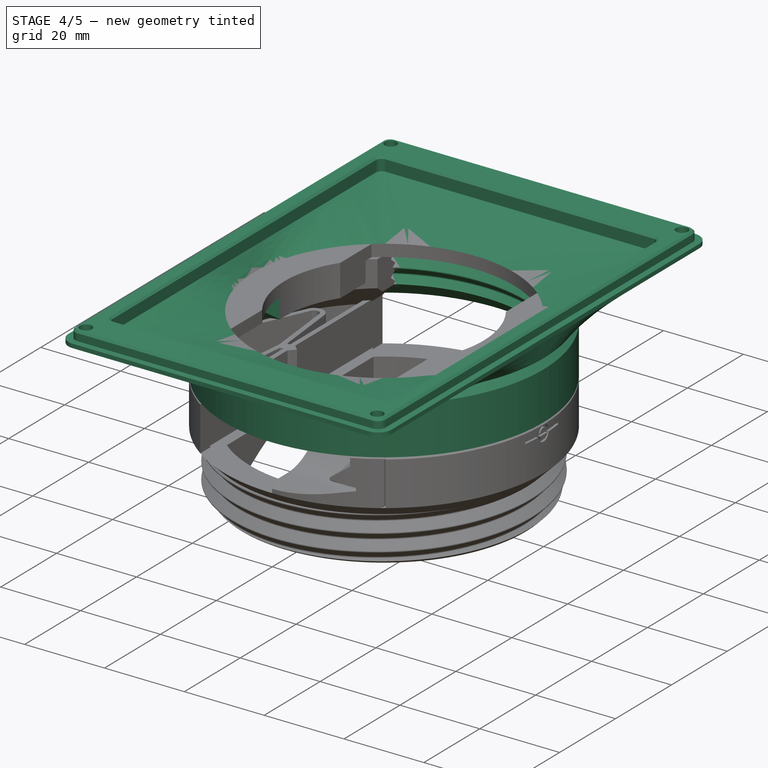
[diagram: stage 4 of 5 — iso view after this stage's code; geometry added in this stage tinted green]
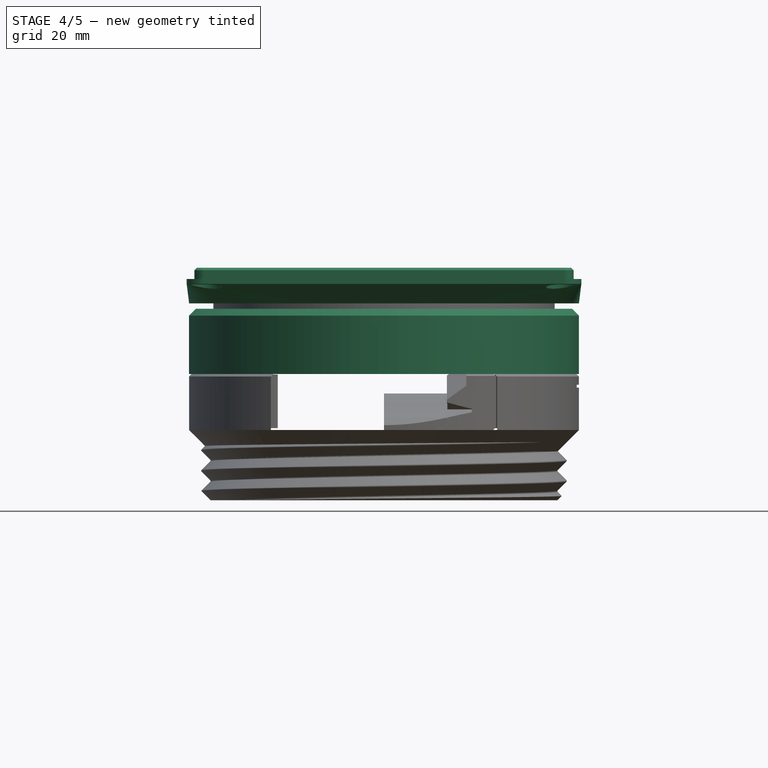
[diagram: stage 4 of 5 — front view after this stage's code; geometry added in this stage tinted green]
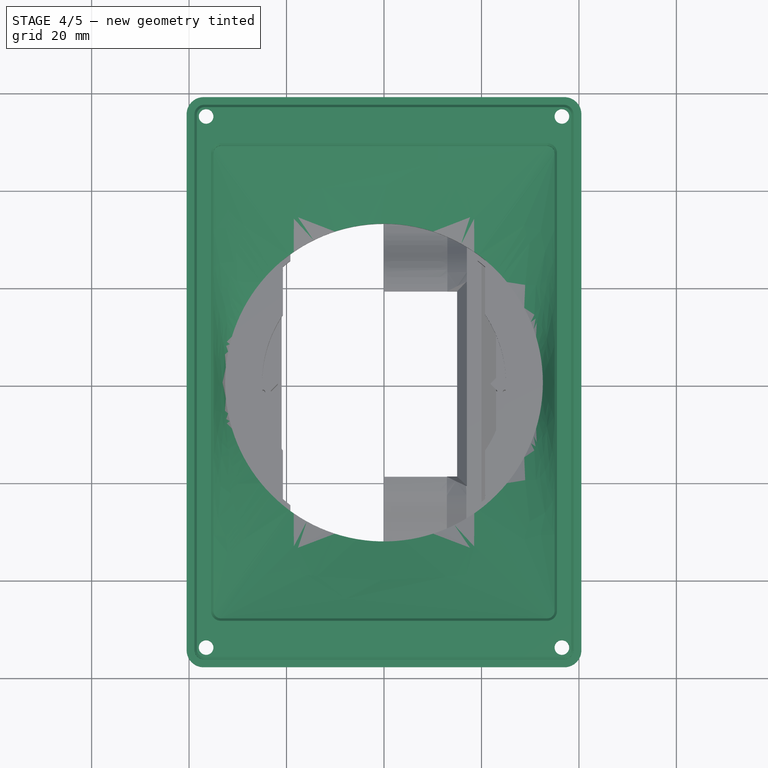
[diagram: stage 4 of 5 — top view after this stage's code; geometry added in this stage tinted green]
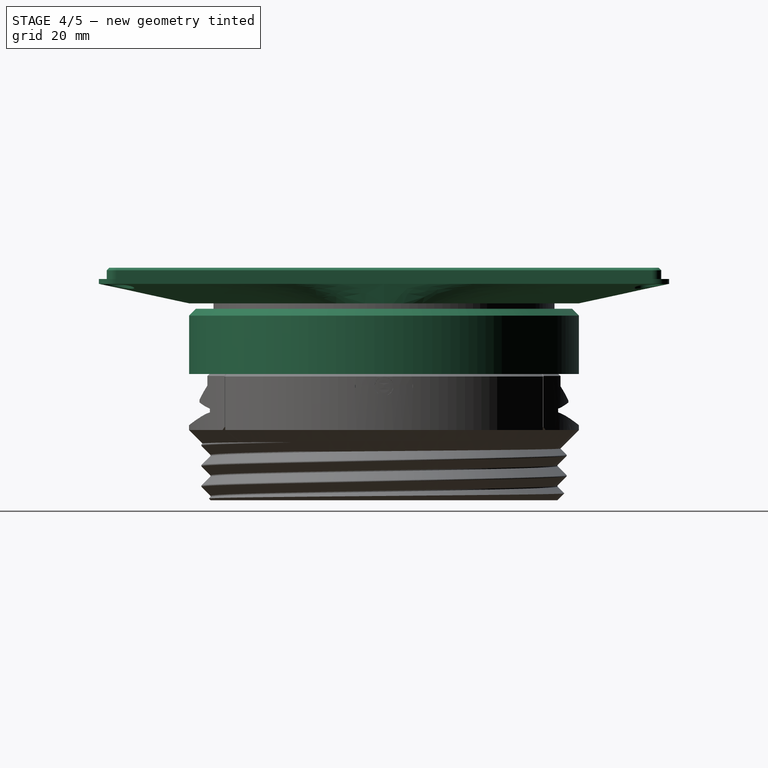
[diagram: stage 4 of 5 — right view after this stage's code; geometry added in this stage tinted green]
FEATURE [Sketcher::SketchObject] Sketch038
  ArcFitTolerance = 0
  AttachmentSupport = -> [XZ_Plane006]
  FullyConstrained = true
  MakeInternals = false
  MapMode = 5
  Placement = pos=(0,0,0) rot=(1,0,0;1.5708rad)
  expr: Constraints[12] = <<params>>.thread_major_r + <<params>>.tube_t / 2
  expr: Constraints[14] = <<params>>.thread_minor_r - <<params>>.tube_t / 2
  expr: Constraints[6] = <<params>>.thread_minor_r - <<params>>.tube_t
  expr: Constraints[7] = <<params>>.tube_h + <<params>>.stepup_wd_offset
  expr: Constraints[8] = <<params>>.film_holder_w / 2 - 3
  sketch-geometry (5):
    g0: LineSegment StartX=20 StartY=48 StartZ=0 EndX=33.6 EndY=33.6 EndZ=0
    g1: LineSegment StartX=33.6 StartY=33.6 StartZ=0 EndX=34.6 EndY=33.6 EndZ=0
    g2: LineSegment StartX=34.6 StartY=33.6 StartZ=0 EndX=34.6 EndY=43.6 EndZ=0
    g3: LineSegment StartX=20 StartY=48 StartZ=0 EndX=39 EndY=48 EndZ=0
    g4: LineSegment StartX=34.6 StartY=43.6 StartZ=0 EndX=39 EndY=48 EndZ=0
  constraints (15):
    c: Coincident(g1,g0)
    c: Horizontal(g1)
    c: Coincident(g2,g1)
    c: Vertical(g2)
    c: Coincident(g3,g0)
    c: Horizontal(g3)
    c: DistanceX(g-2,g0) = 33.6
    c: DistanceY(g-1,g0) = 48
    c: DistanceX(g-2,g0) = 20
    c: Coincident(g4,g2)
    c: Coincident(g3,g4)
    c: Angle(g3,g4) = 0.785398
    c: DistanceX(g-2,g3) = 39
    c: DistanceY(g-1,g0) = 33.6
    c: DistanceX(g-1,g1) = 34.6
FEATURE [PartDesign::Plane] DatumPlane005
  AttachmentOffset = pos=(0,0,48.4) rot=(0,0,1;0rad)
  AttachmentSupport = -> [XY_Plane006]
  Length = 95.9114
  MapMode = 5
  Placement = pos=(0,0,48.4) rot=(0,0,1;0rad)
  ResizeMode = 0
  Width = 95.992
  expr: .AttachmentOffset.Base.z = <<params>>.tube_h + <<params>>.stepup_wd_offset + 0.4
FEATURE [Sketcher::SketchObject] Sketch040
  ArcFitTolerance = 0
  AttachmentSupport = -> [DatumPlane005]
  FullyConstrained = true
  MakeInternals = false
  MapMode = 5
  Placement = pos=(0,0,48.4) rot=(0,0,1;0rad)
  expr: Constraints[15] = <<params>>.thread_minor_r - <<params>>.tube_t
  expr: Constraints[8] = <<params>>.film_holder_w - 4
  sketch-geometry (7):
    g0: LineSegment StartX=-21 StartY=-26.229 StartZ=0 EndX=-21 EndY=26.229 EndZ=0
    g1: LineSegment [constr] StartX=-21 StartY=26.229 StartZ=0 EndX=21 EndY=26.229 EndZ=0
    g2: LineSegment StartX=21 StartY=26.229 StartZ=0 EndX=21 EndY=-26.229 EndZ=0
    g3: LineSegment [constr] StartX=21 StartY=-26.229 StartZ=0 EndX=-21 EndY=-26.229 EndZ=0
    g4: GeomPoint [constr] X=0 Y=0 Z=0
    g5: ArcOfCircle CenterX=0 CenterY=0 CenterZ=0 NormalX=0 NormalY=0 NormalZ=1 AngleXU=0 Radius=33.6 StartAngle=0.895665 EndAngle=2.24593
    g6: ArcOfCircle CenterX=0 CenterY=0 CenterZ=0 NormalX=0 NormalY=0 NormalZ=1 AngleXU=0 Radius=33.6 StartAngle=4.03726 EndAngle=5.38752
  constraints (16):
    c: Coincident(g0,g1)
    c: Coincident(g1,g2)
    c: Coincident(g2,g3)
    c: Coincident(g3,g0)
    c: Vertical(g0)
    c: Vertical(g2)
    c: Symmetric(g1,g0,g4)
    c: Coincident(g4,g-1)
    c: Distance(g3) = 42
    c: Coincident(g5,g4)
    c: Coincident(g5,g0)
    c: Coincident(g5,g2)
    c: Coincident(g6,g5)
    c: Coincident(g6,g0)
    c: Coincident(g6,g2)
    c: Radius(g5) = 33.6
FEATURE [Sketcher::SketchObject] Sketch034
  ArcFitTolerance = 0
  AttachmentSupport = -> [XZ_Plane007]
  FullyConstrained = true
  MakeInternals = false
  MapMode = 5
  Placement = pos=(0,0,0) rot=(1,0,0;1.5708rad)
  expr: Constraints[10] = <<params>>.thread_major_r
  expr: Constraints[12] = <<params>>.tube_t
  expr: Constraints[13] = <<params>>.thread_minor_r
  expr: Constraints[14] = <<params>>.tube_h + Spreadsheet.film_holder_slot_h + <<params>>.stepup_wd_offset + 0.5
  expr: Constraints[15] = <<params>>.film_holder_upper_thread_h + 0.4
  sketch-geometry (9):
    g0: LineSegment StartX=35.6 StartY=72.9 StartZ=0 EndX=39.2929 EndY=72.9 EndZ=0
    g1: LineSegment StartX=40 StartY=72.1929 StartZ=0 EndX=40 EndY=59.5 EndZ=0
    g2: LineSegment StartX=38 StartY=71.9 StartZ=0 EndX=35.6 EndY=71.9 EndZ=0
    g3: LineSegment StartX=35.6 StartY=71.9 StartZ=0 EndX=35.6 EndY=72.9 EndZ=0
    g4: LineSegment StartX=40 StartY=59.5 StartZ=0 EndX=38 EndY=61.5 EndZ=0
    g5: LineSegment StartX=38 StartY=61.5 StartZ=0 EndX=38 EndY=71.9 EndZ=0
    g6: LineSegment [constr] StartX=39.2929 StartY=72.9 StartZ=0 EndX=40 EndY=72.9 EndZ=0
    g7: LineSegment [constr] StartX=40 StartY=72.9 StartZ=0 EndX=40 EndY=72.1929 EndZ=0
    g8: LineSegment StartX=39.2929 StartY=72.9 StartZ=0 EndX=40 EndY=72.1929 EndZ=0
  constraints (26):
    c: Coincident(g2,g3)
    c: Coincident(g3,g0)
    c: Horizontal(g0)
    c: Horizontal(g2)
    c: Vertical(g1)
    c: Coincident(g4,g5)
    c: Vertical(g5)
    c: Coincident(g4,g1)
    c: Coincident(g2,g5)
    c: Angle(g1,g4) = 0.785398
    c: DistanceX(g-2,g2) = 38
    c: Distance(g0,g2) = 1
    c: Distance(g2,g1) = 2
    c: DistanceX(g-2,g2) = 35.6
    c: DistanceY(g-1,g1) = 59.5
    c: Distance(g1,g2) = 12.4
    c: Coincident(g6,g7)
    c: Horizontal(g6)
    c: Vertical(g7)
    c: Coincident(g7,g1)
    c: Coincident(g6,g0)
    c: Coincident(g8,g0)
    c: Coincident(g8,g1)
    c: Angle(g7,g8) = 0.785398
    c: Distance(g8,g8) = 1
    c: Vertical(g3)
FEATURE [PartDesign::Revolution] Revolution006
  Angle = 360
  Angle2 = 60
  Axis = (0,2e-16,1)
  Base = (0,0,0)
  Placement = pos=(0,0,0) rot=(1,0,0;1.5708rad)
  Profile = -> Sketch034
  ReferenceAxis = -> Sketch034 [V_Axis]
  Reversed = true
  Suppressed = false
  Type = 0
FEATURE [Sketcher::SketchObject] Sketch035
  ArcFitTolerance = 0
  AttachmentSupport = -> [XZ_Plane007]
  ExternalGeometry = -> [Sketch034]
  FullyConstrained = true
  MakeInternals = false
  MapMode = 5
  Placement = pos=(0,0,0) rot=(1,0,0;1.5708rad)
  expr: Constraints[12] = <<params>>.thread_crest_r
  expr: Constraints[14] = <<params>>.thread_crest_angle
  expr: Constraints[17] = <<params>>.thread_major_r
  expr: Constraints[19] = <<params>>.thread_major_r - <<params>>.thread_d
  expr: Constraints[20] = <<params>>.thread_major_r + 1
  sketch-geometry (8):
    g0: LineSegment StartX=38 StartY=75.9 StartZ=0 EndX=39 EndY=75.9 EndZ=0
    g1: LineSegment StartX=39 StartY=75.9 StartZ=0 EndX=39 EndY=71.9 EndZ=0
    g2: LineSegment StartX=39 StartY=71.9 StartZ=0 EndX=38 EndY=71.9 EndZ=0
    g3: LineSegment [constr] StartX=38 StartY=71.9 StartZ=0 EndX=38 EndY=75.9 EndZ=0
    g4: LineSegment StartX=38 StartY=71.9 StartZ=0 EndX=36.1768 EndY=73.7232 EndZ=0
    g5: LineSegment StartX=36.1768 StartY=74.0768 StartZ=0 EndX=38 EndY=75.9 EndZ=0
    g6: ArcOfCircle CenterX=36.3536 CenterY=73.9 CenterZ=0 NormalX=0 NormalY=0 NormalZ=1 AngleXU=0 Radius=0.25 StartAngle=2.35619 EndAngle=3.92699
    g7: GeomPoint [constr] X=36 Y=73.9 Z=0
  constraints (21):
    c: Coincident(g0,g1)
    c: Coincident(g1,g2)
    c: Coincident(g3,g0)
    c: Horizontal(g0)
    c: Horizontal(g2)
    c: Vertical(g1)
    c: Vertical(g3)
    c: Coincident(g5,g0)
    c: PointOnObject(g7,g5)
    c: PointOnObject(g7,g4)
    c: Tangent(g5,g6) = 1.5708
    c: Tangent(g4,g6) = 1.5708
    c: Radius(g6) = 0.25
    c: Equal(g5,g4)
    c: Angle(g4,g5) = 1.5708
    c: Coincident(g3,g4)
    c: Coincident(g2,g3)
    c: DistanceX(g-1,g2) = 38
    c: Horizontal(g2,g-3)
    c: DistanceX(g-1,g7) = 36
    c: DistanceX(g-1,g0) = 39
FEATURE [PartDesign::AdditiveHelix] AdditiveHelix010
  Angle = 0
  Axis = (0,2e-16,1)
  Base = (0,0,0)
  BaseFeature = -> Revolution006
  Growth = 0
  HasBeenEdited = true
  Height = 15.3
  LeftHanded = false
  Mode = 0
  Outside = false
  Pitch = 4.2
  Placement = pos=(0,0,0) rot=(1,0,0;1.5708rad)
  Profile = -> Sketch035
  ReferenceAxis = -> Sketch035 [V_Axis]
  Reversed = true
  Suppressed = false
  Tolerance = 0.1
  Turns = 3.64286
  expr: Pitch = <<params>>.thread_pitch
FEATURE [Sketcher::SketchObject] Sketch036
  ArcFitTolerance = 0
  AttachmentSupport = -> [XZ_Plane007]
  ExternalGeometry = -> [Sketch034]
  FullyConstrained = true
  MakeInternals = false
  MapMode = 5
  Placement = pos=(0,0,0) rot=(1,0,0;1.5708rad)
  expr: Constraints[26] = <<params>>.thread_major_r + <<params>>.tube_t
  sketch-geometry (11):
    g0: LineSegment StartX=30.6 StartY=81.4858 StartZ=0 EndX=40 EndY=81.4858 EndZ=0
    g1: LineSegment StartX=40 StartY=81.4858 StartZ=0 EndX=40 EndY=71.4858 EndZ=0
    g2: LineSegment StartX=35.6 StartY=72.9 StartZ=0 EndX=30.6 EndY=67.9 EndZ=0
    g3: LineSegment StartX=30.6 StartY=67.9 StartZ=0 EndX=30.6 EndY=81.4858 EndZ=0
    g4: LineSegment StartX=35.6 StartY=72.9 StartZ=0 EndX=38.5858 EndY=72.9 EndZ=0
    g5: LineSegment StartX=32 StartY=67.5 StartZ=0 EndX=40 EndY=59.5 EndZ=0
    g6: LineSegment StartX=40 StartY=59.5 StartZ=0 EndX=40 EndY=54.5 EndZ=0
    g7: LineSegment StartX=40 StartY=54.5 StartZ=0 EndX=32 EndY=54.5 EndZ=0
    g8: LineSegment StartX=32 StartY=54.5 StartZ=0 EndX=32 EndY=67.5 EndZ=0
    g9: LineSegment StartX=38.5858 StartY=72.9 StartZ=0 EndX=40 EndY=71.4858 EndZ=0
    g10: GeomPoint [constr] X=40 Y=72.9 Z=0
  constraints (30):
    c: Coincident(g0,g1)
    c: Coincident(g2,g3)
    c: Coincident(g3,g0)
    c: Horizontal(g0)
    c: Vertical(g1)
    c: Vertical(g3)
    c: Angle(g2,g3) = 0.785398
    c: Coincident(g4,g2)
    c: Horizontal(g4)
    c: Distance(g2,g3) = 5
    c: Distance(g1) = 10
    c: Coincident(g5,g6)
    c: Coincident(g6,g7)
    c: Coincident(g7,g8)
    c: Coincident(g8,g5)
    c: Horizontal(g7)
    c: Vertical(g6)
    c: Vertical(g8)
    c: Angle(g8,g5) = 0.785398
    c: Distance(g7) = 8
    c: Distance(g6) = 5
    c: Coincident(g-4,g5)
    c: Coincident(g-3,g2)
    c: Coincident(g9,g4)
    c: Coincident(g1,g9)
    c: Angle(g1,g9) = 0.785398
    c: DistanceX(g-2,g1) = 40
    c: PointOnObject(g10,g1)
    c: Horizontal(g4,g10)
    c: Distance(g10,g9) = 1
FEATURE [PartDesign::Groove] Groove009
  Angle = 360
  Angle2 = 60
  Axis = (0,2e-16,1)
  Base = (0,0,0)
  BaseFeature = -> AdditiveHelix010
  Placement = pos=(0,0,0) rot=(1,0,0;1.5708rad)
  Profile = -> Sketch036
  ReferenceAxis = -> Sketch036 [V_Axis]
  Suppressed = false
  Type = 0
FEATURE [PartDesign::Chamfer] Chamfer001
  Angle = 45
  Base = -> PolarPattern003 [Edge33,Edge18,Edge55,Edge54]
  BaseFeature = -> PolarPattern003
  ChamferType = 0
  FlipDirection = false
  Placement = pos=(0,0,74) rot=(0,0,1;0rad)
  Refine = true
  Size = 4.9
  Size2 = 1
  SupportTransform = false
  Suppressed = false
  UseAllEdges = false
FEATURE [PartDesign::PolarPattern] PolarPattern002
  Angle = 360
  Axis = -> Z_Axis010
  BaseFeature = -> Chamfer001
  Mode = 0
  Occurrences = 2
  Offset = 120
  Originals = -> [Revolution012]
  Placement = pos=(0,0,74) rot=(0,0,1;0rad)
  Refine = true
  Suppressed = false
  TransformMode = 0
FEATURE [Sketcher::SketchObject] Sketch063
  ArcFitTolerance = 1e-06
  AttachmentSupport = -> [DatumPlane014]
  FullyConstrained = true
  MakeInternals = false
  MapMode = 5
  Placement = pos=(0,0,78) rot=(0,0,1;0rad)
  sketch-geometry (24):
    g0: LineSegment StartX=-35 StartY=47 StartZ=0 EndX=-35 EndY=-47 EndZ=0
    g1: LineSegment StartX=-33.5 StartY=-48.5 StartZ=0 EndX=33.5 EndY=-48.5 EndZ=0
    g2: LineSegment StartX=35 StartY=-47 StartZ=0 EndX=35 EndY=47 EndZ=0
    g3: LineSegment StartX=33.5 StartY=48.5 StartZ=0 EndX=-33.5 EndY=48.5 EndZ=0
    g4: LineSegment StartX=-40.5 StartY=55 StartZ=0 EndX=-40.5 EndY=-55 EndZ=0
    g5: LineSegment StartX=-37 StartY=-58.5 StartZ=0 EndX=37 EndY=-58.5 EndZ=0
    g6: LineSegment StartX=40.5 StartY=-55 StartZ=0 EndX=40.5 EndY=55 EndZ=0
    g7: LineSegment StartX=37 StartY=58.5 StartZ=0 EndX=-37 EndY=58.5 EndZ=0
    g8: ArcOfCircle CenterX=37 CenterY=-55 CenterZ=0 NormalX=0 NormalY=0 NormalZ=1 AngleXU=0 Radius=3.5 StartAngle=4.71239 EndAngle=6.28319
    g9: GeomPoint [constr] X=40.5 Y=-58.5 Z=0
    g10: ArcOfCircle CenterX=-37 CenterY=-55 CenterZ=0 NormalX=0 NormalY=0 NormalZ=1 AngleXU=0 Radius=3.5 StartAngle=3.14159 EndAngle=4.71239
    g11: GeomPoint [constr] X=-40.5 Y=-58.5 Z=0
    g12: ArcOfCircle CenterX=-37 CenterY=55 CenterZ=0 NormalX=0 NormalY=0 NormalZ=1 AngleXU=0 Radius=3.5 StartAngle=1.5708 EndAngle=3.14159
    g13: GeomPoint [constr] X=-40.5 Y=58.5 Z=0
    g14: ArcOfCircle CenterX=37 CenterY=55 CenterZ=0 NormalX=0 NormalY=0 NormalZ=1 AngleXU=0 Radius=3.5 StartAngle=4e-16 EndAngle=1.5708
    g15: GeomPoint [constr] X=40.5 Y=58.5 Z=0
    g16: ArcOfCircle CenterX=33.5 CenterY=47 CenterZ=0 NormalX=0 NormalY=0 NormalZ=1 AngleXU=0 Radius=1.5 StartAngle=-9e-16 EndAngle=1.5708
    g17: GeomPoint [constr] X=35 Y=48.5 Z=0
    g18: ArcOfCircle CenterX=-33.5 CenterY=47 CenterZ=0 NormalX=0 NormalY=0 NormalZ=1 AngleXU=0 Radius=1.5 StartAngle=1.5708 EndAngle=3.14159
    g19: GeomPoint [constr] X=-35 Y=48.5 Z=0
    g20: ArcOfCircle CenterX=-33.5 CenterY=-47 CenterZ=0 NormalX=0 NormalY=0 NormalZ=1 AngleXU=0 Radius=1.5 StartAngle=3.14159 EndAngle=4.71239
    g21: GeomPoint [constr] X=-35 Y=-48.5 Z=0
    g22: ArcOfCircle CenterX=33.5 CenterY=-47 CenterZ=0 NormalX=0 NormalY=0 NormalZ=1 AngleXU=0 Radius=1.5 StartAngle=4.71239 EndAngle=6.28319
    g23: GeomPoint [constr] X=35 Y=-48.5 Z=0
  constraints (54):
    c: Vertical(g0)
    c: Vertical(g2)
    c: Horizontal(g1)
    c: Horizontal(g3)
    c: Symmetric(g23,g19,g-1)
    c: Vertical(g4)
    c: Vertical(g6)
    c: Horizontal(g5)
    c: Horizontal(g7)
    c: Symmetric(g9,g13,g-1)
    c: DistanceX(g21,g23) = 70
    c: DistanceX(g11,g9) = 81
    c: DistanceY(g9,g15) = 117
    c: DistanceY(g23,g17) = 97
    c: PointOnObject(g9,g5)
    c: PointOnObject(g9,g6)
    c: Tangent(g5,g8) = -1.5708
    c: Tangent(g6,g8) = -1.5708
    c: PointOnObject(g11,g4)
    c: PointOnObject(g11,g5)
    c: Tangent(g4,g10) = -1.5708
    c: Tangent(g5,g10) = -1.5708
    c: PointOnObject(g13,g4)
    c: PointOnObject(g13,g7)
    c: Tangent(g4,g12) = -1.5708
    c: Tangent(g7,g12) = -1.5708
    c: PointOnObject(g15,g6)
    c: PointOnObject(g15,g7)
    c: Tangent(g6,g14) = -1.5708
    c: Tangent(g7,g14) = -1.5708
    c: Radius(g14) = 3.5
    c: Equal(g12,g14)
    c: Equal(g14,g8)
    c: Equal(g14,g10)
    c: PointOnObject(g17,g2)
    c: PointOnObject(g17,g3)
    c: Tangent(g2,g16) = -1.5708
    c: Tangent(g3,g16) = -1.5708
    c: PointOnObject(g19,g0)
    c: PointOnObject(g19,g3)
    c: Tangent(g0,g18) = -1.5708
    c: Tangent(g3,g18) = -1.5708
    c: PointOnObject(g21,g0)
    c: PointOnObject(g21,g1)
    c: Tangent(g0,g20) = -1.5708
    c: Tangent(g1,g20) = -1.5708
    c: PointOnObject(g23,g1)
    c: PointOnObject(g23,g2)
    c: Tangent(g1,g22) = -1.5708
    c: Tangent(g2,g22) = -1.5708
    c: Radius(g16) = 1.5
    c: Equal(g16,g18)
    c: Equal(g16,g22)
    c: Equal(g16,g20)
FEATURE [PartDesign::AdditiveLoft] AdditiveLoft001
  BaseFeature = -> PolarPattern002
  Closed = false
  Placement = pos=(0,0,74) rot=(0,0,1;0rad)
  Profile = -> Sketch061
  Refine = true
  Ruled = false
  Sections = -> [Sketch063]
  Suppressed = false
FEATURE [Sketcher::SketchObject] Sketch069
  ArcFitTolerance = 1e-06
  AttachmentSupport = -> [DatumPlane014]
  FullyConstrained = true
  MakeInternals = false
  MapMode = 5
  Placement = pos=(0,0,78) rot=(0,0,1;0rad)
  sketch-geometry (16):
    g0: LineSegment StartX=-38.9 StartY=54.9 StartZ=0 EndX=-38.9 EndY=-54.9 EndZ=0
    g1: LineSegment StartX=-36.9 StartY=-56.9 StartZ=0 EndX=36.9 EndY=-56.9 EndZ=0
    g2: LineSegment StartX=38.9 StartY=-54.9 StartZ=0 EndX=38.9 EndY=54.9 EndZ=0
    g3: LineSegment StartX=36.9 StartY=56.9 StartZ=0 EndX=-36.9 EndY=56.9 EndZ=0
    g4: ArcOfCircle CenterX=36.9 CenterY=-54.9 CenterZ=0 NormalX=0 NormalY=0 NormalZ=1 AngleXU=0 Radius=2 StartAngle=4.71239 EndAngle=6.28319
    g5: GeomPoint [constr] X=38.9 Y=-56.9 Z=0
    g6: ArcOfCircle CenterX=-36.9 CenterY=-54.9 CenterZ=0 NormalX=0 NormalY=0 NormalZ=1 AngleXU=0 Radius=2 StartAngle=3.14159 EndAngle=4.71239
    g7: GeomPoint [constr] X=-38.9 Y=-56.9 Z=0
    g8: ArcOfCircle CenterX=-36.9 CenterY=54.9 CenterZ=0 NormalX=0 NormalY=0 NormalZ=1 AngleXU=0 Radius=2 StartAngle=1.5708 EndAngle=3.14159
    g9: GeomPoint [constr] X=-38.9 Y=56.9 Z=0
    g10: ArcOfCircle CenterX=36.9 CenterY=54.9 CenterZ=0 NormalX=0 NormalY=0 NormalZ=1 AngleXU=0 Radius=2 StartAngle=-1.8e-15 EndAngle=1.5708
    g11: GeomPoint [constr] X=38.9 Y=56.9 Z=0
    g12: LineSegment StartX=-45 StartY=62.5 StartZ=0 EndX=-45 EndY=-62.5 EndZ=0
    g13: LineSegment StartX=-45 StartY=-62.5 StartZ=0 EndX=45 EndY=-62.5 EndZ=0
    g14: LineSegment StartX=45 StartY=-62.5 StartZ=0 EndX=45 EndY=62.5 EndZ=0
    g15: LineSegment StartX=45 StartY=62.5 StartZ=0 EndX=-45 EndY=62.5 EndZ=0
  constraints (38):
    c: Vertical(g0)
    c: Vertical(g2)
    c: Horizontal(g1)
    c: Horizontal(g3)
    c: Symmetric(g5,g9,g-1)
    c: DistanceX(g7,g5) = 77.8
    c: DistanceY(g5,g11) = 113.8
    c: PointOnObject(g5,g1)
    c: PointOnObject(g5,g2)
    c: Tangent(g1,g4) = -1.5708
    c: Tangent(g2,g4) = -1.5708
    c: PointOnObject(g7,g0)
    c: PointOnObject(g7,g1)
    c: Tangent(g0,g6) = -1.5708
    c: Tangent(g1,g6) = -1.5708
    c: PointOnObject(g9,g0)
    c: PointOnObject(g9,g3)
    c: Tangent(g0,g8) = -1.5708
    c: Tangent(g3,g8) = -1.5708
    c: PointOnObject(g11,g2)
    c: PointOnObject(g11,g3)
    c: Tangent(g2,g10) = -1.5708
    c: Tangent(g3,g10) = -1.5708
    c: Equal(g10,g4)
    c: Equal(g10,g8)
    c: Equal(g10,g6)
    c: Radius(g10) = 2
    c: Coincident(g12,g13)
    c: Coincident(g13,g14)
    c: Coincident(g14,g15)
    c: Coincident(g15,g12)
    c: Vertical(g12)
    c: Vertical(g14)
    c: Horizontal(g13)
    c: Horizontal(g15)
    c: Symmetric(g13,g12,g-1)
    c: DistanceY(g14,g14) = 125
    c: DistanceX(g13,g13) = 90
FEATURE [PartDesign::Pad] Pad009
  BaseFeature = -> AdditiveLoft001
  Direction = (0,0,1)
  Length = 3.3
  Length2 = 10
  Placement = pos=(0,0,74) rot=(0,0,1;0rad)
  Profile = -> Sketch063
  ReferenceAxis = -> Sketch063 [N_Axis]
  Refine = true
  Suppressed = false
  Type = 0
FEATURE [PartDesign::Pocket] Pocket012
  BaseFeature = -> Pad009
  Direction = (0,0,-1)
  Length = 10
  Length2 = -1
  Placement = pos=(0,0,74) rot=(0,0,1;0rad)
  Profile = -> Sketch069
  ReferenceAxis = -> Sketch069 [N_Axis]
  Refine = true
  Reversed = true
  Suppressed = false
  Type = 4
FEATURE [Sketcher::SketchObject] Sketch070
  ArcFitTolerance = 1e-06
  AttachmentSupport = -> [DatumPlane014]
  FullyConstrained = true
  MakeInternals = false
  MapMode = 5
  Placement = pos=(0,0,78) rot=(0,0,1;0rad)
  sketch-geometry (8):
    g0: LineSegment [constr] StartX=-36.5 StartY=54.5 StartZ=0 EndX=-36.5 EndY=-54.5 EndZ=0
    g1: LineSegment [constr] StartX=-36.5 StartY=-54.5 StartZ=0 EndX=36.5 EndY=-54.5 EndZ=0
    g2: LineSegment [constr] StartX=36.5 StartY=-54.5 StartZ=0 EndX=36.5 EndY=54.5 EndZ=0
    g3: LineSegment [constr] StartX=36.5 StartY=54.5 StartZ=0 EndX=-36.5 EndY=54.5 EndZ=0
    g4: Circle CenterX=36.5 CenterY=54.5 CenterZ=0 NormalX=0 NormalY=0 NormalZ=1 AngleXU=0 Radius=1.5
    g5: Circle CenterX=-36.5 CenterY=54.5 CenterZ=0 NormalX=0 NormalY=0 NormalZ=1 AngleXU=0 Radius=1.5
    g6: Circle CenterX=36.5 CenterY=-54.5 CenterZ=0 NormalX=0 NormalY=0 NormalZ=1 AngleXU=0 Radius=1.5
    g7: Circle CenterX=-36.5 CenterY=-54.5 CenterZ=0 NormalX=0 NormalY=0 NormalZ=1 AngleXU=0 Radius=1.5
  constraints (19):
    c: Coincident(g0,g1)
    c: Coincident(g1,g2)
    c: Coincident(g2,g3)
    c: Coincident(g3,g0)
    c: Vertical(g0)
    c: Vertical(g2)
    c: Horizontal(g1)
    c: Horizontal(g3)
    c: Symmetric(g1,g0,g-1)
    c: Coincident(g4,g2)
    c: Coincident(g5,g0)
    c: Coincident(g6,g1)
    c: Coincident(g7,g0)
    c: Equal(g6,g7)
    c: Equal(g6,g4)
    c: Equal(g6,g5)
    c: DistanceY(g2,g2) = 109
    c: DistanceX(g1,g1) = 73
    c: Diameter(g6) = 3
FEATURE [PartDesign::Pocket] Pocket013
  BaseFeature = -> Pocket012
  Direction = (0,0,-1)
  Length = 5
  Length2 = 5
  Midplane = true
  Placement = pos=(0,0,74) rot=(0,0,1;0rad)
  Profile = -> Sketch070
  ReferenceAxis = -> Sketch070 [N_Axis]
  Refine = true
  Suppressed = false
  Type = 1
FEATURE [Sketcher::SketchObject] Sketch071
  ArcFitTolerance = 1e-06
  AttachmentSupport = -> [DatumPlane014]
  FullyConstrained = true
  MakeInternals = false
  MapMode = 5
  Placement = pos=(0,0,78) rot=(0,0,1;0rad)
  sketch-geometry (8):
    g0: LineSegment [constr] StartX=-36.5 StartY=54.5 StartZ=0 EndX=-36.5 EndY=-54.5 EndZ=0
    g1: LineSegment [constr] StartX=-36.5 StartY=-54.5 StartZ=0 EndX=36.5 EndY=-54.5 EndZ=0
    g2: LineSegment [constr] StartX=36.5 StartY=-54.5 StartZ=0 EndX=36.5 EndY=54.5 EndZ=0
    g3: LineSegment [constr] StartX=36.5 StartY=54.5 StartZ=0 EndX=-36.5 EndY=54.5 EndZ=0
    g4: Circle CenterX=36.5 CenterY=-54.5 CenterZ=0 NormalX=0 NormalY=0 NormalZ=1 AngleXU=0 Radius=3.25
    g5: Circle CenterX=-36.5 CenterY=-54.5 CenterZ=0 NormalX=0 NormalY=0 NormalZ=1 AngleXU=0 Radius=3.25
    g6: Circle CenterX=-36.5 CenterY=54.5 CenterZ=0 NormalX=0 NormalY=0 NormalZ=1 AngleXU=0 Radius=3.25
    g7: Circle CenterX=36.5 CenterY=54.5 CenterZ=0 NormalX=0 NormalY=0 NormalZ=1 AngleXU=0 Radius=3.25
  constraints (19):
    c: Coincident(g0,g1)
    c: Coincident(g1,g2)
    c: Coincident(g2,g3)
    c: Coincident(g3,g0)
    c: Vertical(g0)
    c: Vertical(g2)
    c: Horizontal(g1)
    c: Horizontal(g3)
    c: Symmetric(g1,g0,g-1)
    c: DistanceY(g2,g2) = 109
    c: DistanceX(g3,g3) = 73
    c: Coincident(g4,g1)
    c: Coincident(g5,g0)
    c: Coincident(g6,g0)
    c: Coincident(g7,g2)
    c: Equal(g7,g4)
    c: Equal(g7,g6)
    c: Equal(g7,g5)
    c: Diameter(g7) = 6.5
FEATURE [PartDesign::Pocket] Pocket014
  BaseFeature = -> Pocket013
  Direction = (0,0,-1)
  Length = 5
  Length2 = -0.1
  Placement = pos=(0,0,74) rot=(0,0,1;0rad)
  Profile = -> Sketch071
  ReferenceAxis = -> Sketch071 [N_Axis]
  Refine = true
  Suppressed = false
  Type = 1
FEATURE [PartDesign::Chamfer] Chamfer002
  Angle = 45
  Base = -> Pocket014 [Edge245,Edge243,Edge247,Edge249]
  BaseFeature = -> Pocket014
  ChamferType = 0
  FlipDirection = false
  Placement = pos=(0,0,74) rot=(0,0,1;0rad)
  Refine = true
  Size = 1.7
  Size2 = 1
  SupportTransform = false
  Suppressed = false
  UseAllEdges = false
FEATURE [PartDesign::Chamfer] Chamfer003
  Angle = 45
  Base = -> Chamfer002 [Edge12,Edge20]
  BaseFeature = -> Chamfer002
  ChamferType = 0
  FlipDirection = false
  Placement = pos=(0,0,74) rot=(0,0,1;0rad)
  Refine = true
  Size = 0.5
  Size2 = 1
  SupportTransform = false
  Suppressed = false
  UseAllEdges = false
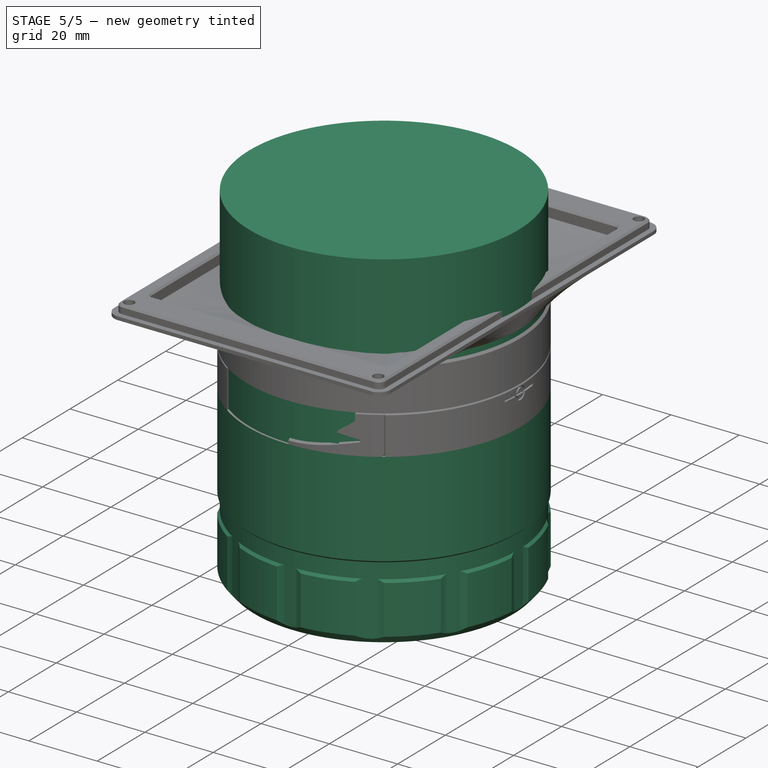
[diagram: stage 5 of 5 — iso view after this stage's code; geometry added in this stage tinted green]
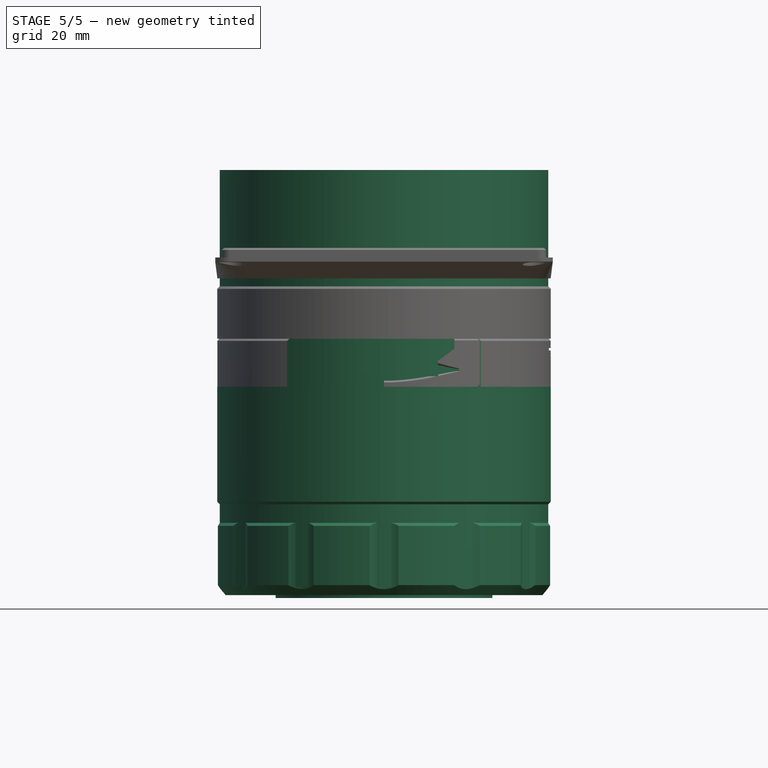
[diagram: stage 5 of 5 — front view after this stage's code; geometry added in this stage tinted green]
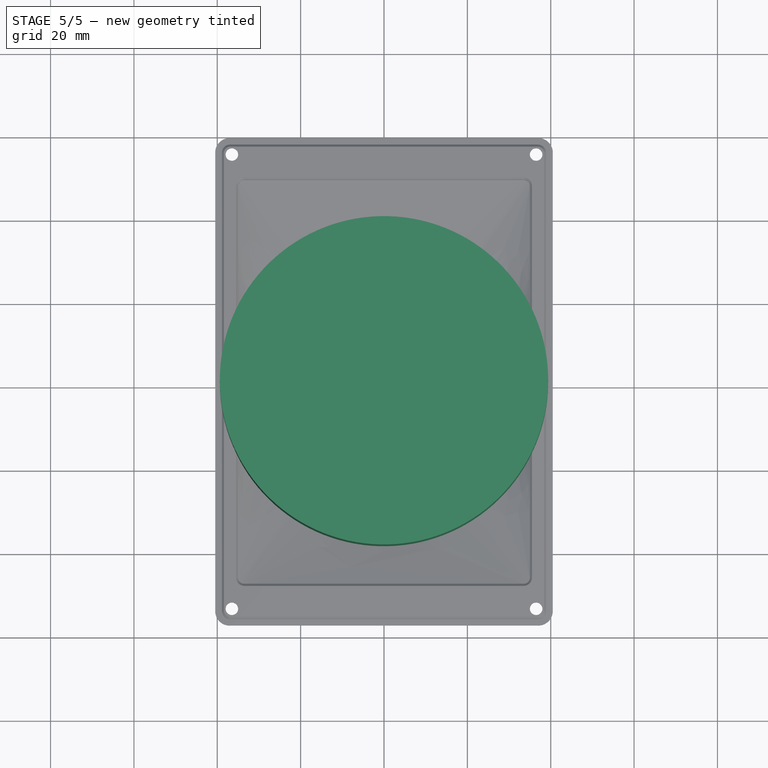
[diagram: stage 5 of 5 — top view after this stage's code; geometry added in this stage tinted green]
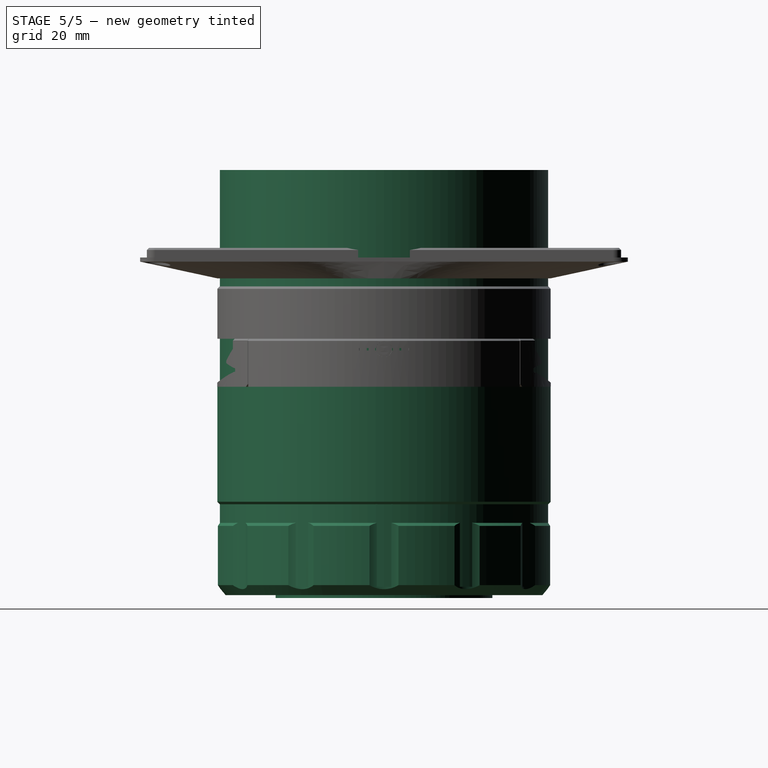
[diagram: stage 5 of 5 — right view after this stage's code; geometry added in this stage tinted green]
FEATURE [Spreadsheet::Sheet] Spreadsheet  label="params"
  cells = A1='Filter Thread to Film distance (Effective Working Distance); B1(effective_wd)=57; C1='Key parameter to control the distance between the step up ring to the film; A2='Step-Up Ring Working Distance Offset; B2(stepup_wd_offset)=1; A3='Holder Working Distance Offset; B3(holder_wd_offset)=9; A4='Tube Height; B4(tube_h)==effective_wd - stepup_wd_offset - holder_wd_offset; A5='Step-Up Ring outer diameter; B5(stepup_slot_d)=65.5; C5='External constraint diameter to hold the step-up ring in place; A6='Step-Up Ring inner diameter; B6(stepup_inner_slot_d)=61; C6='Internal constraint diameter to hold the step-up ring in place; A7='Thread Depth; B7(thread_d)=2; A8='Thread Crest Round Radius; B8(thread_crest_r)=0.25; A9='Thread Crest Angle; B9(thread_crest_angle)=90; A10='Thread Pitch; B10(thread_pitch)==tan(thread_crest_angle / 2) * thread_d * 2 + 0.2; A11='Thread Pitch Radius; B11(thread_pitch_r)==<<config>>.thread_pitch_r; C11='Key parameter to control the radius of the tube (default 34); A12='Thread Clearance Distance; B12(thread_clearance)=0.4; A13='Thread Minor Radius; B13(thread_minor_r)==thread_pitch_r - thread_d / 2 - thread_clearance / 2; A14='Thread Major Radius; B14(thread_major_r)==thread_pitch_r + thread_d / 2 + thread_clearance / 2; A15='Thread Base Height; B15(thread_base_h)=0; A16='Ring Height; B16(ring_h)=17; A17='Ring Thickness; B17(ring_t)=2; A18='Lip Depth; B18(lip_d)=5; A19='Lip Thickness; B19(lip_t)=2; A20='Tube Thickness; B20(tube_t)=2; A21='Top Thread Height; B21(top_thread_h)==thread_pitch * 2; A22='Film Holder Width; B22(film_holder_w)==<<config>>.film_holder_w; C22='Key parameter to control the slot of the film holder cartridges; A23='Film Holder Height; B23(film_holder_h)=14; A24='Film Holder Groove Depth; B24(film_holder_groove_d)=3; A25='Film Holder Clearance Slot Height; B25(film_holder_slot_h)==film_holder_h - film_holder_groove_d; A26='Film Holder Height Offset; B26(film_holder_height_offset)=1; A27='Film Holder Upper Thread Height; B27(film_holder_upper_thread_h)=12; A28='Engraving Depth; B28(engraving_d)=0.6; A29='Film Holder Pin X; B29(film_holder_pin_x)==film_holder_l / 2 - 5; A30='Film Holder S-Curve Height; B30(film_holder_scurve_h)=5; A31='Bayonet Base Height; B31(bayonet_base_h)==tube_h + stepup_wd_offset + film_holder_slot_h + film_holder_upper_thread_h - 5; A32='Bayonet Minor Radius; B32(bayonet_minor_r)==thread_minor_r - 4; A33='Bayonet Pin Slot Width Angle; B33(bayonet_pin_slot_a)==bayonet_pin_a + 3; A34='Bayonet Range Angle; B34(bayonet_range_a)=96; A35='Bayonet Pin Width Angle; B35(bayonet_pin_a)=22; A36='Light Offset Distance; B36(light_offset_d)=12; A37='Film Holder Length; B37(film_holder_l)==(thread_major_r + tube_t) * 2
FEATURE [Sketcher::SketchObject] Sketch
  ArcFitTolerance = 0
  AttachmentSupport = -> [XZ_Plane001]
  FullyConstrained = true
  MakeInternals = false
  MapMode = 5
  Placement = pos=(0,0,0) rot=(1,0,0;1.5708rad)
  expr: Constraints[20] = 64.6 / 2
  sketch-geometry (8):
    g0: LineSegment StartX=30.7 StartY=4 StartZ=0 EndX=32.3 EndY=4 EndZ=0
    g1: LineSegment StartX=32.3 StartY=4 StartZ=0 EndX=32.3 EndY=0 EndZ=0
    g2: LineSegment StartX=32.3 StartY=0 StartZ=0 EndX=26 EndY=0 EndZ=0
    g3: LineSegment StartX=26 StartY=0 StartZ=0 EndX=26 EndY=-2.7 EndZ=0
    g4: LineSegment StartX=26 StartY=-2.7 StartZ=0 EndX=24.9 EndY=-2.7 EndZ=0
    g5: LineSegment StartX=24.9 StartY=-2.7 StartZ=0 EndX=24.9 EndY=1.1 EndZ=0
    g6: LineSegment StartX=24.9 StartY=1.1 StartZ=0 EndX=30.7 EndY=1.1 EndZ=0
    g7: LineSegment StartX=30.7 StartY=1.1 StartZ=0 EndX=30.7 EndY=4 EndZ=0
  constraints (24):
    c: Horizontal(g0)
    c: Coincident(g1,g0)
    c: Vertical(g1)
    c: Coincident(g2,g1)
    c: Horizontal(g2)
    c: Coincident(g3,g2)
    c: Vertical(g3)
    c: Coincident(g4,g3)
    c: Horizontal(g4)
    c: Coincident(g5,g4)
    c: Vertical(g5)
    c: Coincident(g6,g5)
    c: Horizontal(g6)
    c: Coincident(g7,g6)
    c: Coincident(g7,g0)
    c: Vertical(g7)
    c: Distance(g1) = 4
    c: Distance(g5) = 3.8
    c: Distance(g4) = 1.1
    c: DistanceY(g3,g0) = 6.7
    c: Distance(g-1,g1) = 32.3
    c: Distance(g0) = 1.6
    c: PointOnObject(g-1,g2)
    c: Distance(g-1,g3) = 26
FEATURE [PartDesign::Revolution] Revolution
  Angle = 360
  Angle2 = 60
  Axis = (0,2e-16,1)
  Base = (0,0,0)
  Placement = pos=(0,0,0) rot=(1,0,0;1.5708rad)
  Profile = -> Sketch
  ReferenceAxis = -> Sketch [V_Axis]
  Reversed = true
  Suppressed = false
  Type = 0
FEATURE [PartDesign::Body] Body  label="Step Up Ring"
  AllowCompound = false
  Group = -> [Sketch,Revolution]
  Origin = -> Origin001
  Tip = -> Revolution
FEATURE [Sketcher::SketchObject] Sketch001
  ArcFitTolerance = 0
  AttachmentSupport = -> [XZ_Plane002]
  FullyConstrained = true
  MakeInternals = false
  MapMode = 5
  Placement = pos=(0,0,0) rot=(1,0,0;1.5708rad)
  expr: Constraints[15] = Spreadsheet.stepup_slot_d / 2
  expr: Constraints[17] = Spreadsheet.ring_t
  expr: Constraints[23] = <<params>>.ring_h
  expr: Constraints[25] = <<params>>.lip_t
  expr: Constraints[26] = Spreadsheet.thread_major_r
  expr: Constraints[6] = <<params>>.lip_d
  sketch-geometry (9):
    g0: LineSegment StartX=27.75 StartY=0 StartZ=0 EndX=32.75 EndY=0 EndZ=0
    g1: LineSegment StartX=40 StartY=15 StartZ=0 EndX=40 EndY=0 EndZ=0
    g2: LineSegment StartX=38 StartY=-2 StartZ=0 EndX=29.4282 EndY=-2 EndZ=0
    g3: LineSegment StartX=29.4282 StartY=-2 StartZ=0 EndX=27.75 EndY=0 EndZ=0
    g4: LineSegment StartX=38 StartY=17 StartZ=0 EndX=40 EndY=15 EndZ=0
    g5: LineSegment StartX=32.75 StartY=0 StartZ=0 EndX=32.75 EndY=2 EndZ=0
    g6: LineSegment StartX=32.75 StartY=2 StartZ=0 EndX=38 EndY=2 EndZ=0
    g7: LineSegment StartX=38 StartY=2 StartZ=0 EndX=38 EndY=17 EndZ=0
    g8: LineSegment StartX=40 StartY=-8e-16 StartZ=0 EndX=38 EndY=-2 EndZ=0
  constraints (27):
    c: Coincident(g2,g3)
    c: Coincident(g3,g0)
    c: Horizontal(g0)
    c: Horizontal(g2)
    c: Vertical(g1)
    c: Coincident(g4,g1)
    c: Distance(g0) = 5
    c: PointOnObject(g-1,g0)
    c: Coincident(g5,g0)
    c: Vertical(g5)
    c: Coincident(g6,g5)
    c: Horizontal(g6)
    c: Coincident(g7,g6)
    c: Coincident(g7,g4)
    c: Vertical(g7)
    c: Distance(g-1,g5) = 32.75
    c: Distance(g5) = 2
    c: Distance(g1,g7) = 2
    c: Coincident(g8,g1)
    c: Coincident(g8,g2)
    c: Angle(g-1,g8) = 0.785398
    c: Angle(g7,g4) = 0.785398
    c: DistanceX(g6,g2) = 0
    c: DistanceY(g-1,g4) = 17
    c: Angle(g3,g0) = 0.872665
    c: Distance(g0,g2) = 2
    c: Distance(g-1,g7) = 38
FEATURE [PartDesign::Revolution] Revolution001
  Angle = 360
  Angle2 = 60
  Axis = (0,2e-16,1)
  Base = (0,0,0)
  Placement = pos=(0,0,0) rot=(1,0,0;1.5708rad)
  Profile = -> Sketch001
  ReferenceAxis = -> Sketch001 [V_Axis]
  Reversed = true
  Suppressed = false
  Type = 0
FEATURE [Sketcher::SketchObject] Sketch002
  ArcFitTolerance = 0
  AttachmentSupport = -> [XY_Plane002]
  FullyConstrained = true
  MakeInternals = false
  MapMode = 5
  expr: Constraints[9] = <<params>>.thread_major_r + <<params>>.tube_t
  sketch-geometry (6):
    g0: ArcOfCircle CenterX=0 CenterY=0 CenterZ=0 NormalX=0 NormalY=0 NormalZ=1 AngleXU=0 Radius=40 StartAngle=6.19592 EndAngle=6.37045
    g1: LineSegment [constr] StartX=0 StartY=0 StartZ=0 EndX=39.8478 EndY=-3.48623 EndZ=0
    g2: LineSegment [constr] StartX=39.8478 StartY=3.48623 StartZ=0 EndX=0 EndY=-4e-16 EndZ=0
    g3: ArcOfCircle CenterX=48.9049 CenterY=0 CenterZ=0 NormalX=0 NormalY=0 NormalZ=1 AngleXU=0 Radius=9.70489 StartAngle=2.77416 EndAngle=3.50903
    g4: GeomPoint [constr] X=39.2 Y=0 Z=0
    g5: GeomPoint [constr] X=40 Y=0 Z=0
  constraints (15):
    c: Coincident(g0,g-1)
    c: Coincident(g1,g0)
    c: Coincident(g1,g0)
    c: Coincident(g2,g0)
    c: Coincident(g2,g0)
    c: PointOnObject(g3,g-1)
    c: Coincident(g3,g0)
    c: Coincident(g3,g0)
    c: Angle(g1,g2) = 0.174533
    c: Radius(g0) = 40
    c: PointOnObject(g4,g3)
    c: PointOnObject(g4,g-1)
    c: PointOnObject(g5,g0)
    c: PointOnObject(g5,g-1)
    c: Distance(g4,g5) = 0.8
FEATURE [PartDesign::Pocket] Pocket
  BaseFeature = -> Revolution001
  Direction = (0,0,-1)
  Length = 5
  Length2 = 12
  Midplane = true
  Placement = pos=(0,0,0) rot=(1,0,0;1.5708rad)
  Profile = -> Sketch002
  ReferenceAxis = -> Sketch002 [N_Axis]
  Suppressed = false
  Type = 1
FEATURE [PartDesign::PolarPattern] PolarPattern
  Angle = 360
  Axis = -> Sketch002 [N_Axis]
  BaseFeature = -> Pocket
  Mode = 0
  Occurrences = 12
  Offset = 120
  Originals = -> [Pocket]
  Placement = pos=(0,0,0) rot=(1,0,0;1.5708rad)
  Suppressed = false
  TransformMode = 0
FEATURE [Sketcher::SketchObject] Sketch003
  ArcFitTolerance = 0
  AttachmentOffset = pos=(0,0,0) rot=(0,1,0;0.017453rad)
  AttachmentSupport = -> [XZ_Plane002]
  FullyConstrained = true
  MakeInternals = false
  MapMode = 5
  Placement = pos=(0,0,0) rot=(0.999924,0.008726,0.008726;1.57087rad)
  expr: Constraints[11] = Spreadsheet.thread_major_r
  expr: Constraints[17] = <<params>>.thread_major_r - <<params>>.thread_d
  expr: Constraints[18] = <<params>>.thread_crest_r
  expr: Constraints[20] = <<params>>.thread_major_r + 1
  sketch-geometry (8):
    g0: LineSegment StartX=38 StartY=1 StartZ=0 EndX=39 EndY=1 EndZ=0
    g1: LineSegment StartX=39 StartY=1 StartZ=0 EndX=39 EndY=-3 EndZ=0
    g2: LineSegment StartX=39 StartY=-3 StartZ=0 EndX=38 EndY=-3 EndZ=0
    g3: LineSegment [constr] StartX=38 StartY=-3 StartZ=0 EndX=38 EndY=1 EndZ=0
    g4: LineSegment StartX=38 StartY=-3 StartZ=0 EndX=36.1768 EndY=-1.17678 EndZ=0
    g5: LineSegment StartX=36.1768 StartY=-0.823223 StartZ=0 EndX=38 EndY=1 EndZ=0
    g6: ArcOfCircle CenterX=36.3536 CenterY=-1 CenterZ=0 NormalX=0 NormalY=0 NormalZ=1 AngleXU=0 Radius=0.25 StartAngle=2.35619 EndAngle=3.92699
    g7: GeomPoint X=36 Y=-1 Z=0
  constraints (21):
    c: Coincident(g0,g1)
    c: Coincident(g1,g2)
    c: Coincident(g2,g3)
    c: Horizontal(g0)
    c: Horizontal(g2)
    c: Vertical(g1)
    c: Vertical(g3)
    c: Coincident(g4,g2)
    c: Tangent(g5,g6) = 1.5708
    c: Tangent(g4,g6) = 1.5708
    c: Equal(g4,g5)
    c: Distance(g-1,g3) = 38
    c: Coincident(g5,g0)
    c: Coincident(g3,g0)
    c: Distance(g6,g-1) = 1
    c: PointOnObject(g7,g5)
    c: PointOnObject(g7,g4)
    c: DistanceX(g-1,g7) = 36
    c: Radius(g6) = 0.25
    c: Angle(g4,g5) = 1.5708
    c: DistanceX(g-1,g0) = 39
FEATURE [PartDesign::AdditiveHelix] AdditiveHelix
  Angle = 0
  Axis = (0,2e-16,1)
  Base = (0,0,0)
  BaseFeature = -> PolarPattern
  Growth = 0
  HasBeenEdited = true
  Height = 21
  LeftHanded = false
  Mode = 0
  Outside = false
  Pitch = 4.2
  Placement = pos=(0,0,0) rot=(1,0,0;1.5708rad)
  Profile = -> Sketch003
  ReferenceAxis = -> Sketch003 [V_Axis]
  Suppressed = false
  Tolerance = 0.1
  Turns = 5
  expr: Height = <<params>>.ring_h + <<params>>.thread_d + 2
  expr: Pitch = <<params>>.thread_pitch
FEATURE [Sketcher::SketchObject] Sketch004
  ArcFitTolerance = 0
  AttachmentSupport = -> [XZ_Plane002]
  FullyConstrained = true
  MakeInternals = false
  MapMode = 5
  Placement = pos=(0,0,0) rot=(1,0,0;1.5708rad)
  expr: Constraints[10] = Spreadsheet.ring_t
  expr: Constraints[11] = <<params>>.thread_major_r
  expr: Constraints[13] = Spreadsheet.thread_crest_angle / 2
  expr: Constraints[28] = -<<params>>.lip_t
  expr: Constraints[29] = Spreadsheet.thread_major_r
  expr: Constraints[31] = <<params>>.thread_base_h + <<params>>.thread_pitch
  expr: Constraints[6] = <<params>>.ring_h
  sketch-geometry (11):
    g0: LineSegment StartX=10 StartY=34.6165 StartZ=0 EndX=40 EndY=34.6165 EndZ=0
    g1: LineSegment StartX=40 StartY=34.6165 StartZ=0 EndX=40 EndY=14.6165 EndZ=0
    g2: LineSegment StartX=10 StartY=15 StartZ=0 EndX=10 EndY=34.6165 EndZ=0
    g3: LineSegment StartX=38 StartY=17 StartZ=0 EndX=40 EndY=14.6165 EndZ=0
    g4: LineSegment StartX=38 StartY=17 StartZ=0 EndX=36 EndY=15 EndZ=0
    g5: LineSegment StartX=10 StartY=15 StartZ=0 EndX=36 EndY=15 EndZ=0
    g6: LineSegment StartX=10 StartY=-2 StartZ=0 EndX=38 EndY=-2 EndZ=0
    g7: LineSegment StartX=43 StartY=3.95877 StartZ=0 EndX=43 EndY=-6.2 EndZ=0
    g8: LineSegment StartX=43 StartY=-6.2 StartZ=0 EndX=10 EndY=-6.2 EndZ=0
    g9: LineSegment StartX=10 StartY=-6.2 StartZ=0 EndX=10 EndY=-2 EndZ=0
    g10: LineSegment StartX=38 StartY=-2 StartZ=0 EndX=43 EndY=3.95877 EndZ=0
  constraints (33):
    c: Coincident(g0,g1)
    c: Coincident(g2,g0)
    c: Horizontal(g0)
    c: Vertical(g1)
    c: Vertical(g2)
    c: Coincident(g1,g3)
    c: DistanceY(g-1,g3) = 17
    c: DistanceX(g-2,g2) = 10
    c: Angle(g3,g-1) = 0.872665
    c: Distance(g1) = 20
    c: Distance(g3,g1) = 2
    c: DistanceX(g-2,g3) = 38
    c: Coincident(g4,g3)
    c: Angle(g4,g-2) = 0.785398
    c: Coincident(g5,g2)
    c: Coincident(g5,g4)
    c: Horizontal(g5)
    c: DistanceY(g-1,g4) = 15
    c: Coincident(g7,g8)
    c: Coincident(g8,g9)
    c: Coincident(g9,g6)
    c: Horizontal(g6)
    c: Horizontal(g8)
    c: Vertical(g7)
    c: Vertical(g9)
    c: Coincident(g10,g6)
    c: Coincident(g10,g7)
    c: Angle(g10,g7) = 0.698132
    c: DistanceY(g-1,g6) = -2
    c: DistanceX(g-2,g6) = 38
    c: DistanceX(g2,g6) = 0
    c: Distance(g9) = 4.2
    c: Distance(g6,g7) = 5
FEATURE [Sketcher::SketchObject] Sketch005
  ArcFitTolerance = 0
  AttachmentSupport = -> [XZ_Plane003]
  FullyConstrained = true
  MakeInternals = false
  MapMode = 5
  Placement = pos=(0,0,0) rot=(1,0,0;1.5708rad)
  expr: Constraints[11] = <<params>>.tube_t + 1
  expr: Constraints[12] = <<params>>.tube_t
  expr: Constraints[13] = <<params>>.stepup_inner_slot_d / 2
  expr: Constraints[14] = Spreadsheet.thread_minor_r
  expr: Constraints[19] = <<params>>.tube_t
  expr: Constraints[29] = <<params>>.tube_t
  expr: Constraints[30] = <<params>>.thread_major_r
  expr: Constraints[32] = <<params>>.tube_h
  expr: Constraints[33] = <<params>>.stepup_wd_offset
  sketch-geometry (12):
    g0: LineSegment StartX=27.5 StartY=4.97182 StartZ=0 EndX=33.6 EndY=7.36398 EndZ=0
    g1: LineSegment StartX=30.5 StartY=4 StartZ=0 EndX=30.5 EndY=1 EndZ=0
    g2: LineSegment StartX=30.5 StartY=1 StartZ=0 EndX=27.5 EndY=1 EndZ=0
    g3: LineSegment StartX=27.5 StartY=1 StartZ=0 EndX=27.5 EndY=4.97182 EndZ=0
    g4: LineSegment StartX=33.6 StartY=16 StartZ=0 EndX=38 EndY=20.4 EndZ=0
    g5: LineSegment StartX=35.6 StartY=6 StartZ=0 EndX=30.5 EndY=4 EndZ=0
    g6: LineSegment StartX=33.6 StartY=7.36398 StartZ=0 EndX=33.6 EndY=16 EndZ=0
    g7: LineSegment StartX=40 StartY=48 StartZ=0 EndX=38 EndY=46 EndZ=0
    g8: LineSegment StartX=35.6 StartY=6 StartZ=0 EndX=35.6 EndY=16 EndZ=0
    g9: LineSegment StartX=35.6 StartY=16 StartZ=0 EndX=40 EndY=20.4 EndZ=0
    g10: LineSegment StartX=40 StartY=48 StartZ=0 EndX=40 EndY=20.4 EndZ=0
    g11: LineSegment StartX=38 StartY=20.4 StartZ=0 EndX=38 EndY=46 EndZ=0
  constraints (36):
    c: Coincident(g1,g2)
    c: Coincident(g2,g3)
    c: Coincident(g3,g0)
    c: Horizontal(g2)
    c: Vertical(g1)
    c: Vertical(g3)
    c: Coincident(g6,g4)
    c: Vertical(g6)
    c: Coincident(g5,g1)
    c: Coincident(g6,g0)
    c: Parallel(g0,g5)
    c: Distance(g2) = 3
    c: DistanceX(g0,g5) = 2
    c: DistanceX(g-2,g1) = 30.5
    c: DistanceX(g-2,g5) = 35.6
    c: DistanceY(g-1,g5) = 6
    c: Coincident(g8,g5)
    c: Vertical(g8)
    c: Coincident(g9,g8)
    c: Distance(g1,g0) = 2
    c: Coincident(g10,g7)
    c: Coincident(g10,g9)
    c: Coincident(g11,g4)
    c: Coincident(g11,g7)
    c: Vertical(g10)
    c: Vertical(g11)
    c: Parallel(g4,g9)
    c: Angle(g11,g4) = 2.35619
    c: Angle(g7,g10) = 0.785398
    c: Distance(g7,g10) = 2
    c: DistanceX(g-2,g7) = 38
    c: Distance(g8) = 10
    c: DistanceY(g1,g7) = 47
    c: DistanceY(g-1,g2) = 1
    c: DistanceY(g1,g1) = 3
    c: Horizontal(g4,g8)
FEATURE [PartDesign::Revolution] Revolution002  label="Tube"
  Angle = 360
  Angle2 = 60
  Axis = (0,2e-16,1)
  Base = (0,0,0)
  Placement = pos=(0,0,0) rot=(1,0,0;1.5708rad)
  Profile = -> Sketch005
  ReferenceAxis = -> Sketch005 [V_Axis]
  Reversed = true
  Suppressed = false
  Type = 0
FEATURE [Sketcher::SketchObject] Sketch006
  ArcFitTolerance = 0
  AttachmentOffset = pos=(0,0,0) rot=(0,1,0;0.017453rad)
  AttachmentSupport = -> [XZ_Plane003]
  FullyConstrained = true
  MakeInternals = false
  MapMode = 5
  Placement = pos=(0,0,0) rot=(0.999924,0.008726,0.008726;1.57087rad)
  expr: Constraints[14] = <<params>>.thread_crest_r
  expr: Constraints[15] = <<params>>.thread_d
  expr: Constraints[17] = Spreadsheet.thread_minor_r
  expr: Constraints[18] = <<params>>.thread_crest_angle
  expr: Constraints[19] = <<params>>.thread_d + 0.1
  sketch-geometry (8):
    g0: LineSegment StartX=35.5 StartY=6 StartZ=0 EndX=35.6 EndY=6 EndZ=0
    g1: LineSegment [constr] StartX=35.6 StartY=6 StartZ=0 EndX=35.6 EndY=2 EndZ=0
    g2: LineSegment StartX=35.6 StartY=2 StartZ=0 EndX=35.5 EndY=2 EndZ=0
    g3: LineSegment StartX=35.5 StartY=2 StartZ=0 EndX=35.5 EndY=6 EndZ=0
    g4: LineSegment StartX=35.6 StartY=6 StartZ=0 EndX=37.4232 EndY=4.17678 EndZ=0
    g5: LineSegment StartX=37.4232 StartY=3.82322 StartZ=0 EndX=35.6 EndY=2 EndZ=0
    g6: ArcOfCircle CenterX=37.2464 CenterY=4 CenterZ=0 NormalX=0 NormalY=0 NormalZ=1 AngleXU=0 Radius=0.25 StartAngle=5.49779 EndAngle=7.06858
    g7: GeomPoint [constr] X=37.6 Y=4 Z=0
  constraints (21):
    c: Coincident(g0,g1)
    c: Coincident(g1,g2)
    c: Coincident(g2,g3)
    c: Coincident(g3,g0)
    c: Horizontal(g0)
    c: Horizontal(g2)
    c: Vertical(g1)
    c: Vertical(g3)
    c: Coincident(g4,g0)
    c: Coincident(g5,g2)
    c: PointOnObject(g7,g4)
    c: PointOnObject(g7,g5)
    c: Tangent(g4,g6) = 1.5708
    c: Tangent(g5,g6) = 1.5708
    c: Radius(g6) = 0.25
    c: Distance(g7,g1) = 2
    c: Equal(g4,g5)
    c: Distance(g-1,g1) = 35.6
    c: Angle(g4,g5) = 1.5708
    c: Distance(g7,g3) = 2.1
    c: DistanceY(g-1,g0) = 6
FEATURE [PartDesign::AdditiveHelix] AdditiveHelix001  label="Bottom Thread"
  Angle = 0
  Axis = (0,2e-16,1)
  Base = (0,0,0)
  BaseFeature = -> Revolution002
  Growth = 0
  HasBeenEdited = true
  Height = 22
  LeftHanded = false
  Mode = 0
  Outside = false
  Pitch = 4.2
  Placement = pos=(0,0,0) rot=(1,0,0;1.5708rad)
  Profile = -> Sketch006
  ReferenceAxis = -> Sketch006 [V_Axis]
  Suppressed = false
  Tolerance = 0.1
  Turns = 5.2381
  expr: Pitch = <<params>>.thread_pitch
FEATURE [Sketcher::SketchObject] Sketch007
  ArcFitTolerance = 0
  AttachmentSupport = -> [XZ_Plane003]
  ExternalGeometry = -> [Sketch005]
  FullyConstrained = true
  MakeInternals = false
  MapMode = 5
  Placement = pos=(0,0,0) rot=(1,0,0;1.5708rad)
  sketch-geometry (9):
    g0: LineSegment StartX=33 StartY=30.4 StartZ=0 EndX=38 EndY=30.4 EndZ=0
    g1: LineSegment StartX=38 StartY=30.4 StartZ=0 EndX=38 EndY=20.4 EndZ=0
    g2: LineSegment StartX=38 StartY=20.4 StartZ=0 EndX=33 EndY=15.4 EndZ=0
    g3: LineSegment StartX=33 StartY=15.4 StartZ=0 EndX=33 EndY=30.4 EndZ=0
    g4: LineSegment StartX=35.6 StartY=6 StartZ=0 EndX=39.6 EndY=10 EndZ=0
    g5: LineSegment StartX=39.6 StartY=10 StartZ=0 EndX=39.6 EndY=0 EndZ=0
    g6: LineSegment StartX=39.6 StartY=0 StartZ=0 EndX=34.6 EndY=0 EndZ=0
    g7: LineSegment StartX=34.6 StartY=0 StartZ=0 EndX=34.6 EndY=5.60784 EndZ=0
    g8: LineSegment StartX=34.6 StartY=5.60784 StartZ=0 EndX=35.6 EndY=6 EndZ=0
  constraints (25):
    c: Coincident(g0,g1)
    c: Coincident(g1,g2)
    c: Coincident(g2,g3)
    c: Coincident(g3,g0)
    c: Horizontal(g0)
    c: Vertical(g1)
    c: Vertical(g3)
    c: Angle(g1,g2) = 2.35619
    c: Coincident(g1,g-3)
    c: Distance(g1) = 10
    c: Distance(g0) = 5
    c: Coincident(g4,g5)
    c: Coincident(g5,g6)
    c: Coincident(g6,g7)
    c: Horizontal(g6)
    c: Vertical(g5)
    c: Vertical(g7)
    c: Angle(g4,g5) = 0.785398
    c: Distance(g6) = 5
    c: PointOnObject(g5,g-1)
    c: Coincident(g4,g-4)
    c: PointOnObject(g7,g-5)
    c: Coincident(g8,g7)
    c: Coincident(g8,g4)
    c: DistanceX(g8,g8) = 1
FEATURE [PartDesign::Groove] Groove001  label="Bottom Thread Cleaner"
  Angle = 360
  Angle2 = 60
  Axis = (0,2e-16,1)
  Base = (0,0,0)
  BaseFeature = -> AdditiveHelix001
  Placement = pos=(0,0,0) rot=(1,0,0;1.5708rad)
  Profile = -> Sketch007
  ReferenceAxis = -> Sketch007 [V_Axis]
  Suppressed = false
  Type = 0
FEATURE [Sketcher::SketchObject] Sketch008
  ArcFitTolerance = 0
  AttachmentSupport = -> [XZ_Plane003]
  FullyConstrained = true
  MakeInternals = false
  MapMode = 5
  Placement = pos=(0,0,0) rot=(1,0,0;1.5708rad)
  expr: Constraints[14] = Spreadsheet.thread_crest_r
  expr: Constraints[15] = <<params>>.thread_d
  expr: Constraints[20] = Spreadsheet.thread_major_r
  expr: Constraints[21] = <<params>>.tube_h
  expr: Constraints[22] = <<params>>.thread_crest_angle
  expr: Constraints[23] = <<params>>.thread_d + 0.1
  sketch-geometry (9):
    g0: LineSegment StartX=38 StartY=51 StartZ=0 EndX=38.1 EndY=51 EndZ=0
    g1: LineSegment StartX=38.1 StartY=51 StartZ=0 EndX=38.1 EndY=47 EndZ=0
    g2: LineSegment StartX=38.1 StartY=47 StartZ=0 EndX=38 EndY=47 EndZ=0
    g3: LineSegment [constr] StartX=38 StartY=47 StartZ=0 EndX=38 EndY=51 EndZ=0
    g4: LineSegment StartX=38 StartY=51 StartZ=0 EndX=36.1768 EndY=49.1768 EndZ=0
    g5: LineSegment StartX=36.1768 StartY=48.8232 StartZ=0 EndX=38 EndY=47 EndZ=0
    g6: ArcOfCircle CenterX=36.3536 CenterY=49 CenterZ=0 NormalX=0 NormalY=0 NormalZ=1 AngleXU=0 Radius=0.25 StartAngle=2.35619 EndAngle=3.92699
    g7: GeomPoint [constr] X=36 Y=49 Z=0
    g8: LineSegment [constr] StartX=36.3536 StartY=49 StartZ=0 EndX=38 EndY=49 EndZ=0
  constraints (24):
    c: Coincident(g0,g1)
    c: Coincident(g1,g2)
    c: Coincident(g2,g3)
    c: Coincident(g3,g0)
    c: Horizontal(g0)
    c: Horizontal(g2)
    c: Vertical(g1)
    c: Vertical(g3)
    c: Coincident(g4,g0)
    c: Coincident(g5,g2)
    c: PointOnObject(g7,g4)
    c: PointOnObject(g7,g5)
    c: Tangent(g4,g6) = -1.5708
    c: Tangent(g5,g6) = -1.5708
    c: Radius(g6) = 0.25
    c: Distance(g7,g3) = 2
    c: Equal(g5,g4)
    c: Coincident(g8,g6)
    c: PointOnObject(g8,g3)
    c: Horizontal(g8)
    c: DistanceX(g-2,g0) = 38
    c: DistanceY(g-1,g2) = 47
    c: Angle(g5,g4) = 1.5708
    c: DistanceX(g7,g1) = 2.1
FEATURE [PartDesign::AdditiveHelix] AdditiveHelix007
  Angle = 0
  Axis = (0,2e-16,1)
  Base = (0,0,0)
  BaseFeature = -> Groove001
  Growth = 0
  HasBeenEdited = true
  Height = 25
  LeftHanded = false
  Mode = 0
  Outside = false
  Pitch = 4.2
  Placement = pos=(0,0,0) rot=(1,0,0;1.5708rad)
  Profile = -> Sketch008
  ReferenceAxis = -> Sketch008 [V_Axis]
  Reversed = true
  Suppressed = false
  Tolerance = 0.1
  Turns = 5.95238
  expr: Pitch = <<params>>.thread_pitch
FEATURE [Sketcher::SketchObject] Sketch032
  ArcFitTolerance = 0
  AttachmentSupport = -> [XZ_Plane003]
  ExternalGeometry = -> [Sketch005]
  FullyConstrained = true
  MakeInternals = false
  MapMode = 5
  Placement = pos=(0,0,0) rot=(1,0,0;1.5708rad)
  sketch-geometry (7):
    g0: LineSegment StartX=33 StartY=36 StartZ=0 EndX=38 EndY=31 EndZ=0
    g1: LineSegment StartX=38 StartY=31 StartZ=0 EndX=38 EndY=20.4 EndZ=0
    g2: LineSegment StartX=38 StartY=20.4 StartZ=0 EndX=33 EndY=20.4 EndZ=0
    g3: LineSegment StartX=33 StartY=20.4 StartZ=0 EndX=33 EndY=36 EndZ=0
    g4: LineSegment StartX=33 StartY=41 StartZ=0 EndX=40 EndY=48 EndZ=0
    g5: LineSegment StartX=40 StartY=48 StartZ=0 EndX=33 EndY=48 EndZ=0
    g6: LineSegment StartX=33 StartY=48 StartZ=0 EndX=33 EndY=41 EndZ=0
  constraints (20):
    c: Coincident(g0,g1)
    c: Coincident(g2,g3)
    c: Coincident(g3,g0)
    c: Vertical(g3)
    c: Angle(g3,g0) = 0.785398
    c: Vertical(g-3,g0)
    c: Distance(g-3,g0) = 15
    c: Coincident(g1,g-4)
    c: Coincident(g2,g1)
    c: Horizontal(g2)
    c: DistanceX(g2,g2) = 5
    c: Coincident(g4,g5)
    c: Horizontal(g5)
    c: Coincident(g5,g6)
    c: Coincident(g6,g4)
    c: Vertical(g6)
    c: PointOnObject(g-3,g4)
    c: Angle(g5,g4) = 0.785398
    c: Vertical(g4,g0)
    c: DistanceY(g6,g6) = 7
FEATURE [PartDesign::Groove] Groove007
  Angle = 360
  Angle2 = 60
  Axis = (0,2e-16,1)
  Base = (0,0,0)
  BaseFeature = -> AdditiveHelix007
  Placement = pos=(0,0,0) rot=(1,0,0;1.5708rad)
  Profile = -> Sketch032
  ReferenceAxis = -> Sketch032 [V_Axis]
  Suppressed = false
  Type = 0
FEATURE [Part::Cylinder] Cylinder
  Angle = 360
  AttacherType = Attacher::AttachEngine3D
  FirstAngle = 0
  Height = 100
  Radius = 39.4
  SecondAngle = 0
  expr: Radius = <<params>>.thread_major_r + <<params>>.tube_t - <<params>>.engraving_d
FEATURE [PartDesign::Groove] Groove
  Angle = 360
  Angle2 = 60
  Axis = (0,2e-16,1)
  Base = (0,0,0)
  BaseFeature = -> AdditiveHelix
  Placement = pos=(0,0,0) rot=(1,0,0;1.5708rad)
  Profile = -> Sketch004
  ReferenceAxis = -> Sketch004 [V_Axis]
  Refine = true
  Suppressed = false
  Type = 0
FEATURE [PartDesign::Body] Body005  label="Film Holder Mount"
  AllowCompound = false
  Group = -> [Sketch026,Revolution005,Sketch027,Sketch028,Sketch031,AdditiveHelix008,Sketch033,AdditiveHelix009,Groove008,Pocket005,Sketch038,Revolution007,DatumPlane005,Sketch040,Pocket006,Sketch041,Sketch042,Pad002,MultiTransform,Mirrored001,Mirrored002,DatumPlane010,Sketch056,Groove012,DatumPlane011,Sketch057,Sketch058,SubtractivePipe,PolarPattern001]
  Origin = -> Origin006
  Tip = -> PolarPattern001
FEATURE [PartDesign::Plane] DatumPlane013
  AttachmentOffset = pos=(0,0,74) rot=(0,0,1;0rad)
  AttachmentSupport = -> [XY_Plane010]
  Length = 100.47
  MapMode = 5
  Placement = pos=(0,0,74) rot=(0,0,1;0rad)
  ResizeMode = 0
  Width = 136.47
  expr: .AttachmentOffset.Base.z = <<params>>.bayonet_base_h + 8
FEATURE [Sketcher::SketchObject] Sketch061
  ArcFitTolerance = 1e-06
  AttachmentSupport = -> [DatumPlane013]
  FullyConstrained = true
  MakeInternals = false
  MapMode = 5
  Placement = pos=(0,0,74) rot=(0,0,1;0rad)
  expr: Constraints[2] = <<params>>.thread_major_r + <<params>>.tube_t
  expr: Constraints[3] = <<params>>.bayonet_minor_r + 1
  sketch-geometry (2):
    g0: Circle CenterX=0 CenterY=0 CenterZ=0 NormalX=0 NormalY=0 NormalZ=1 AngleXU=0 Radius=32.6
    g1: Circle CenterX=0 CenterY=0 CenterZ=0 NormalX=0 NormalY=0 NormalZ=1 AngleXU=0 Radius=40
  constraints (4):
    c: Coincident(g0,g-1)
    c: Coincident(g1,g0)
    c: Radius(g1) = 40
    c: Radius(g0) = 32.6
FEATURE [PartDesign::Chamfer] Chamfer
  Angle = 45
  Base = -> Groove009 [Edge7,Edge12]
  BaseFeature = -> Groove009
  ChamferType = 0
  FlipDirection = false
  Placement = pos=(0,0,0) rot=(1,0,0;1.5708rad)
  Refine = true
  Size = 0.4
  Size2 = 1
  SupportTransform = false
  Suppressed = false
  UseAllEdges = false
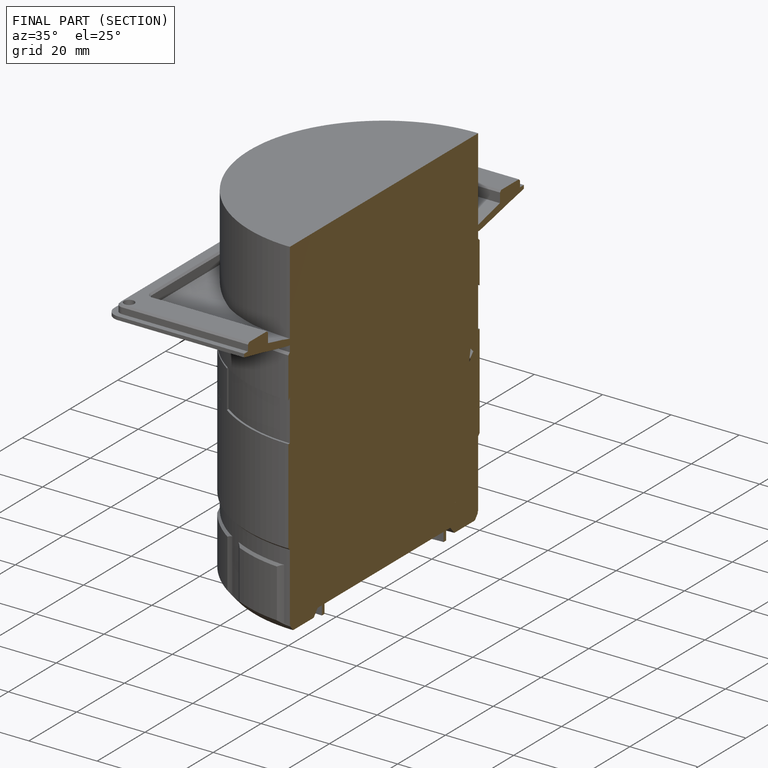
[diagram: finished part — half-section view (interior)]
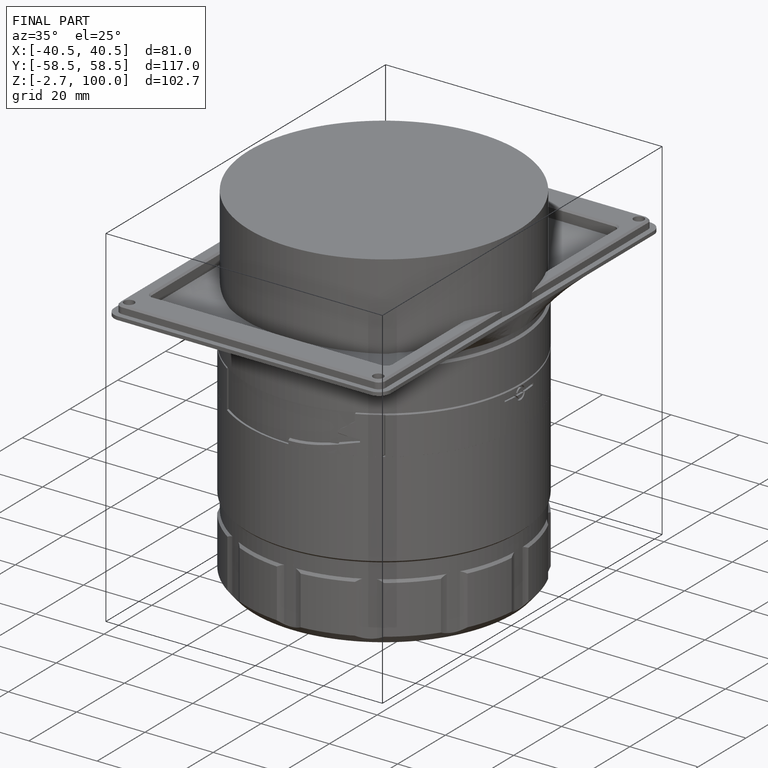
[diagram: finished part — iso view with bounding-box wireframe]
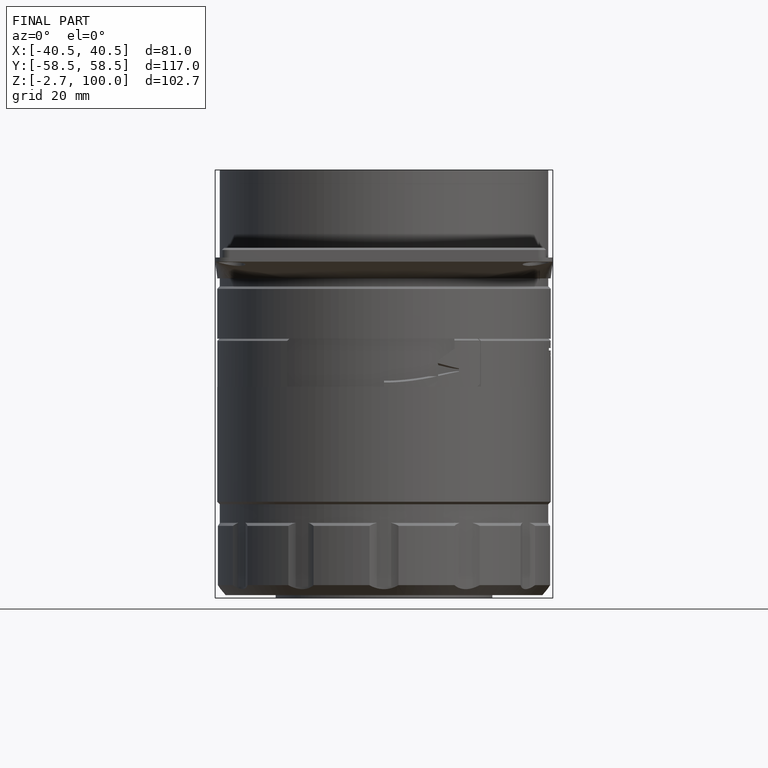
[diagram: finished part — front view with bounding-box wireframe]
